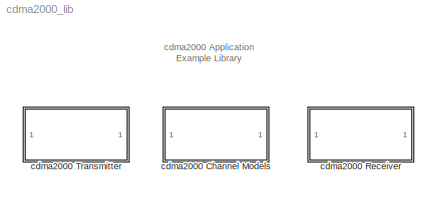
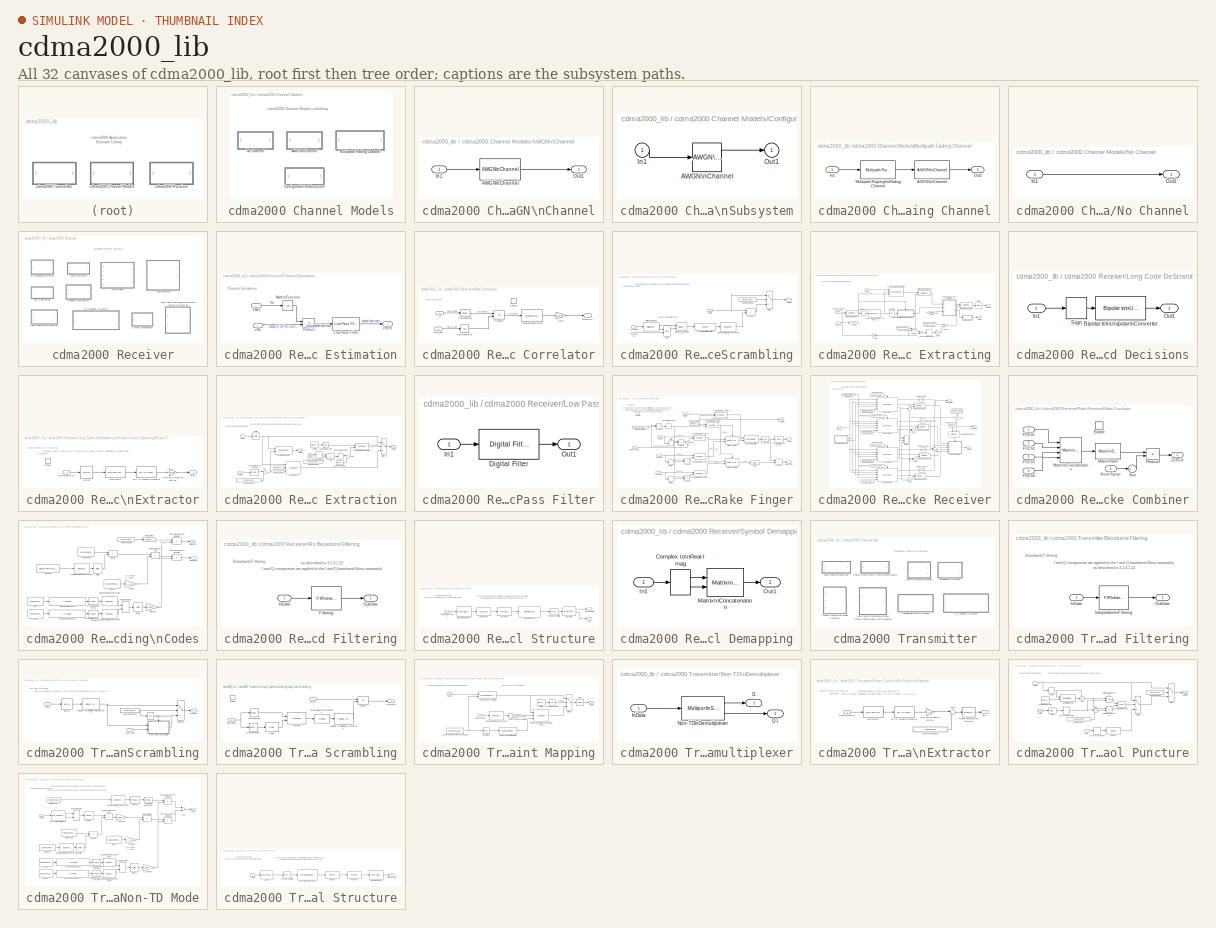
[diagram: thumbnail index - all 32 canvases of the model, root first then tree order]
MODEL cdma2000_lib
KIND library
BLOCK [SubSystem] cdma2000 Channel Models
  MaskDisplay = disp('cdma2000\\nChannel Models')
  MaskIconFrame = on
  MaskIconOpaque = on
  MaskIconRotate = none
  MaskIconUnits = autoscale
  MinAlgLoopOccurrences = off
  Ports = []
  PropExecContextAcrossSSBoundary = on
  RTWSystemCode = Auto
  TreatAsAtomicUnit = off
BLOCK [SubSystem] cdma2000 Channel Models/AWGN\nChannel
  MaskDisplay = disp('AWGN Channel')
  MaskEnableString = on
  MaskIconFrame = on
  MaskIconOpaque = on
  MaskIconRotate = none
  MaskIconUnits = autoscale
  MaskPromptString = Es/No (dB):
  MaskStyleString = edit
  MaskToolTipString = on
  MaskTunableValueString = on
  MaskType = cdma2000 Channel model: AWGN Channel
  MaskValueString = 0
  MaskVariables = EsNodB=@1;
  MaskVisibilityString = on
  MinAlgLoopOccurrences = off
  Ports = [1, 1]
  PropExecContextAcrossSSBoundary = on
  RTWSystemCode = Auto
  TreatAsAtomicUnit = off
BLOCK [Reference] cdma2000 Channel Models/AWGN\nChannel/AWGN\nChannel  REF=commchan2/AWGN\nChannel
  EbNodB = 10
  EsNodB = EsNodB
  Ports = [1, 1]
  Ps = 1
  SNRdB = 10
  SourceBlock = commchan2/AWGN\nChannel
  SourceType = AWGN Channel
  Tsym = 1/1.2288e6
  bitsPerSym = 1
  noiseMode = Signal to noise ratio  (Es/No)
  seed = 67
  variance = 1
BLOCK [Inport] cdma2000 Channel Models/AWGN\nChannel/In1
  IconDisplay = Port number
  LatchInput = off
BLOCK [Outport] cdma2000 Channel Models/AWGN\nChannel/Out1
  BusOutputAsStruct = off
  IconDisplay = Port number
BLOCK [SubSystem] cdma2000 Channel Models/Configurable\nSubsystem
  BlockChoice = AWGN Channel
  MemberBlocks = AWGN Channel,Multipath Fading Channel,No Channel
  MinAlgLoopOccurrences = off
  Ports = [1, 1]
  PropExecContextAcrossSSBoundary = on
  RTWSystemCode = Auto
  TemplateBlock = self
  TreatAsAtomicUnit = off
BLOCK [Reference] cdma2000 Channel Models/Configurable\nSubsystem/AWGN\nChannel  REF=cdma2000_lib/cdma2000 Channel Models/AWGN\nChannel  (lib defined in mdl_ef6182a08372)
  EsNodB = 0
  Ports = [1, 1]
  ShowPortLabels = on
  SourceBlock = cdma2000_lib/cdma2000 Channel Models/AWGN\nChannel
  SourceType = cdma2000 Channel model: AWGN Channel
BLOCK [Inport] cdma2000 Channel Models/Configurable\nSubsystem/In1
  IconDisplay = Port number
  LatchInput = off
BLOCK [Outport] cdma2000 Channel Models/Configurable\nSubsystem/Out1
  BusOutputAsStruct = off
  IconDisplay = Port number
BLOCK [SubSystem] cdma2000 Channel Models/Multipath Fading Channel
  MaskCallbackString = |||
  MaskDisplay = disp('Multipath Fading\\nAWGN')
  MaskEnableString = on,on,on,on
  MaskIconFrame = on
  MaskIconOpaque = on
  MaskIconRotate = none
  MaskIconUnits = autoscale
  MaskPromptString = EcN0 (in dB):|Maximum Doppler Frequency shift (in Hz):|Multipath Profile - Delay Vector (s):|Multipath Profile - Gain Vector (dB):
  MaskStyleString = edit,edit,edit,edit
  MaskTabNameString = ,,,
  MaskToolTipString = on,on,on,on
  MaskTunableValueString = on,on,on,on
  MaskType = cdma2000 Channel model: Multipath Fading Channel
  MaskValueString = 10|486|[0 260e-9 521e-9 781e-9]|[0 -3 -6 -9]
  MaskVarAliasString = ,,,
  MaskVariables = EcN0=@1;dopplerFreq=@2;delayVector=@3;gainVector=@4;
  MaskVisibilityString = on,on,on,on
  MinAlgLoopOccurrences = off
  Ports = [1, 1]
  PropExecContextAcrossSSBoundary = on
  RTWSystemCode = Auto
  TreatAsAtomicUnit = off
BLOCK [Reference] cdma2000 Channel Models/Multipath Fading Channel/AWGN\nChannel  REF=commchan2/AWGN\nChannel
  EbNodB = 10
  EsNodB = EcN0
  Ports = [1, 1]
  Ps = 1
  SNRdB = 10
  SourceBlock = commchan2/AWGN\nChannel
  SourceType = AWGN Channel
  Tsym = 1/1.2288e6
  bitsPerSym = 1
  noiseMode = Signal to noise ratio  (Es/No)
  seed = 67
  variance = 1
BLOCK [Inport] cdma2000 Channel Models/Multipath Fading Channel/In1
  IconDisplay = Port number
  LatchInput = off
BLOCK [Reference] cdma2000 Channel Models/Multipath Fading Channel/Multipath Rayleigh\nFading Channel  REF=commchan2/Multipath Rayleigh\nFading Channel
  Fd = dopplerFreq
  Ports = [1, 1]
  Seed = 73
  SourceBlock = commchan2/Multipath Rayleigh\nFading Channel
  SourceType = Multipath Rayleigh Fading Channel
  delayVec = delayVector
  gainVecdB = gainVector
  normGain = off
  simTs = 1/(1.2288e6*4)
BLOCK [Outport] cdma2000 Channel Models/Multipath Fading Channel/Out1
  BusOutputAsStruct = off
  IconDisplay = Port number
BLOCK [SubSystem] cdma2000 Channel Models/No Channel
  MaskDisplay = disp('No Channel')
  MaskIconFrame = on
  MaskIconOpaque = on
  MaskIconRotate = none
  MaskIconUnits = autoscale
  MaskType = cdma2000 Channel model: No Channel
  MinAlgLoopOccurrences = off
  Ports = [1, 1]
  PropExecContextAcrossSSBoundary = on
  RTWSystemCode = Auto
  TreatAsAtomicUnit = off
BLOCK [Inport] cdma2000 Channel Models/No Channel/In1
  IconDisplay = Port number
  LatchInput = off
BLOCK [Outport] cdma2000 Channel Models/No Channel/Out1
  BusOutputAsStruct = off
  IconDisplay = Port number
BLOCK [SubSystem] cdma2000 Receiver
  MaskDisplay = disp('cdma2000\\nReceiver')
  MaskIconFrame = on
  MaskIconOpaque = on
  MaskIconRotate = none
  MaskIconUnits = autoscale
  MaskSelfModifiable = on
  MinAlgLoopOccurrences = off
  Ports = []
  PropExecContextAcrossSSBoundary = on
  RTWSystemCode = Auto
  TreatAsAtomicUnit = off
BLOCK [SubSystem] cdma2000 Receiver/Channel Estimation
  MaskDescription = Perform Channel Estimation
  MaskEnableString = on
  MaskIconFrame = on
  MaskIconOpaque = on
  MaskIconRotate = none
  MaskIconUnits = autoscale
  MaskPromptString = Number of Filter Taps for Channel Estimation:
  MaskStyleString = edit
  MaskToolTipString = on
  MaskTunableValueString = on
  MaskType = Channel Estimation
  MaskValueString = 21
  MaskVariables = numTapsChEst=@1;
  MaskVisibilityString = on
  MinAlgLoopOccurrences = off
  Ports = [2, 1]
  PropExecContextAcrossSSBoundary = on
  RTWSystemCode = Auto
  TreatAsAtomicUnit = off
BLOCK [Reference] cdma2000 Receiver/Channel Estimation/Low Pass Filter  REF=cdma2000_lib/cdma2000 Receiver/Low Pass Filter  (lib defined in mdl_ef6182a08372)
  N = numTapsChEst-1
  Ports = [1, 1]
  SourceBlock = cdma2000_lib/cdma2000 Receiver/Low Pass Filter
  SourceType = Low Pass Filter
  Wn = 1/4
BLOCK [Math] cdma2000 Receiver/Channel Estimation/Math\nFunction
  Operator = conj
  OutputSignalType = complex
  Ports = [1, 1]
BLOCK [Product] cdma2000 Receiver/Channel Estimation/Product
  Ports = [2, 1]
  RndMeth = Floor
BLOCK [Inport] cdma2000 Receiver/Channel Estimation/cRef
  IconDisplay = Port number
  LatchInput = off
BLOCK [Inport] cdma2000 Receiver/Channel Estimation/cRx
  IconDisplay = Port number
  LatchInput = off
  Port = 2
BLOCK [Outport] cdma2000 Receiver/Channel Estimation/chEst
  BusOutputAsStruct = off
  IconDisplay = Port number
BLOCK [SubSystem] cdma2000 Receiver/Data Correlator
  MaskIconFrame = on
  MaskIconOpaque = on
  MaskIconRotate = none
  MaskIconUnits = autoscale
  MaskType = Data Correlator
  MinAlgLoopOccurrences = off
  Ports = [2, 1, 1]
  PropExecContextAcrossSSBoundary = on
  RTWSystemCode = Auto
  TreatAsAtomicUnit = on
BLOCK [Reference] cdma2000 Receiver/Data Correlator/Downsample  REF=dspsigops/Downsample
  N = overSamp
  Ports = [1, 1]
  SourceBlock = dspsigops/Downsample
  SourceType = Downsample
  fmode = Maintain input frame rate
  ic = 0
  phase = 0
  smode = Force single rate
BLOCK [EnablePort] cdma2000 Receiver/Data Correlator/Enable
  Ports = []
BLOCK [Gain] cdma2000 Receiver/Data Correlator/Gain
  Gain = 1/walshLength
BLOCK [Reference] cdma2000 Receiver/Data Correlator/Integrate\nand Dump  REF=commfilt2/Integrate\nand Dump
  Ports = [1, 1]
  SourceBlock = commfilt2/Integrate\nand Dump
  SourceType = Integrate and dump
  nodump = off
  obssamples = walshLength
  offsetsamples = 0
BLOCK [Math] cdma2000 Receiver/Data Correlator/Math\nFunction
  Operator = conj
  OutputSignalType = complex
  Ports = [1, 1]
BLOCK [Product] cdma2000 Receiver/Data Correlator/Product2
  Inputs = **
  Ports = [2, 1]
  RndMeth = Floor
BLOCK [Inport] cdma2000 Receiver/Data Correlator/cIn
  IconDisplay = Port number
  LatchInput = off
BLOCK [Outport] cdma2000 Receiver/Data Correlator/cOutBits
  BusOutputAsStruct = off
  IconDisplay = Port number
BLOCK [Inport] cdma2000 Receiver/Data Correlator/cPNseq
  IconDisplay = Port number
  LatchInput = off
  Port = 2
BLOCK [SubSystem] cdma2000 Receiver/Long Code DeScrambling\nPower Control Extracting
  MaskCallbackString = ||||||
  MaskDescription = Performs Long Code DeScrambling and Power Control Extraction for Forward Traffic Channel.
  MaskEnableString = off,off,on,on,on,on,on
  MaskHelp = Performs Long Code DeScrambling and Power Control Extraction for Forward Traffic Channel.
  MaskIconFrame = on
  MaskIconOpaque = on
  MaskIconRotate = none
  MaskIconUnits = autoscale
  MaskInitialization = %-- Initialize parameters for Long Code Scrambling, Power Control\n%-- and Signal Point Mapping\nswitch(get_param(gcb,'radConfig'))\n	case 'Radio Configuration 3'\n		Eb_PCCh = 1;\n		numPuncturedSymbols = 4;\n	% other cases\nend	\n\n%-- Transmit Diversity Mode\nswitch(TxDivMode)   \n    case 1, % Non-Transmit Diversity\n        decPattern = [47 46 45 44]+1; \n        scrBitRepetition = 1;    \n    ...<+751ch>
  MaskPromptString = Radio Configuration:|Number of Samples per Frame:|Length of frame in multiples of 20 ms (n):|Long Code Scrambling|Gated Trasmission Rate:|Transmit Diversity Mode:|Public Long Code Mask:
  MaskStyleString = popup(Radio Configuration 3),edit,popup(1|2|4),popup(On|Off),popup(Non Power Control|1|1/2|1/4),popup(Non-TD),edit
  MaskTabNameString = ,,,,,,
  MaskToolTipString = on,on,on,on,on,on,on
  MaskTunableValueString = on,on,on,on,on,on,on
  MaskType = Long Code DeScrambling
  MaskValueString = Radio Configuration 3|768|1|Off|1/4|Non-TD|[1 1 0 0 0 plcm_37]
  MaskVarAliasString = ,,,,,,
  MaskVariables = radConfig=@1;numSamp=@2;nFrameMask=@3;longCScrMask=@4;gateRateMask=@5;TxDivMode=@6;plcMask=@7;
  MaskVisibilityString = on,on,on,on,on,on,on
  MinAlgLoopOccurrences = off
  Ports = [2, 2]
  PropExecContextAcrossSSBoundary = on
  RTWSystemCode = Auto
  TreatAsAtomicUnit = off
BLOCK [Reference] cdma2000 Receiver/Long Code DeScrambling\nPower Control Extracting/Buffer  REF=dspbuff3/Buffer
  N = numSamp
  Ports = [1, 1]
  SourceBlock = dspbuff3/Buffer
  SourceType = Buffer
  V = 0
  ic = 0
BLOCK [Reference] cdma2000 Receiver/Long Code DeScrambling\nPower Control Extracting/DSP\nConstant1  REF=dspsrcs4/DSP\nConstant
  FramebasedOutput = off
  InterpretAs1D = off
  Ports = [0, 1]
  SampleMode = Discrete
  SourceBlock = dspsrcs4/DSP\nConstant
  SourceType = DSP Constant
  Ts = 20e-3/16
  Value = numSamp
  additionalParams = off
  allowOverrides = on
  continuousOutput = Sample-based
  dataType = Inherit from 'Constant value'
  discreteOutput = Sample-based
  fracBitsMode = Best precision
  framePeriod = 20e-3/16
  numFracBits = 15
  sampTime = 20e-3/16
  udDataType = sfix(16)
  wordLen = 16
BLOCK [Reference] cdma2000 Receiver/Long Code DeScrambling\nPower Control Extracting/DSP\nConstant10  REF=dspsrcs4/DSP\nConstant
  FramebasedOutput = off
  InterpretAs1D = off
  Ports = [0, 1]
  SampleMode = Discrete
  SourceBlock = dspsrcs4/DSP\nConstant
  SourceType = DSP Constant
  Ts = 64/1.2288e6
  Value = 1
  additionalParams = off
  allowOverrides = on
  continuousOutput = Sample-based
  dataType = Inherit from 'Constant value'
  discreteOutput = Sample-based
  fracBitsMode = Best precision
  framePeriod = 64/1.2288e6
  numFracBits = 15
  sampTime = 64/1.2288e6
  udDataType = sfix(16)
  wordLen = 16
BLOCK [Reference] cdma2000 Receiver/Long Code DeScrambling\nPower Control Extracting/DSP\nConstant9  REF=dspsrcs4/DSP\nConstant
  FramebasedOutput = off
  InterpretAs1D = off
  Ports = [0, 1]
  SampleMode = Discrete
  SourceBlock = dspsrcs4/DSP\nConstant
  SourceType = DSP Constant
  Ts = 64/1.2288e6
  Value = numSamp/16
  additionalParams = off
  allowOverrides = on
  continuousOutput = Sample-based
  dataType = Inherit from 'Constant value'
  discreteOutput = Sample-based
  fracBitsMode = Best precision
  framePeriod = 64/1.2288e6
  numFracBits = 15
  sampTime = 64/1.2288e6
  udDataType = sfix(16)
  wordLen = 16
BLOCK [Reference] cdma2000 Receiver/Long Code DeScrambling\nPower Control Extracting/Decimator  REF=dspsigops/Downsample
  AttributesFormatString = \\n
  N = 64/2
  Ports = [1, 1]
  SourceBlock = dspsigops/Downsample
  SourceType = Downsample
  fmode = Maintain input frame rate
  ic = 0
  phase = 0
  smode = Allow multirate
BLOCK [Inport] cdma2000 Receiver/Long Code DeScrambling\nPower Control Extracting/EnSignal
  IconDisplay = Port number
  LatchInput = off
BLOCK [From] cdma2000 Receiver/Long Code DeScrambling\nPower Control Extracting/From
  CloseFcn = tagdialog Close
  DialogController = Simulink.DDGSource
  GotoTag = enDelay
BLOCK [Gain] cdma2000 Receiver/Long Code DeScrambling\nPower Control Extracting/Gain
  Gain = 2*scrBitRepetition
BLOCK [Gain] cdma2000 Receiver/Long Code DeScrambling\nPower Control Extracting/Gain1
  Gain = 2
BLOCK [Goto] cdma2000 Receiver/Long Code DeScrambling\nPower Control Extracting/Goto
  DialogController = Simulink.DDGSource
  GotoTag = enDelay
  TagVisibility = local
BLOCK [SubSystem] cdma2000 Receiver/Long Code DeScrambling\nPower Control Extracting/Hard Decisions
  MaskDisplay = disp('Hard\\nDecisions');
  MaskIconFrame = on
  MaskIconOpaque = on
  MaskIconRotate = none
  MaskIconUnits = autoscale
  MinAlgLoopOccurrences = off
  Ports = [1, 1]
  PropExecContextAcrossSSBoundary = on
  RTWSystemCode = Auto
  TreatAsAtomicUnit = off
BLOCK [Reference] cdma2000 Receiver/Long Code DeScrambling\nPower Control Extracting/Hard Decisions/Bipolar to\nUnipolar\nConverter  REF=commutil2/Bipolar to\nUnipolar\nConverter
  M = 2
  Ports = [1, 1]
  SourceBlock = commutil2/Bipolar to\nUnipolar\nConverter
  SourceType = Bipolar to Unipolar Converter
  polarity = Negative
BLOCK [Inport] cdma2000 Receiver/Long Code DeScrambling\nPower Control Extracting/Hard Decisions/In1
  IconDisplay = Port number
  LatchInput = off
BLOCK [Outport] cdma2000 Receiver/Long Code DeScrambling\nPower Control Extracting/Hard Decisions/Out1
  BusOutputAsStruct = off
  IconDisplay = Port number
BLOCK [Signum] cdma2000 Receiver/Long Code DeScrambling\nPower Control Extracting/Hard Decisions/Sign
BLOCK [HitCross] cdma2000 Receiver/Long Code DeScrambling\nPower Control Extracting/Hit \nCrossing
  HitCrossingDirection = rising
  HitCrossingOffset = 0.5
  Ports = [1, 1]
  ZeroCross = off
BLOCK [Inport] cdma2000 Receiver/Long Code DeScrambling\nPower Control Extracting/InData
  IconDisplay = Port number
  LatchInput = off
  Port = 2
BLOCK [Reference] cdma2000 Receiver/Long Code DeScrambling\nPower Control Extracting/Long Code Generator\n1.2288Mcps2  REF=commseqgen2/PN Sequence\nGenerator
  Ports = [1, 1]
  SourceBlock = commseqgen2/PN Sequence\nGenerator
  SourceType = PN Sequence Generator
  Ts = 1/1.2288e6
  frameBased = on
  ini_sta = [1]
  poly = [42 35 33 31 27 26 25 22 21 19 18 17 16 10 7 6 5 3 2 1 0]
  reset = on
  sampPerFrame = 64*scrBitRepetition
  shift = plcMask
BLOCK [Reference] cdma2000 Receiver/Long Code DeScrambling\nPower Control Extracting/Long Code\nDeScrambling  REF=cdma2000_lib/cdma2000 Receiver/Long Code\nDeScrambling  (lib defined in mdl_ef6182a08372)
  DataTypeOverride = UseLocalSettings
  MinMaxOverflowLogging = UseLocalSettings
  Permissions = ReadWrite
  Ports = [3, 1]
  RTWFcnNameOpts = Auto
  RTWFileNameOpts = Auto
  RTWSystemCode = Auto
  ShowPortLabels = on
  SimViewingDevice = off
  SourceBlock = cdma2000_lib/cdma2000 Receiver/Long Code\nDeScrambling
  SourceType = SubSystem
  TreatAsAtomicUnit = off
BLOCK [Outport] cdma2000 Receiver/Long Code DeScrambling\nPower Control Extracting/OutData
  BusOutputAsStruct = off
  IconDisplay = Port number
BLOCK [Outport] cdma2000 Receiver/Long Code DeScrambling\nPower Control Extracting/PCBits
  BusOutputAsStruct = off
  IconDisplay = Port number
  Port = 2
BLOCK [SubSystem] cdma2000 Receiver/Long Code DeScrambling\nPower Control Extracting/Power Control\nBit Position\nExtractor
  MinAlgLoopOccurrences = off
  Ports = [1, 1, 1]
  PropExecContextAcrossSSBoundary = on
  RTWSystemCode = Auto
  TreatAsAtomicUnit = off
BLOCK [Reference] cdma2000 Receiver/Long Code DeScrambling\nPower Control Extracting/Power Control\nBit Position\nExtractor/Bit to Integer\nConverter  REF=commutil2/Bit to Integer\nConverter
  Ports = [1, 1]
  SourceBlock = commutil2/Bit to Integer\nConverter
  SourceType = Bit to Integer Converter
  nbits = length(decPattern)
BLOCK [Outport] cdma2000 Receiver/Long Code DeScrambling\nPower Control Extracting/Power Control\nBit Position\nExtractor/Bits
  BusOutputAsStruct = off
  IconDisplay = Port number
BLOCK [Reference] cdma2000 Receiver/Long Code DeScrambling\nPower Control Extracting/Power Control\nBit Position\nExtractor/Buffer  REF=dspbuff3/Buffer
  AttributesFormatString = \\n
  N = numSymbPCGroup
  Ports = [1, 1]
  SourceBlock = dspbuff3/Buffer
  SourceType = Buffer
  V = 0
  ic = 0
BLOCK [Inport] cdma2000 Receiver/Long Code DeScrambling\nPower Control Extracting/Power Control\nBit Position\nExtractor/Decimated Bits
  IconDisplay = Port number
  LatchInput = off
BLOCK [Reference] cdma2000 Receiver/Long Code DeScrambling\nPower Control Extracting/Power Control\nBit Position\nExtractor/Decimator1  REF=dspindex/Multiport\nSelector
  AttributesFormatString = \\n
  Ports = [1, 1]
  SourceBlock = dspindex/Multiport\nSelector
  SourceType = Multiport Selector
  idxCellArray = {decPattern}
  idxErrMode = Clip Index
  rowsOrCols = Rows
BLOCK [EnablePort] cdma2000 Receiver/Long Code DeScrambling\nPower Control Extracting/Power Control\nBit Position\nExtractor/Enable
  Ports = []
BLOCK [Gain] cdma2000 Receiver/Long Code DeScrambling\nPower Control Extracting/Power Control\nBit Position\nExtractor/Starting Symbol\nPosition
  Gain = 2*scrBitRepetition
BLOCK [SubSystem] cdma2000 Receiver/Long Code DeScrambling\nPower Control Extracting/Power Control\nSymbol Extraction
  MaskIconFrame = on
  MaskIconOpaque = on
  MaskIconRotate = none
  MaskIconUnits = autoscale
  MinAlgLoopOccurrences = off
  Ports = [3, 2]
  PropExecContextAcrossSSBoundary = on
  RTWSystemCode = Auto
  TreatAsAtomicUnit = off
BLOCK [Assignment] cdma2000 Receiver/Long Code DeScrambling\nPower Control Extracting/Power Control\nSymbol Extraction/Assignment
  ElementSrc = External
  Ports = [3, 1]
BLOCK [Reference] cdma2000 Receiver/Long Code DeScrambling\nPower Control Extracting/Power Control\nSymbol Extraction/Buffer  REF=dspbuff3/Buffer
  N = numSamp/16
  Ports = [1, 1]
  SourceBlock = dspbuff3/Buffer
  SourceType = Buffer
  V = 0
  ic = 0
BLOCK [Reference] cdma2000 Receiver/Long Code DeScrambling\nPower Control Extracting/Power Control\nSymbol Extraction/DSP\nConstant1  REF=dspsrcs4/DSP\nConstant
  FramebasedOutput = off
  InterpretAs1D = off
  Ports = [0, 1]
  SampleMode = Discrete
  SourceBlock = dspsrcs4/DSP\nConstant
  SourceType = DSP Constant
  Ts = 20e-3/16
  Value = numSamp/(2*16)
  additionalParams = off
  allowOverrides = on
  continuousOutput = Sample-based
  dataType = Inherit from 'Constant value'
  discreteOutput = Sample-based
  fracBitsMode = Best precision
  framePeriod = 20e-3/16
  numFracBits = 15
  sampTime = 20e-3/16
  udDataType = sfix(16)
  wordLen = 16
BLOCK [Reference] cdma2000 Receiver/Long Code DeScrambling\nPower Control Extracting/Power Control\nSymbol Extraction/DSP\nConstant2  REF=dspsrcs4/DSP\nConstant
  FramebasedOutput = off
  InterpretAs1D = off
  Ports = [0, 1]
  SampleMode = Discrete
  SourceBlock = dspsrcs4/DSP\nConstant
  SourceType = DSP Constant
  Ts = 1.25e-3
  Value = 0
  additionalParams = off
  allowOverrides = on
  continuousOutput = Sample-based
  dataType = Inherit from 'Constant value'
  discreteOutput = Sample-based
  fracBitsMode = Best precision
  framePeriod = 1.25e-3
  numFracBits = 15
  sampTime = 1.25e-3
  udDataType = sfix(16)
  wordLen = 16
BLOCK [Reference] cdma2000 Receiver/Long Code DeScrambling\nPower Control Extracting/Power Control\nSymbol Extraction/DSP\nConstant3  REF=dspsrcs4/DSP\nConstant
  FramebasedOutput = off
  InterpretAs1D = off
  Ports = [0, 1]
  SampleMode = Discrete
  SourceBlock = dspsrcs4/DSP\nConstant
  SourceType = DSP Constant
  Ts = 1.25e-3
  Value = [1:numPuncturedSymbols]
  additionalParams = off
  allowOverrides = on
  continuousOutput = Sample-based
  dataType = Inherit from 'Constant value'
  discreteOutput = Sample-based
  fracBitsMode = Best precision
  framePeriod = 1.25e-3
  numFracBits = 15
  sampTime = 1.25e-3
  udDataType = sfix(16)
  wordLen = 16
BLOCK [Reference] cdma2000 Receiver/Long Code DeScrambling\nPower Control Extracting/Power Control\nSymbol Extraction/DSP\nConstant4  REF=dspsrcs4/DSP\nConstant
  FramebasedOutput = off
  InterpretAs1D = off
  Ports = [0, 1]
  SampleMode = Discrete
  SourceBlock = dspsrcs4/DSP\nConstant
  SourceType = DSP Constant
  Ts = 1.25e-3
  Value = 1
  additionalParams = off
  allowOverrides = on
  continuousOutput = Sample-based
  dataType = Inherit from 'Constant value'
  discreteOutput = Sample-based
  fracBitsMode = Best precision
  framePeriod = 1.25e-3
  numFracBits = 15
  sampTime = 1.25e-3
  udDataType = sfix(16)
  wordLen = 16
BLOCK [Inport] cdma2000 Receiver/Long Code DeScrambling\nPower Control Extracting/Power Control\nSymbol Extraction/EnDelay
  IconDisplay = Port number
  LatchInput = off
  Port = 3
BLOCK [Reference] cdma2000 Receiver/Long Code DeScrambling\nPower Control Extracting/Power Control\nSymbol Extraction/Frame Status\nConversion  REF=dspsigattribs/Frame Status\nConversion
  Ports = [1, 1]
  SourceBlock = dspsigattribs/Frame Status\nConversion
  SourceType = Frame Status Conversion
  growRefPort = off
  outframe = Sample-based
BLOCK [DiscretePulseGenerator] cdma2000 Receiver/Long Code DeScrambling\nPower Control Extracting/Power Control\nSymbol Extraction/Gating
  Amplitude = powerControlOff
  Period = 1/gateRate
  PhaseDelay = PCGroupInit
  Ports = [0, 1]
  SampleTime = 20e-3/16
BLOCK [Inport] cdma2000 Receiver/Long Code DeScrambling\nPower Control Extracting/Power Control\nSymbol Extraction/InData
  IconDisplay = Port number
  LatchInput = off
BLOCK [Logic] cdma2000 Receiver/Long Code DeScrambling\nPower Control Extracting/Power Control\nSymbol Extraction/Logical\nOperator
  AllPortsSameDT = off
  Operator = NOT
  Ports = [1, 1]
BLOCK [Outport] cdma2000 Receiver/Long Code DeScrambling\nPower Control Extracting/Power Control\nSymbol Extraction/OutData
  BusOutputAsStruct = off
  IconDisplay = Port number
BLOCK [Outport] cdma2000 Receiver/Long Code DeScrambling\nPower Control Extracting/Power Control\nSymbol Extraction/PCBits
  BusOutputAsStruct = off
  IconDisplay = Port number
  Port = 2
BLOCK [Inport] cdma2000 Receiver/Long Code DeScrambling\nPower Control Extracting/Power Control\nSymbol Extraction/Position
  IconDisplay = Port number
  LatchInput = off
  Port = 2
BLOCK [Product] cdma2000 Receiver/Long Code DeScrambling\nPower Control Extracting/Power Control\nSymbol Extraction/Product
  InputSameDT = off
  Inputs = */
  Ports = [2, 1]
  RndMeth = Floor
BLOCK [Rounding] cdma2000 Receiver/Long Code DeScrambling\nPower Control Extracting/Power Control\nSymbol Extraction/Rounding\nFunction
  Operator = ceil
BLOCK [Sum] cdma2000 Receiver/Long Code DeScrambling\nPower Control Extracting/Power Control\nSymbol Extraction/Sum
  IconShape = round
  InputSameDT = off
  Inputs = |++
  OutDataTypeMode = Inherit via internal rule
  Ports = [2, 1]
BLOCK [Sum] cdma2000 Receiver/Long Code DeScrambling\nPower Control Extracting/Power Control\nSymbol Extraction/Sum1
  IconShape = round
  InputSameDT = off
  Inputs = |++
  OutDataTypeMode = Inherit via internal rule
  Ports = [2, 1]
BLOCK [Switch] cdma2000 Receiver/Long Code DeScrambling\nPower Control Extracting/Power Control\nSymbol Extraction/Switch1
  Criteria = u2 > Threshold
  InputSameDT = off
  Threshold = 0.5
BLOCK [Reference] cdma2000 Receiver/Long Code DeScrambling\nPower Control Extracting/Power Control\nSymbol Extraction/Variable\nInteger Delay3  REF=dspsigops/Variable\nInteger Delay
  Ports = [2, 1]
  SourceBlock = dspsigops/Variable\nInteger Delay
  SourceType = Variable Integer Delay
  dmax = numSamp+10
  ic = 1
BLOCK [Reference] cdma2000 Receiver/Long Code DeScrambling\nPower Control Extracting/Power Control\nSymbol Extraction/Variable\nSelector  REF=dspindex/Variable\nSelector
  Elements = [1 3]
  IdxMode = Variable
  Ports = [2, 1]
  SourceBlock = dspindex/Variable\nSelector
  SourceType = Variable Selector
  ZerOneIdxMode = One-based
  errmode = Clip Index
  rowsOrCols = Rows
BLOCK [ZeroOrderHold] cdma2000 Receiver/Long Code DeScrambling\nPower Control Extracting/Power Control\nSymbol Extraction/Zero-Order\nHold1
  SampleTime = 20e-3/16
BLOCK [Sum] cdma2000 Receiver/Long Code DeScrambling\nPower Control Extracting/Sum1
  InputSameDT = off
  OutDataTypeMode = Inherit via internal rule
  Ports = [2, 1]
BLOCK [Sum] cdma2000 Receiver/Long Code DeScrambling\nPower Control Extracting/Sum2
  InputSameDT = off
  Inputs = +-
  OutDataTypeMode = Inherit via internal rule
  Ports = [2, 1]
BLOCK [Sum] cdma2000 Receiver/Long Code DeScrambling\nPower Control Extracting/Sum5
  InputSameDT = off
  Inputs = +-
  OutDataTypeMode = Inherit via internal rule
  Ports = [2, 1]
BLOCK [Reference] cdma2000 Receiver/Long Code DeScrambling\nPower Control Extracting/Variable\nInteger Delay1  REF=dspsigops/Variable\nInteger Delay
  Ports = [2, 1]
  SourceBlock = dspsigops/Variable\nInteger Delay
  SourceType = Variable Integer Delay
  dmax = numSamp+10
  ic = 0
BLOCK [Reference] cdma2000 Receiver/Long Code DeScrambling\nPower Control Extracting/Variable\nInteger Delay3  REF=dspsigops/Variable\nInteger Delay
  Ports = [2, 1]
  SourceBlock = dspsigops/Variable\nInteger Delay
  SourceType = Variable Integer Delay
  dmax = numSamp+10
  ic = 0
BLOCK [Reference] cdma2000 Receiver/Long Code DeScrambling\nPower Control Extracting/Variable\nInteger Delay4  REF=dspsigops/Variable\nInteger Delay
  Ports = [2, 1]
  SourceBlock = dspsigops/Variable\nInteger Delay
  SourceType = Variable Integer Delay
  dmax = 100
  ic = 0
BLOCK [ZeroOrderHold] cdma2000 Receiver/Long Code DeScrambling\nPower Control Extracting/Zero-Order\nHold1
  SampleTime = 20e-3/16
BLOCK [SubSystem] cdma2000 Receiver/Long Code\nDeScrambling
  MinAlgLoopOccurrences = off
  Ports = [3, 1]
  PropExecContextAcrossSSBoundary = on
  RTWSystemCode = Auto
  TreatAsAtomicUnit = off
BLOCK [Reference] cdma2000 Receiver/Long Code\nDeScrambling/DSP\nConstant1  REF=dspsrcs4/DSP\nConstant
  AttributesFormatString = <path>
  FramebasedOutput = off
  InterpretAs1D = off
  Ports = [0, 1]
  SampleMode = Discrete
  ShowPortLabels = on
  SourceBlock = dspsrcs4/DSP\nConstant
  SourceType = DSP Constant
  Ts = symbolTime*scrBitRepetition
  Value = longCodeScrOff
  additionalParams = off
  allowOverrides = on
  continuousOutput = Sample-based
  dataType = Inherit from 'Constant value'
  discreteOutput = Sample-based
  fracBitsMode = Best precision
  framePeriod = symbolTime*scrBitRepetition
  numFracBits = 15
  sampTime = symbolTime*scrBitRepetition
  udDataType = sfix(16)
  wordLen = 16
BLOCK [Reference] cdma2000 Receiver/Long Code\nDeScrambling/Delay  REF=dspsigops/Delay
  Ports = [2, 1]
  SourceBlock = dspsigops/Delay
  SourceType = Delay
  delay = 1
  dif_ic_for_ch = off
  dif_ic_for_dly = off
  dly_unit = Samples
  ic = 0
  ic_detail = on
  reset_popup = Rising edge
BLOCK [Inport] cdma2000 Receiver/Long Code\nDeScrambling/En
  IconDisplay = Port number
  LatchInput = off
  Port = 3
BLOCK [Inport] cdma2000 Receiver/Long Code\nDeScrambling/InData
  IconDisplay = Port number
  LatchInput = off
BLOCK [Inport] cdma2000 Receiver/Long Code\nDeScrambling/Long Code
  IconDisplay = Port number
  LatchInput = off
  Port = 2
BLOCK [Reference] cdma2000 Receiver/Long Code\nDeScrambling/Matrix\nConcatenation  REF=simulink/Math\nOperations/Matrix\nConcatenation
  Ports = [2, 1]
  SourceBlock = simulink/Math\nOperations/Matrix\nConcatenation
  SourceType = Matrix Concatenation
  catMethod = Vertical
  numInports = 2
BLOCK [Reference] cdma2000 Receiver/Long Code\nDeScrambling/Multiport\nSelector  REF=dspindex/Multiport\nSelector
  AttributesFormatString = \\n
  Ports = [1, 4]
  SourceBlock = dspindex/Multiport\nSelector
  SourceType = Multiport Selector
  idxCellArray = { 1,64*scrBitRepetition}
  idxErrMode = Clip Index
  rowsOrCols = Rows
BLOCK [Outport] cdma2000 Receiver/Long Code\nDeScrambling/OutData
  BusOutputAsStruct = off
  IconDisplay = Port number
BLOCK [Product] cdma2000 Receiver/Long Code\nDeScrambling/Product
  InputSameDT = off
  Ports = [2, 1]
  RndMeth = Floor
BLOCK [Reference] cdma2000 Receiver/Long Code\nDeScrambling/Scrambling Bit\nRepetition  REF=dspsigops/Repeat
  N = scrBitRepetition
  Ports = [1, 1]
  SourceBlock = dspsigops/Repeat
  SourceType = Repeat
  ic = 0
  mode = Maintain input frame rate
BLOCK [Switch] cdma2000 Receiver/Long Code\nDeScrambling/Switch1
  Criteria = u2 > Threshold
  InputSameDT = off
  Threshold = 0.5
BLOCK [Reference] cdma2000 Receiver/Long Code\nDeScrambling/Unipolar to\nBipolar\nConverter1  REF=commutil2/Unipolar to\nBipolar\nConverter
  M = 2
  Ports = [1, 1]
  ShowPortLabels = on
  SourceBlock = commutil2/Unipolar to\nBipolar\nConverter
  SourceType = Unipolar to Bipolar Converter
  polarity = Negative
BLOCK [SubSystem] cdma2000 Receiver/Low Pass Filter
  MaskCallbackString = |
  MaskDisplay = plot( 1:prod( size( h)), h);
  MaskEnableString = on,on
  MaskIconFrame = on
  MaskIconOpaque = on
  MaskIconRotate = none
  MaskIconUnits = autoscale
  MaskInitialization = h=fir1(N,Wn,kaiser(N+1,4))';
  MaskPromptString = Order of the Filter:|Cut-off Frequency:
  MaskStyleString = edit,edit
  MaskTabNameString = ,
  MaskToolTipString = on,on
  MaskTunableValueString = on,on
  MaskType = Low Pass Filter
  MaskValueString = 21|1/4
  MaskVarAliasString = ,
  MaskVariables = N=@1;Wn=@2;
  MaskVisibilityString = on,on
  MinAlgLoopOccurrences = off
  Ports = [1, 1]
  PropExecContextAcrossSSBoundary = on
  RTWSystemCode = Auto
  TreatAsAtomicUnit = off
BLOCK [Reference] cdma2000 Receiver/Low Pass Filter/Digital Filter  REF=dsparch4/Digital Filter
  AllPoleFiltStruct = Direct form
  BiQuadCoeffs = [1 0.3 0.4 1 0.1 0.2]
  CoeffSource = Specify via dialog
  DenCoeffs = [1 0.1]
  FIRFiltStruct = Direct form
  FiltPerSampPopup = One filter per frame
  IC = 0
  ICden = 0
  ICnum = 0
  IIRFiltStruct = Direct form II transposed
  LatticeCoeffs = [0.2 0.4]
  NumCoeffs = h
  Ports = [1, 1]
  SourceBlock = dsparch4/Digital Filter
  SourceType = Digital Filter
  TypePopup = FIR (all zeros)
  accumFracLength = 30
  accumMode = Same as product output
  accumWordLength = 32
  additionalParams = off
  allowOverrides = on
  denIgnore = on
  firstCoeffFracLength = 15
  firstCoeffMode = Same as input
  firstCoeffWordLength = 16
  memoryFracLength = 15
  memoryMode = Same as input
  memoryWordLength = 16
  outputFracLength = 15
  outputMode = Same as input
  outputWordLength = 16
  overflowMode = off
  prodOutputFracLength = 30
  prodOutputMode = Same as input
  prodOutputWordLength = 32
  roundingMode = Floor
  secondCoeffFracLength = 15
  secondCoeffMode = Same as numerator
  secondCoeffWordLength = 16
  showAcc = off
  showCoeff = off
  showMem = off
  showMpy = off
  showOut = off
  thirdCoeffFracLength = 15
  thirdCoeffMode = Same as input
  thirdCoeffWordLength = 16
BLOCK [Inport] cdma2000 Receiver/Low Pass Filter/In1
  IconDisplay = Port number
  LatchInput = off
BLOCK [Outport] cdma2000 Receiver/Low Pass Filter/Out1
  BusOutputAsStruct = off
  IconDisplay = Port number
BLOCK [SubSystem] cdma2000 Receiver/Rake Finger
  MaskCallbackString = ||
  MaskDescription = Each finger downsamples and decorrelates pilot bits and data using the corresponding sequence.
  MaskEnableString = off,off,off
  MaskHelp = Each finger downsamples and decorrelates pilot bits and data using the corresponding sequence.
  MaskIconFrame = on
  MaskIconOpaque = on
  MaskIconRotate = none
  MaskIconUnits = autoscale
  MaskInitialization = % Setting Sampling Time\nst = walshLength/chipRate;
  MaskPromptString = Forward Traffic Channel Walsh Length:|Oversampling Factor|Chip Rate
  MaskStyleString = edit,edit,edit
  MaskTabNameString = ,,
  MaskToolTipString = on,on,on
  MaskTunableValueString = on,on,on
  MaskType = Rake Finger
  MaskValueString = 64|4|1.2288e6
  MaskVarAliasString = ,,
  MaskVariables = walshLength=@1;overSamp=@2;chipRate=@3;
  MaskVisibilityString = on,on,on
  MinAlgLoopOccurrences = off
  Ports = [5, 3, 1]
  PropExecContextAcrossSSBoundary = on
  RTWSystemCode = Auto
  TreatAsAtomicUnit = on
BLOCK [Reference] cdma2000 Receiver/Rake Finger/Channel Estimation  REF=cdma2000_lib/cdma2000 Receiver/Channel Estimation  (lib defined in mdl_ef6182a08372)
  Ports = [2, 1]
  ShowPortLabels = on
  SourceBlock = cdma2000_lib/cdma2000 Receiver/Channel Estimation
  SourceType = Channel Estimation
  numTapsChEst = numTapsChEst
BLOCK [Reference] cdma2000 Receiver/Rake Finger/DSP\nConstant1  REF=dspsrcs4/DSP\nConstant
  FramebasedOutput = off
  InterpretAs1D = off
  Ports = [0, 1]
  SampleMode = Discrete
  ShowPortLabels = on
  SourceBlock = dspsrcs4/DSP\nConstant
  SourceType = DSP Constant
  Ts = st
  Value = 1
  additionalParams = off
  allowOverrides = on
  continuousOutput = Sample-based
  dataType = Inherit from 'Constant value'
  discreteOutput = Sample-based
  fracBitsMode = Best precision
  framePeriod = st
  numFracBits = 15
  sampTime = st
  udDataType = sfix(16)
  wordLen = 16
BLOCK [Reference] cdma2000 Receiver/Rake Finger/DSP\nConstant2  REF=dspsrcs4/DSP\nConstant
  FramebasedOutput = off
  InterpretAs1D = off
  Ports = [0, 1]
  SampleMode = Discrete
  ShowPortLabels = on
  SourceBlock = dspsrcs4/DSP\nConstant
  SourceType = DSP Constant
  Ts = st
  Value = overSampling*walshLength
  additionalParams = off
  allowOverrides = on
  continuousOutput = Sample-based
  dataType = Inherit from 'Constant value'
  discreteOutput = Sample-based
  fracBitsMode = Best precision
  framePeriod = st
  numFracBits = 15
  sampTime = st
  udDataType = sfix(16)
  wordLen = 16
BLOCK [Reference] cdma2000 Receiver/Rake Finger/Data Correlator  REF=cdma2000_lib/cdma2000 Receiver/Data Correlator  (lib defined in mdl_ef6182a08372)
  Ports = [2, 1, 1]
  ShowPortLabels = on
  SourceBlock = cdma2000_lib/cdma2000 Receiver/Data Correlator
  SourceType = Data Correlator
BLOCK [Reference] cdma2000 Receiver/Rake Finger/Delay  REF=dspsigops/Delay
  Ports = [1, 1]
  SourceBlock = dspsigops/Delay
  SourceType = Delay
  delay = ((numTapsChEst-1)/2)
  dif_ic_for_ch = off
  dif_ic_for_dly = off
  dly_unit = Samples
  ic = 0
  ic_detail = off
  reset_popup = None
BLOCK [EnablePort] cdma2000 Receiver/Rake Finger/Enable
  Ports = []
BLOCK [Inport] cdma2000 Receiver/Rake Finger/Fng Ph (Chips)
  IconDisplay = Port number
  LatchInput = off
  Port = 5
BLOCK [Reference] cdma2000 Receiver/Rake Finger/Frame Status\nConversion  REF=dspsigattribs/Frame Status\nConversion
  Ports = [1, 1]
  ShowPortLabels = off
  SourceBlock = dspsigattribs/Frame Status\nConversion
  SourceType = Frame Status Conversion
  growRefPort = off
  outframe = Frame-based
BLOCK [Reference] cdma2000 Receiver/Rake Finger/Pilot Correlator  REF=cdma2000_lib/cdma2000 Receiver/Data Correlator  (lib defined in mdl_ef6182a08372)
  Ports = [2, 1, 1]
  ShowPortLabels = on
  SourceBlock = cdma2000_lib/cdma2000 Receiver/Data Correlator
  SourceType = Data Correlator
BLOCK [Inport] cdma2000 Receiver/Rake Finger/PilotRef
  IconDisplay = Port number
  LatchInput = off
  Port = 4
BLOCK [Product] cdma2000 Receiver/Rake Finger/Product
  Ports = [2, 1]
  RndMeth = Floor
BLOCK [Product] cdma2000 Receiver/Rake Finger/Product1
  Ports = [2, 1]
  RndMeth = Floor
BLOCK [Product] cdma2000 Receiver/Rake Finger/Product2
  Ports = [2, 1]
  RndMeth = Floor
BLOCK [Product] cdma2000 Receiver/Rake Finger/Product3
  Ports = [2, 1]
  RndMeth = Floor
BLOCK [Product] cdma2000 Receiver/Rake Finger/Product4
  Inputs = */
  Ports = [2, 1]
  RndMeth = Floor
BLOCK [Rounding] cdma2000 Receiver/Rake Finger/Rounding\nFunction
  Operator = ceil
BLOCK [Sum] cdma2000 Receiver/Rake Finger/Sum
  IconShape = round
  Inputs = |+-
  Ports = [2, 1]
BLOCK [Reference] cdma2000 Receiver/Rake Finger/Transpose  REF=dspmtrx3/Transpose
  Hermitian = on
  Ports = [1, 1]
  SourceBlock = dspmtrx3/Transpose
  SourceType = Transpose
  overflowFlag = on
BLOCK [Reference] cdma2000 Receiver/Rake Finger/Variable\nInteger Delay  REF=dspsigops/Variable\nInteger Delay
  Ports = [2, 1]
  SourceBlock = dspsigops/Variable\nInteger Delay
  SourceType = Variable Integer Delay
  dmax = 100
  ic = 0
BLOCK [Reference] cdma2000 Receiver/Rake Finger/Variable\nInteger Delay1  REF=dspsigops/Variable\nInteger Delay
  Ports = [2, 1]
  SourceBlock = dspsigops/Variable\nInteger Delay
  SourceType = Variable Integer Delay
  dmax = 20*walshLength*overSampling
  ic = 0
BLOCK [Reference] cdma2000 Receiver/Rake Finger/Variable\nInteger Delay2  REF=dspsigops/Variable\nInteger Delay
  Ports = [2, 1]
  SourceBlock = dspsigops/Variable\nInteger Delay
  SourceType = Variable Integer Delay
  dmax = 20*walshLength*overSampling
  ic = 0
BLOCK [Reference] cdma2000 Receiver/Rake Finger/Variable\nInteger Delay3  REF=dspsigops/Variable\nInteger Delay
  Ports = [2, 1]
  SourceBlock = dspsigops/Variable\nInteger Delay
  SourceType = Variable Integer Delay
  dmax = 20*walshLength*overSampling
  ic = 0
BLOCK [Reference] cdma2000 Receiver/Rake Finger/Variable\nInteger Delay4  REF=dspsigops/Variable\nInteger Delay
  Ports = [2, 1]
  SourceBlock = dspsigops/Variable\nInteger Delay
  SourceType = Variable Integer Delay
  dmax = 20
  ic = 0
BLOCK [Width] cdma2000 Receiver/Rake Finger/Width
BLOCK [Width] cdma2000 Receiver/Rake Finger/Width1
BLOCK [Width] cdma2000 Receiver/Rake Finger/Width2
BLOCK [Outport] cdma2000 Receiver/Rake Finger/cData_Out
  BusOutputAsStruct = off
  IconDisplay = Port number
  Port = 2
BLOCK [Inport] cdma2000 Receiver/Rake Finger/cInData
  IconDisplay = Port number
  LatchInput = off
BLOCK [Inport] cdma2000 Receiver/Rake Finger/cPN_Data
  IconDisplay = Port number
  LatchInput = off
  Port = 3
BLOCK [Inport] cdma2000 Receiver/Rake Finger/cPN_Pilot
  IconDisplay = Port number
  LatchInput = off
  Port = 2
BLOCK [Outport] cdma2000 Receiver/Rake Finger/cchEst
  BusOutputAsStruct = off
  IconDisplay = Port number
BLOCK [Outport] cdma2000 Receiver/Rake Finger/symDelay
  BusOutputAsStruct = off
  IconDisplay = Port number
  Port = 3
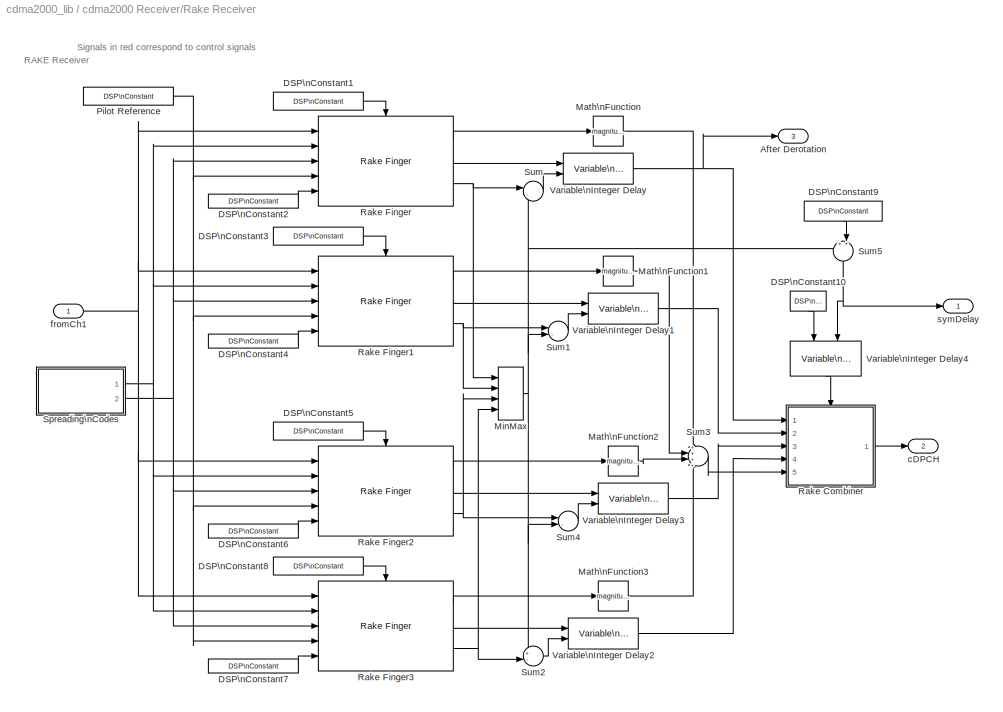
BLOCK [SubSystem] cdma2000 Receiver/Rake Receiver
  MaskCallbackString = ||||||||
  MaskDescription = Rake receiver is made of 4 different fingers. Each finger downsamples and decorrelates pilot bits and data using the corresponding sequence. \n\nPilot bits are then sent to the channel estimator whose output is then used to derotate the received data signal. The demodulated data processed by each rake finger is finally coherently combined.
  MaskEnableString = on,on,on,on,on,off,off,on,on
  MaskHelp = <p>Rake receiver is made of 4 different fingers. Each finger downsamples and decorrelates pilot bits and data using the corresponding sequence. </p>\n\n<p>Pilot bits are then sent to the channel estimator whose output is then used to derotate the received data signal. The demodulated data processed by each rake finger is finally coherently combined.</p>
  MaskIconFrame = on
  MaskIconOpaque = on
  MaskIconRotate = none
  MaskIconUnits = autoscale
  MaskInitialization = %-- Sampling Time (corresponds to SF=64)\nst =  walshLength/1.2288e6;\n\n% Setting Parameters\nnumTapsRRC = numTapsRRC - (mod(numTapsRRC,2));\nrxTicksDelay = numTapsRRC + fingerPhases;\n\n%-- Quasi-orthogonal Function mask\nqof_sign(1,:) = zeros(1,256);\nqof_sign(2,:) = reshape(de2bi([hex2dec(['7228d7724eebebb1eb4eb1ebd78d8d28278282d81b41be1b411b1bbe7dd8277d']')'],'right-msb')',1,256);\nqof_sign(3...<+317ch>
  MaskPromptString = Forward Traffic Channel Walsh Length:|Forward Traffic Channel spreading code index:|PN Sequence Offset (0..512):|Quasi-orthogonal function index for F-DTCH:|Number of Filter Taps for Channel Estimation:|Number of Filter Taps for RRC filters:|Oversampling Factor:|Finger Enables:|Finger Phases (in units of Ticks):
  MaskSelfModifiable = on
  MaskStyleString = edit,edit,edit,popup(0|1|2|3),edit,edit,edit,edit,edit
  MaskTabNameString = ,,,,,,,,
  MaskToolTipString = on,on,on,on,on,on,on,on,on
  MaskTunableValueString = on,on,on,on,on,on,on,on,on
  MaskType = Rake Receiver
  MaskValueString = 64|63|0|0|11|48|4|[1 0 0 0]|[0 0 0 0]
  MaskVarAliasString = ,,,,,,,,
  MaskVariables = walshLength=@1;trChCode=@2;pnOffset=@3;qof_idx=@4;numTapsChEst=@5;numTapsRRC=@6;overSampling=@7;fingerEnables=@8;fingerPhases=@9;
  MaskVisibilityString = on,on,on,on,on,on,on,on,on
  MinAlgLoopOccurrences = off
  Ports = [1, 3]
  PropExecContextAcrossSSBoundary = on
  RTWSystemCode = Auto
  TreatAsAtomicUnit = off
BLOCK [Outport] cdma2000 Receiver/Rake Receiver/After Derotation
  BusOutputAsStruct = off
  IconDisplay = Port number
  Port = 3
BLOCK [Reference] cdma2000 Receiver/Rake Receiver/DSP\nConstant1  REF=dspsrcs4/DSP\nConstant
  FramebasedOutput = off
  InterpretAs1D = off
  Ports = [0, 1]
  SampleMode = Discrete
  ShowPortLabels = on
  SourceBlock = dspsrcs4/DSP\nConstant
  SourceType = DSP Constant
  Ts = st
  Value = fingerEnables(1)
  additionalParams = off
  allowOverrides = on
  continuousOutput = Sample-based
  dataType = Inherit from 'Constant value'
  discreteOutput = Sample-based
  fracBitsMode = Best precision
  framePeriod = st
  numFracBits = 15
  sampTime = st
  udDataType = sfix(16)
  wordLen = 16
BLOCK [Reference] cdma2000 Receiver/Rake Receiver/DSP\nConstant10  REF=dspsrcs4/DSP\nConstant
  FramebasedOutput = off
  InterpretAs1D = off
  Ports = [0, 1]
  SampleMode = Discrete
  ShowPortLabels = on
  SourceBlock = dspsrcs4/DSP\nConstant
  SourceType = DSP Constant
  Ts = st
  Value = 1
  additionalParams = off
  allowOverrides = on
  continuousOutput = Sample-based
  dataType = Inherit from 'Constant value'
  discreteOutput = Sample-based
  fracBitsMode = Best precision
  framePeriod = st
  numFracBits = 15
  sampTime = st
  udDataType = sfix(16)
  wordLen = 16
BLOCK [Reference] cdma2000 Receiver/Rake Receiver/DSP\nConstant2  REF=dspsrcs4/DSP\nConstant
  FramebasedOutput = off
  InterpretAs1D = off
  Ports = [0, 1]
  SampleMode = Discrete
  ShowPortLabels = on
  SourceBlock = dspsrcs4/DSP\nConstant
  SourceType = DSP Constant
  Ts = st
  Value = rxTicksDelay(1)
  additionalParams = off
  allowOverrides = on
  continuousOutput = Sample-based
  dataType = Inherit from 'Constant value'
  discreteOutput = Sample-based
  fracBitsMode = Best precision
  framePeriod = st
  numFracBits = 15
  sampTime = st
  udDataType = sfix(16)
  wordLen = 16
BLOCK [Reference] cdma2000 Receiver/Rake Receiver/DSP\nConstant3  REF=dspsrcs4/DSP\nConstant
  FramebasedOutput = off
  InterpretAs1D = off
  Ports = [0, 1]
  SampleMode = Discrete
  ShowPortLabels = on
  SourceBlock = dspsrcs4/DSP\nConstant
  SourceType = DSP Constant
  Ts = st
  Value = fingerEnables(2)
  additionalParams = off
  allowOverrides = on
  continuousOutput = Sample-based
  dataType = Inherit from 'Constant value'
  discreteOutput = Sample-based
  fracBitsMode = Best precision
  framePeriod = st
  numFracBits = 15
  sampTime = st
  udDataType = sfix(16)
  wordLen = 16
BLOCK [Reference] cdma2000 Receiver/Rake Receiver/DSP\nConstant4  REF=dspsrcs4/DSP\nConstant
  FramebasedOutput = off
  InterpretAs1D = off
  Ports = [0, 1]
  SampleMode = Discrete
  ShowPortLabels = on
  SourceBlock = dspsrcs4/DSP\nConstant
  SourceType = DSP Constant
  Ts = st
  Value = rxTicksDelay(2)
  additionalParams = off
  allowOverrides = on
  continuousOutput = Sample-based
  dataType = Inherit from 'Constant value'
  discreteOutput = Sample-based
  fracBitsMode = Best precision
  framePeriod = st
  numFracBits = 15
  sampTime = st
  udDataType = sfix(16)
  wordLen = 16
BLOCK [Reference] cdma2000 Receiver/Rake Receiver/DSP\nConstant5  REF=dspsrcs4/DSP\nConstant
  FramebasedOutput = off
  InterpretAs1D = off
  Ports = [0, 1]
  SampleMode = Discrete
  ShowPortLabels = on
  SourceBlock = dspsrcs4/DSP\nConstant
  SourceType = DSP Constant
  Ts = st
  Value = fingerEnables(3)
  additionalParams = off
  allowOverrides = on
  continuousOutput = Sample-based
  dataType = Inherit from 'Constant value'
  discreteOutput = Sample-based
  fracBitsMode = Best precision
  framePeriod = st
  numFracBits = 15
  sampTime = st
  udDataType = sfix(16)
  wordLen = 16
BLOCK [Reference] cdma2000 Receiver/Rake Receiver/DSP\nConstant6  REF=dspsrcs4/DSP\nConstant
  FramebasedOutput = off
  InterpretAs1D = off
  Ports = [0, 1]
  SampleMode = Discrete
  ShowPortLabels = on
  SourceBlock = dspsrcs4/DSP\nConstant
  SourceType = DSP Constant
  Ts = st
  Value = rxTicksDelay(3)
  additionalParams = off
  allowOverrides = on
  continuousOutput = Sample-based
  dataType = Inherit from 'Constant value'
  discreteOutput = Sample-based
  fracBitsMode = Best precision
  framePeriod = st
  numFracBits = 15
  sampTime = st
  udDataType = sfix(16)
  wordLen = 16
BLOCK [Reference] cdma2000 Receiver/Rake Receiver/DSP\nConstant7  REF=dspsrcs4/DSP\nConstant
  FramebasedOutput = off
  InterpretAs1D = off
  Ports = [0, 1]
  SampleMode = Discrete
  ShowPortLabels = on
  SourceBlock = dspsrcs4/DSP\nConstant
  SourceType = DSP Constant
  Ts = st
  Value = rxTicksDelay(4)
  additionalParams = off
  allowOverrides = on
  continuousOutput = Sample-based
  dataType = Inherit from 'Constant value'
  discreteOutput = Sample-based
  fracBitsMode = Best precision
  framePeriod = st
  numFracBits = 15
  sampTime = st
  udDataType = sfix(16)
  wordLen = 16
BLOCK [Reference] cdma2000 Receiver/Rake Receiver/DSP\nConstant8  REF=dspsrcs4/DSP\nConstant
  FramebasedOutput = off
  InterpretAs1D = off
  Ports = [0, 1]
  SampleMode = Discrete
  ShowPortLabels = on
  SourceBlock = dspsrcs4/DSP\nConstant
  SourceType = DSP Constant
  Ts = st
  Value = fingerEnables(4)
  additionalParams = off
  allowOverrides = on
  continuousOutput = Sample-based
  dataType = Inherit from 'Constant value'
  discreteOutput = Sample-based
  fracBitsMode = Best precision
  framePeriod = st
  numFracBits = 15
  sampTime = st
  udDataType = sfix(16)
  wordLen = 16
BLOCK [Reference] cdma2000 Receiver/Rake Receiver/DSP\nConstant9  REF=dspsrcs4/DSP\nConstant
  FramebasedOutput = off
  InterpretAs1D = off
  Ports = [0, 1]
  SampleMode = Discrete
  ShowPortLabels = on
  SourceBlock = dspsrcs4/DSP\nConstant
  SourceType = DSP Constant
  Ts = st
  Value = ((numTapsChEst-1)/2)
  additionalParams = off
  allowOverrides = on
  continuousOutput = Sample-based
  dataType = Inherit from 'Constant value'
  discreteOutput = Sample-based
  fracBitsMode = Best precision
  framePeriod = st
  numFracBits = 15
  sampTime = st
  udDataType = sfix(16)
  wordLen = 16
BLOCK [Math] cdma2000 Receiver/Rake Receiver/Math\nFunction
  Operator = magnitude^2
  Ports = [1, 1]
BLOCK [Math] cdma2000 Receiver/Rake Receiver/Math\nFunction1
  Operator = magnitude^2
  Ports = [1, 1]
BLOCK [Math] cdma2000 Receiver/Rake Receiver/Math\nFunction2
  Operator = magnitude^2
  Ports = [1, 1]
BLOCK [Math] cdma2000 Receiver/Rake Receiver/Math\nFunction3
  Operator = magnitude^2
  Ports = [1, 1]
BLOCK [MinMax] cdma2000 Receiver/Rake Receiver/MinMax
  Function = max
  Inputs = 4
  Ports = [4, 1]
BLOCK [Reference] cdma2000 Receiver/Rake Receiver/Pilot Reference  REF=dspsrcs4/DSP\nConstant
  FramebasedOutput = on
  InterpretAs1D = off
  Ports = [0, 1]
  SampleMode = Discrete
  ShowPortLabels = on
  SourceBlock = dspsrcs4/DSP\nConstant
  SourceType = DSP Constant
  Ts = 64/1.2288e6
  Value = 1
  additionalParams = off
  allowOverrides = on
  continuousOutput = Sample-based
  dataType = Inherit from 'Constant value'
  discreteOutput = Frame-based
  fracBitsMode = Best precision
  framePeriod = 64/1.2288e6
  numFracBits = 15
  sampTime = 64/1.2288e6
  udDataType = sfix(16)
  wordLen = 16
BLOCK [SubSystem] cdma2000 Receiver/Rake Receiver/Rake Combiner
  MaskDescription = Performs Rake combjner by averaging the output of enabled Rake Fingers blocks.
  MaskIconFrame = on
  MaskIconOpaque = on
  MaskIconRotate = none
  MaskIconUnits = autoscale
  MaskType = Rake Combiner
  MinAlgLoopOccurrences = off
  Ports = [5, 1, 1]
  PropExecContextAcrossSSBoundary = on
  RTWSystemCode = Auto
  TreatAsAtomicUnit = on
BLOCK [EnablePort] cdma2000 Receiver/Rake Receiver/Rake Combiner/Enable
  Ports = []
BLOCK [Inport] cdma2000 Receiver/Rake Receiver/Rake Combiner/FTrCh1
  IconDisplay = Port number
  LatchInput = off
BLOCK [Inport] cdma2000 Receiver/Rake Receiver/Rake Combiner/FTrCh2
  IconDisplay = Port number
  LatchInput = off
  Port = 2
BLOCK [Inport] cdma2000 Receiver/Rake Receiver/Rake Combiner/FTrCh3
  IconDisplay = Port number
  LatchInput = off
  Port = 3
BLOCK [Inport] cdma2000 Receiver/Rake Receiver/Rake Combiner/FTrCh4
  IconDisplay = Port number
  LatchInput = off
  Port = 4
BLOCK [Reference] cdma2000 Receiver/Rake Receiver/Rake Combiner/Matrix\nConcatenation  REF=simulink/Math\nOperations/Matrix\nConcatenation
  Ports = [4, 1]
  SourceBlock = simulink/Math\nOperations/Matrix\nConcatenation
  SourceType = Matrix Concatenation
  catMethod = Horizontal
  numInports = 4
BLOCK [Reference] cdma2000 Receiver/Rake Receiver/Rake Combiner/Matrix\nSum  REF=dspmtrx3/Matrix\nSum
  Dim = Rows
  Ports = [1, 1]
  SourceBlock = dspmtrx3/Matrix\nSum
  SourceType = Matrix Sum
  accumFracLength = 30
  accumMode = Inherit via internal rule
  accumWordLength = 32
  additionalParams = off
  allowOverrides = on
  outputFracLength = 15
  outputMode = Same as input
  outputWordLength = 16
  overflowMode = off
  roundingMode = Floor
BLOCK [Inport] cdma2000 Receiver/Rake Receiver/Rake Combiner/Norm Factor
  IconDisplay = Port number
  LatchInput = off
  Port = 5
BLOCK [Product] cdma2000 Receiver/Rake Receiver/Rake Combiner/Product3
  Inputs = */
  Ports = [2, 1]
  RndMeth = Floor
BLOCK [Sum] cdma2000 Receiver/Rake Receiver/Rake Combiner/Sum
  Inputs = +
  Ports = [1, 1]
BLOCK [Outport] cdma2000 Receiver/Rake Receiver/Rake Combiner/cDPCH
  BusOutputAsStruct = off
  IconDisplay = Port number
BLOCK [Reference] cdma2000 Receiver/Rake Receiver/Rake Finger  REF=cdma2000_lib/cdma2000 Receiver/Rake Finger  (lib defined in mdl_ef6182a08372)
  Ports = [5, 3, 1]
  ShowPortLabels = on
  SourceBlock = cdma2000_lib/cdma2000 Receiver/Rake Finger
  SourceType = Rake Finger
  chipRate = 1.2288e6
  overSamp = 4
  walshLength = 64
BLOCK [Reference] cdma2000 Receiver/Rake Receiver/Rake Finger1  REF=cdma2000_lib/cdma2000 Receiver/Rake Finger  (lib defined in mdl_ef6182a08372)
  Ports = [5, 3, 1]
  ShowPortLabels = on
  SourceBlock = cdma2000_lib/cdma2000 Receiver/Rake Finger
  SourceType = Rake Finger
  chipRate = 1.2288e6
  overSamp = 4
  walshLength = 64
BLOCK [Reference] cdma2000 Receiver/Rake Receiver/Rake Finger2  REF=cdma2000_lib/cdma2000 Receiver/Rake Finger  (lib defined in mdl_ef6182a08372)
  Ports = [5, 3, 1]
  ShowPortLabels = on
  SourceBlock = cdma2000_lib/cdma2000 Receiver/Rake Finger
  SourceType = Rake Finger
  chipRate = 1.2288e6
  overSamp = 4
  walshLength = 64
BLOCK [Reference] cdma2000 Receiver/Rake Receiver/Rake Finger3  REF=cdma2000_lib/cdma2000 Receiver/Rake Finger  (lib defined in mdl_ef6182a08372)
  Ports = [5, 3, 1]
  ShowPortLabels = on
  SourceBlock = cdma2000_lib/cdma2000 Receiver/Rake Finger
  SourceType = Rake Finger
  chipRate = 1.2288e6
  overSamp = 4
  walshLength = 64
BLOCK [SubSystem] cdma2000 Receiver/Rake Receiver/Spreading\nCodes
  MinAlgLoopOccurrences = off
  Ports = [0, 2]
  PropExecContextAcrossSSBoundary = on
  RTWSystemCode = Auto
  TreatAsAtomicUnit = off
BLOCK [Reference] cdma2000 Receiver/Rake Receiver/Spreading\nCodes/Buffer  REF=dspbuff3/Buffer
  AttributesFormatString = \\n
  N = walshLength
  Ports = [1, 1]
  SourceBlock = dspbuff3/Buffer
  SourceType = Buffer
  V = 0
  ic = 0
BLOCK [Reference] cdma2000 Receiver/Rake Receiver/Spreading\nCodes/Buffer1  REF=dspbuff3/Buffer
  AttributesFormatString = \\n
  N = walshLength
  Ports = [1, 1]
  SourceBlock = dspbuff3/Buffer
  SourceType = Buffer
  V = 0
  ic = 0
BLOCK [Reference] cdma2000 Receiver/Rake Receiver/Spreading\nCodes/DSP\nConstant1  REF=dspsrcs4/DSP\nConstant
  FramebasedOutput = on
  InterpretAs1D = off
  Ports = [0, 1]
  SampleMode = Discrete
  ShowPortLabels = on
  SourceBlock = dspsrcs4/DSP\nConstant
  SourceType = DSP Constant
  Ts = 64/1.2288e6
  Value = 1
  additionalParams = off
  allowOverrides = on
  continuousOutput = Sample-based
  dataType = Inherit from 'Constant value'
  discreteOutput = Frame-based
  fracBitsMode = Best precision
  framePeriod = 64/1.2288e6
  numFracBits = 15
  sampTime = 64/1.2288e6
  udDataType = sfix(16)
  wordLen = 16
BLOCK [Outport] cdma2000 Receiver/Rake Receiver/Spreading\nCodes/Data Codes
  BusOutputAsStruct = off
  IconDisplay = Port number
  Port = 2
BLOCK [Reference] cdma2000 Receiver/Rake Receiver/Spreading\nCodes/Frame Status\nConversion  REF=dspsigattribs/Frame Status\nConversion
  Ports = [1, 1]
  ShowPortLabels = off
  SourceBlock = dspsigattribs/Frame Status\nConversion
  SourceType = Frame Status Conversion
  growRefPort = off
  outframe = Frame-based
BLOCK [Reference] cdma2000 Receiver/Rake Receiver/Spreading\nCodes/Frame Status\nConversion1  REF=dspsigattribs/Frame Status\nConversion
  Ports = [1, 1]
  ShowPortLabels = off
  SourceBlock = dspsigattribs/Frame Status\nConversion
  SourceType = Frame Status Conversion
  growRefPort = off
  outframe = Frame-based
BLOCK [RealImagToComplex] cdma2000 Receiver/Rake Receiver/Spreading\nCodes/I and Q\nMapping1
  Input = Real and imag
  Ports = [2, 1]
BLOCK [RealImagToComplex] cdma2000 Receiver/Rake Receiver/Spreading\nCodes/Imag part to 0
  Input = Real
  Ports = [1, 1]
BLOCK [Gain] cdma2000 Receiver/Rake Receiver/Spreading\nCodes/Mapping
  Gain = 1-(1-j)
BLOCK [Gain] cdma2000 Receiver/Rake Receiver/Spreading\nCodes/Mapping1
  Gain = 1/sqrt(2)
BLOCK [Product] cdma2000 Receiver/Rake Receiver/Spreading\nCodes/Orthogonal\nSpreading
  InputSameDT = off
  Ports = [2, 1]
  RndMeth = Floor
BLOCK [Reference] cdma2000 Receiver/Rake Receiver/Spreading\nCodes/PN - I  REF=commseqgen2/PN Sequence\nGenerator
  Ports = [0, 1]
  SourceBlock = commseqgen2/PN Sequence\nGenerator
  SourceType = PN Sequence Generator
  Ts = 2/(75*(2^15-1))
  frameBased = on
  ini_sta = [1 zeros(1,14)]
  poly = [15 13 9 8 7 5 0]
  reset = off
  sampPerFrame = 2^15-1
  shift = 14+pnOffset*64
BLOCK [Reference] cdma2000 Receiver/Rake Receiver/Spreading\nCodes/PN - Q  REF=commseqgen2/PN Sequence\nGenerator
  Ports = [0, 1]
  SourceBlock = commseqgen2/PN Sequence\nGenerator
  SourceType = PN Sequence Generator
  Ts = 2/(75*(2^15-1))
  frameBased = on
  ini_sta = [1 zeros(1,14)]
  poly = [15 12 11 10 6 5 4 3 0]
  reset = off
  sampPerFrame = 2^15-1
  shift = 14+pnOffset*64
BLOCK [Outport] cdma2000 Receiver/Rake Receiver/Spreading\nCodes/Pilot Codes
  BusOutputAsStruct = off
  IconDisplay = Port number
BLOCK [Reference] cdma2000 Receiver/Rake Receiver/Spreading\nCodes/QOF mask  REF=dspsrcs4/Signal From\nWorkspace
  OutputAfterFinalValue = Cyclic repetition
  Ports = [0, 1]
  ShowPortLabels = on
  SourceBlock = dspsrcs4/Signal From\nWorkspace
  SourceType = Signal From Workspace
  Ts = 1/1.2288e6
  X = qof_sign(qof_idx,:)
  nsamps = 256
BLOCK [Product] cdma2000 Receiver/Rake Receiver/Spreading\nCodes/QOF sign
  InputSameDT = off
  Ports = [2, 1]
  RndMeth = Floor
BLOCK [Product] cdma2000 Receiver/Rake Receiver/Spreading\nCodes/Quadrature\nSpreading Data
  InputSameDT = off
  Ports = [2, 1]
  RndMeth = Floor
BLOCK [Product] cdma2000 Receiver/Rake Receiver/Spreading\nCodes/Quadrature\nSpreading Pilot
  InputSameDT = off
  Ports = [2, 1]
  RndMeth = Floor
BLOCK [Reference] cdma2000 Receiver/Rake Receiver/Spreading\nCodes/Unipolar to\nBipolar\nConverter  REF=commutil2/Unipolar to\nBipolar\nConverter
  M = 2
  Ports = [1, 1]
  ShowPortLabels = on
  SourceBlock = commutil2/Unipolar to\nBipolar\nConverter
  SourceType = Unipolar to Bipolar Converter
  polarity = Negative
BLOCK [Reference] cdma2000 Receiver/Rake Receiver/Spreading\nCodes/Unipolar to\nBipolar\nConverter1  REF=commutil2/Unipolar to\nBipolar\nConverter
  M = 2
  Ports = [1, 1]
  ShowPortLabels = on
  SourceBlock = commutil2/Unipolar to\nBipolar\nConverter
  SourceType = Unipolar to Bipolar Converter
  polarity = Negative
BLOCK [Reference] cdma2000 Receiver/Rake Receiver/Spreading\nCodes/Unipolar to\nBipolar\nConverter2  REF=commutil2/Unipolar to\nBipolar\nConverter
  M = 2
  Ports = [1, 1]
  ShowPortLabels = on
  SourceBlock = commutil2/Unipolar to\nBipolar\nConverter
  SourceType = Unipolar to Bipolar Converter
  polarity = Negative
BLOCK [Reference] cdma2000 Receiver/Rake Receiver/Spreading\nCodes/Walsh Code  REF=commseqgen2/Walsh Code\nGenerator
  Ports = [0, 1]
  ShowPortLabels = on
  SourceBlock = commseqgen2/Walsh Code\nGenerator
  SourceType = Walsh Code Generator
  frameBased = on
  index = trChCode
  length = walshLength
  sampPerFrame = walshLength
  ts = 1/1.2288e6
BLOCK [Reference] cdma2000 Receiver/Rake Receiver/Spreading\nCodes/Wrot  REF=commseqgen2/Walsh Code\nGenerator
  Ports = [0, 1]
  ShowPortLabels = on
  SourceBlock = commseqgen2/Walsh Code\nGenerator
  SourceType = Walsh Code Generator
  frameBased = on
  index = walshRotIdx(qof_idx)
  length = 256
  sampPerFrame = walshLength
  ts = 1/1.2288e6
BLOCK [S-Function] cdma2000 Receiver/Rake Receiver/Spreading\nCodes/expand PN Sequence
  CopyFcn = set_param(gcb,'LinkStatus','none')
  FunctionName = cdma2000_expandPNSeq
  MaskDisplay = plot(val(:,1),val(:,2)),disp(sys)port_label('input',1,'inPN')port_label('output',1,'outPN')
  MaskIconFrame = on
  MaskIconOpaque = on
  MaskIconRotate = none
  MaskIconUnits = normalized
  MaskInitialization = val = [[.9  0.75 0.75 1 1 .9 .9 1]',[1 1 0.75 0.75 .9 .9 1 .9]'];try , sys = get_param(gcb,'SfunBuilderFcnName');if isempty(sys), sys = get_param(gcb,'FunctionName'); end,catch, sys = get_param(gcb,'FunctionName'); end  <repeated x4 — deduplicated; at blocks: expand PN Sequence, expand PN Sequence1>
  MaskType = S-Function Builder
  OpenFcn = sfunctionwizard(gcbh)
  Ports = [1, 1]
  SFunctionModules = cdma2000_expandPNSeq_wrapper
  WizardData = DataTag0
BLOCK [S-Function] cdma2000 Receiver/Rake Receiver/Spreading\nCodes/expand PN Sequence1
  CopyFcn = set_param(gcb,'LinkStatus','none')
  FunctionName = cdma2000_expandPNSeq
  MaskDisplay = plot(val(:,1),val(:,2)),disp(sys)port_label('input',1,'inPN')port_label('output',1,'outPN')
  MaskIconFrame = on
  MaskIconOpaque = on
  MaskIconRotate = none
  MaskIconUnits = normalized
  MaskType = S-Function Builder
  OpenFcn = sfunctionwizard(gcbh)
  Ports = [1, 1]
  SFunctionModules = cdma2000_expandPNSeq_wrapper
BLOCK [Sum] cdma2000 Receiver/Rake Receiver/Sum
  IconShape = round
  InputSameDT = off
  Inputs = |-+
  OutDataTypeMode = Inherit via internal rule
  Ports = [2, 1]
BLOCK [Sum] cdma2000 Receiver/Rake Receiver/Sum1
  IconShape = round
  InputSameDT = off
  Inputs = |-+
  OutDataTypeMode = Inherit via internal rule
  Ports = [2, 1]
BLOCK [Sum] cdma2000 Receiver/Rake Receiver/Sum2
  IconShape = round
  InputSameDT = off
  Inputs = +-|
  OutDataTypeMode = Inherit via internal rule
  Ports = [2, 1]
BLOCK [Sum] cdma2000 Receiver/Rake Receiver/Sum3
  IconShape = round
  Inputs = ++++
  Ports = [4, 1]
BLOCK [Sum] cdma2000 Receiver/Rake Receiver/Sum4
  IconShape = round
  InputSameDT = off
  Inputs = |-+
  OutDataTypeMode = Inherit via internal rule
  Ports = [2, 1]
BLOCK [Sum] cdma2000 Receiver/Rake Receiver/Sum5
  IconShape = round
  InputSameDT = off
  Inputs = ++|
  OutDataTypeMode = Inherit via internal rule
  Ports = [2, 1]
BLOCK [Reference] cdma2000 Receiver/Rake Receiver/Variable\nInteger Delay  REF=dspsigops/Variable\nInteger Delay
  Ports = [2, 1]
  SourceBlock = dspsigops/Variable\nInteger Delay
  SourceType = Variable Integer Delay
  dmax = 100
  ic = 0
BLOCK [Reference] cdma2000 Receiver/Rake Receiver/Variable\nInteger Delay1  REF=dspsigops/Variable\nInteger Delay
  Ports = [2, 1]
  SourceBlock = dspsigops/Variable\nInteger Delay
  SourceType = Variable Integer Delay
  dmax = 100
  ic = 0
BLOCK [Reference] cdma2000 Receiver/Rake Receiver/Variable\nInteger Delay2  REF=dspsigops/Variable\nInteger Delay
  Ports = [2, 1]
  SourceBlock = dspsigops/Variable\nInteger Delay
  SourceType = Variable Integer Delay
  dmax = 100
  ic = 0
BLOCK [Reference] cdma2000 Receiver/Rake Receiver/Variable\nInteger Delay3  REF=dspsigops/Variable\nInteger Delay
  Ports = [2, 1]
  SourceBlock = dspsigops/Variable\nInteger Delay
  SourceType = Variable Integer Delay
  dmax = 100
  ic = 0
BLOCK [Reference] cdma2000 Receiver/Rake Receiver/Variable\nInteger Delay4  REF=dspsigops/Variable\nInteger Delay
  Ports = [2, 1]
  SourceBlock = dspsigops/Variable\nInteger Delay
  SourceType = Variable Integer Delay
  dmax = 100
  ic = 0
BLOCK [Outport] cdma2000 Receiver/Rake Receiver/cDPCH
  BusOutputAsStruct = off
  IconDisplay = Port number
  Port = 2
BLOCK [Inport] cdma2000 Receiver/Rake Receiver/fromCh1
  IconDisplay = Port number
  LatchInput = off
BLOCK [Outport] cdma2000 Receiver/Rake Receiver/symDelay
  BusOutputAsStruct = off
  IconDisplay = Port number
BLOCK [SubSystem] cdma2000 Receiver/Rx Baseband Filtering
  MaskDisplay = disp('RC Filter')
  MaskIconFrame = on
  MaskIconOpaque = on
  MaskIconRotate = none
  MaskIconUnits = autoscale
  MaskInitialization = % Load filter coefficients form MAT file\nload cdma2000_rrcfil;\nh_k = h_k/sqrt(4);
  MinAlgLoopOccurrences = off
  Ports = [1, 1]
  PropExecContextAcrossSSBoundary = on
  RTWSystemCode = Auto
  TreatAsAtomicUnit = off
BLOCK [Reference] cdma2000 Receiver/Rx Baseband Filtering/Filtering  REF=dspmlti3/FIR\nInterpolation
  L = 1
  Ports = [1, 1]
  SourceBlock = dspmlti3/FIR\nInterpolation
  SourceType = FIR Interpolation
  accumFracLength = 30
  accumMode = Inherit via internal rule
  accumWordLength = 32
  additionalParams = off
  allowOverrides = on
  firstCoeffFracLength = 15
  firstCoeffMode = Same word length as input
  firstCoeffWordLength = 16
  framing = Maintain input frame rate
  h = h_k
  outputBufInitCond = 0
  outputFracLength = 15
  outputMode = Same as input
  outputWordLength = 16
  overflowMode = off
  prodOutputFracLength = 30
  prodOutputMode = Inherit via internal rule
  prodOutputWordLength = 32
  roundingMode = Floor
BLOCK [Inport] cdma2000 Receiver/Rx Baseband Filtering/InData
  IconDisplay = Port number
  LatchInput = off
BLOCK [Outport] cdma2000 Receiver/Rx Baseband Filtering/OutData
  BusOutputAsStruct = off
  IconDisplay = Port number
BLOCK [SubSystem] cdma2000 Receiver/Rx Channel Structure
  MaskIconFrame = on
  MaskIconOpaque = on
  MaskIconRotate = none
  MaskIconUnits = autoscale
  MinAlgLoopOccurrences = off
  Ports = [1, 2]
  PropExecContextAcrossSSBoundary = on
  RTWSystemCode = Auto
  TreatAsAtomicUnit = off
BLOCK [Reference] cdma2000 Receiver/Rx Channel Structure/Block Deinterleaver  REF=commblkintrlv2/General Block\nDeinterleaver
  Ports = [1, 1]
  SourceBlock = commblkintrlv2/General Block\nDeinterleaver
  SourceType = General Block Deinterleaver
  elements = interTable
BLOCK [Outport] cdma2000 Receiver/Rx Channel Structure/Channel\nBits
  BusOutputAsStruct = off
  IconDisplay = Port number
BLOCK [Reference] cdma2000 Receiver/Rx Channel Structure/DePuncture  REF=commsequence2/Insert Zero
  Ports = [1, 1]
  SourceBlock = commsequence2/Insert Zero
  SourceType = Insert Zero
  insertZeroVector = [1;1;1;1;0]
BLOCK [Reference] cdma2000 Receiver/Rx Channel Structure/Derepeat  REF=commsequence2/Derepeat
  N = 8
  Ports = [1, 1]
  SourceBlock = commsequence2/Derepeat
  SourceType = Derepeat
  ic = 0
  mode = Maintain input frame rate
BLOCK [Reference] cdma2000 Receiver/Rx Channel Structure/Encoder\nTail Bits  REF=dspsigops/Zero Pad
  Ports = [1, 1]
  SourceBlock = dspsigops/Zero Pad
  SourceType = Zero Pad
  numOutCols = 1
  numOutRows = 16 + 6
  padNumOutColsSpecMethod = User-specified
  padNumOutRowsSpecMethod = User-specified
  padSigAt = End
  trunc_flag = None
  zpadAlong = Columns
BLOCK [Reference] cdma2000 Receiver/Rx Channel Structure/Extract FQI  REF=commcrc2/General CRC\nSyndrome\nDetector
  Ports = [1, 2]
  SourceBlock = commcrc2/General CRC\nSyndrome\nDetector
  SourceType = General CRC Syndrome Detector
  genPoly = [6 5 2 1 0]
  iniStates = [1]
  numChecksums = 1
BLOCK [Outport] cdma2000 Receiver/Rx Channel Structure/FQI
  BusOutputAsStruct = off
  IconDisplay = Port number
  Port = 2
BLOCK [Inport] cdma2000 Receiver/Rx Channel Structure/Modulation\nSymbols
  IconDisplay = Port number
  LatchInput = off
BLOCK [Reference] cdma2000 Receiver/Rx Channel Structure/Viterbi Decoder  REF=commcnvcod2/Viterbi Decoder
  Ports = [1, 1]
  SourceBlock = commcnvcod2/Viterbi Decoder
  SourceType = Viterbi Decoder
  dectype = Unquantized
  nsdecb = 4
  opmode = Truncated
  reset = off
  tbdepth = 30
  trellis = poly2trellis(9, [765 671 513 473])
BLOCK [SubSystem] cdma2000 Receiver/Symbol Demapping
  MaskDisplay = disp('Symbol\\nDemapping');
  MaskIconFrame = on
  MaskIconOpaque = on
  MaskIconRotate = none
  MaskIconUnits = autoscale
  MinAlgLoopOccurrences = off
  Ports = [1, 1]
  PropExecContextAcrossSSBoundary = on
  RTWSystemCode = Auto
  TreatAsAtomicUnit = off
BLOCK [ComplexToRealImag] cdma2000 Receiver/Symbol Demapping/Complex to\nReal-Imag
  Output = Real and imag
  Ports = [1, 2]
BLOCK [Inport] cdma2000 Receiver/Symbol Demapping/In1
  IconDisplay = Port number
  LatchInput = off
BLOCK [Reference] cdma2000 Receiver/Symbol Demapping/Matrix\nConcatenation  REF=simulink/Math\nOperations/Matrix\nConcatenation
  Ports = [2, 1]
  SourceBlock = simulink/Math\nOperations/Matrix\nConcatenation
  SourceType = Matrix Concatenation
  catMethod = Vertical
  numInports = 2
BLOCK [Outport] cdma2000 Receiver/Symbol Demapping/Out1
  BusOutputAsStruct = off
  IconDisplay = Port number
BLOCK [SubSystem] cdma2000 Transmitter
  MaskDisplay = disp('cdma2000\\nTransmitter')\n
  MaskIconFrame = on
  MaskIconOpaque = on
  MaskIconRotate = none
  MaskIconUnits = autoscale
  MaskSelfModifiable = on
  MinAlgLoopOccurrences = off
  Ports = []
  PropExecContextAcrossSSBoundary = on
  RTWSystemCode = Auto
  TreatAsAtomicUnit = off
BLOCK [SubSystem] cdma2000 Transmitter/Baseband Filtering
  MaskDisplay = disp('RC Filter')
  MaskIconFrame = on
  MaskIconOpaque = on
  MaskIconRotate = none
  MaskIconUnits = autoscale
  MaskInitialization = % Load filter coefficients form MAT file\nload cdma2000_rrcfil;
  MinAlgLoopOccurrences = off
  Ports = [1, 1]
  PropExecContextAcrossSSBoundary = on
  RTWSystemCode = Auto
  TreatAsAtomicUnit = off
BLOCK [Inport] cdma2000 Transmitter/Baseband Filtering/InData
  IconDisplay = Port number
  LatchInput = off
BLOCK [Reference] cdma2000 Transmitter/Baseband Filtering/Interpolation\nFiltering  REF=dspmlti3/FIR\nInterpolation
  L = 4
  Ports = [1, 1]
  SourceBlock = dspmlti3/FIR\nInterpolation
  SourceType = FIR Interpolation
  accumFracLength = 30
  accumMode = Inherit via internal rule
  accumWordLength = 32
  additionalParams = off
  allowOverrides = on
  firstCoeffFracLength = 15
  firstCoeffMode = Same word length as input
  firstCoeffWordLength = 16
  framing = Maintain input frame rate
  h = h_k
  outputBufInitCond = 0
  outputFracLength = 15
  outputMode = Same as input
  outputWordLength = 16
  overflowMode = off
  prodOutputFracLength = 30
  prodOutputMode = Inherit via internal rule
  prodOutputWordLength = 32
  roundingMode = Floor
BLOCK [Outport] cdma2000 Transmitter/Baseband Filtering/OutData
  BusOutputAsStruct = off
  IconDisplay = Port number
BLOCK [SubSystem] cdma2000 Transmitter/Long Code Scrambling\nPower Control and\nSignal Point Mapping
  MaskCallbackString = ||||||
  MaskDescription = Performs Long Code Scrambling, Power Control and Signal Point Mapping for Forward Traffic Channel.
  MaskEnableString = off,off,off,on,on,on,on
  MaskHelp = Performs Long Code Scrambling, Power Control and Signal Point Mapping for Forward Traffic Channel.
  MaskIconFrame = on
  MaskIconOpaque = on
  MaskIconRotate = none
  MaskIconUnits = autoscale
  MaskInitialization = %-- Initialize parameters for Long Code Scrambling, Power Control\n%-- and Signal Point Mapping\n\nswitch(get_param(gcb,'radConfig'))\n	case 'Radio Configuration 3'\n		Eb_PCCh = 1;\n		numPuncturedSymbols = 4;\n	% other cases\nend	\n\n%-- Transmit Diversity Mode\nswitch(TxDivMode)   \n    case 1, % Non-Transmit Diversity\n        decPattern = [47 46 45 44]+1; \n        scrBitRepetition = 1;    \n  ...<+757ch>
  MaskPromptString = Radio Configuration:|Number of Samples per Frame:|Length of frame in multiples of 20 ms (n):|Long Code Scrambling|Gated Trasmission Rate:|Transmit Diversity Mode:|Public Long Code Mask:
  MaskStyleString = popup(Radio Configuration 3),edit,popup(1|2|4),popup(On|Off),popup(Non Power Control|1|1/2|1/4),popup(Non-TD),edit
  MaskTabNameString = ,,,,,,
  MaskToolTipString = on,on,on,on,on,on,on
  MaskTunableValueString = on,on,on,on,on,on,on
  MaskType = Long Code Scrambling
  MaskValueString = Radio Configuration 3|768|1|Off|1/4|Non-TD|[1 1 0 0 0 plcm_37]
  MaskVarAliasString = ,,,,,,
  MaskVariables = radConfig=@1;numSamp=@2;nFrameMask=@3;longCScrMask=@4;gateRateMask=@5;TxDivMode=@6;plcMask=@7;
  MaskVisibilityString = on,on,on,on,on,on,on
  MinAlgLoopOccurrences = off
  Ports = [2, 1]
  PropExecContextAcrossSSBoundary = on
  RTWSystemCode = Auto
  TreatAsAtomicUnit = off
BLOCK [Reference] cdma2000 Transmitter/Long Code Scrambling\nPower Control and\nSignal Point Mapping/Buffer  REF=dspbuff3/Buffer
  N = 2*scrBitRepetition
  Ports = [1, 1]
  SourceBlock = dspbuff3/Buffer
  SourceType = Buffer
  V = 0
  ic = 0
BLOCK [Reference] cdma2000 Transmitter/Long Code Scrambling\nPower Control and\nSignal Point Mapping/Decimator  REF=dspsigops/Downsample
  AttributesFormatString = \\n
  N = 64/2
  Ports = [1, 1]
  SourceBlock = dspsigops/Downsample
  SourceType = Downsample
  fmode = Maintain input frame rate
  ic = 0
  phase = 0
  smode = Allow multirate
BLOCK [DiscretePulseGenerator] cdma2000 Transmitter/Long Code Scrambling\nPower Control and\nSignal Point Mapping/Gating
  Amplitude = powerControlOff
  Period = 1/gateRate
  PhaseDelay = PCGroupInit
  Ports = [0, 1]
  SampleTime = 20e-3/16
BLOCK [Inport] cdma2000 Transmitter/Long Code Scrambling\nPower Control and\nSignal Point Mapping/InData
  IconDisplay = Port number
  LatchInput = off
BLOCK [Logic] cdma2000 Transmitter/Long Code Scrambling\nPower Control and\nSignal Point Mapping/Logical\nOperator
  AllPortsSameDT = off
  Operator = NOT
  Ports = [1, 1]
BLOCK [Reference] cdma2000 Transmitter/Long Code Scrambling\nPower Control and\nSignal Point Mapping/Long Code Generator\n1.2288Mcps  REF=commseqgen2/PN Sequence\nGenerator
  Ports = [0, 1]
  SourceBlock = commseqgen2/PN Sequence\nGenerator
  SourceType = PN Sequence Generator
  Ts = 1/1.2288e6
  frameBased = on
  ini_sta = [1]
  poly = [42 35 33 31 27 26 25 22 21 19 18 17 16 10 7 6 5 3 2 1 0]
  reset = off
  sampPerFrame = 64*24*scrBitRepetition
  shift = plcMask
BLOCK [Reference] cdma2000 Transmitter/Long Code Scrambling\nPower Control and\nSignal Point Mapping/Long Code\nScrambling  REF=cdma2000_lib/cdma2000 Transmitter/Long Code\nScrambling  (lib defined in mdl_ef6182a08372)
  DataTypeOverride = UseLocalSettings
  MinMaxOverflowLogging = UseLocalSettings
  Permissions = ReadWrite
  Ports = [2, 1]
  RTWFcnNameOpts = Auto
  RTWFileNameOpts = Auto
  RTWSystemCode = Auto
  ShowPortLabels = on
  SimViewingDevice = off
  SourceBlock = cdma2000_lib/cdma2000 Transmitter/Long Code\nScrambling
  SourceType = SubSystem
  TreatAsAtomicUnit = off
BLOCK [Outport] cdma2000 Transmitter/Long Code Scrambling\nPower Control and\nSignal Point Mapping/OutData
  BusOutputAsStruct = off
  IconDisplay = Port number
BLOCK [Inport] cdma2000 Transmitter/Long Code Scrambling\nPower Control and\nSignal Point Mapping/Power Control
  IconDisplay = Port number
  LatchInput = off
  Port = 2
BLOCK [Reference] cdma2000 Transmitter/Long Code Scrambling\nPower Control and\nSignal Point Mapping/Power Control\nBit Position  REF=cdma2000_lib/cdma2000 Transmitter/Power Control\nBit Position\nExtractor  (lib defined in mdl_ef6182a08372)
  DataTypeOverride = UseLocalSettings
  MinMaxOverflowLogging = UseLocalSettings
  Permissions = ReadWrite
  Ports = [1, 1]
  RTWFcnNameOpts = Auto
  RTWFileNameOpts = Auto
  RTWSystemCode = Auto
  ShowPortLabels = on
  SimViewingDevice = off
  SourceBlock = cdma2000_lib/cdma2000 Transmitter/Power Control\nBit Position\nExtractor
  SourceType = SubSystem
  TreatAsAtomicUnit = off
BLOCK [Assignment] cdma2000 Transmitter/Long Code Scrambling\nPower Control and\nSignal Point Mapping/Power Control\nSubChannel\nInsertion
  ElementSrc = External
  Ports = [3, 1]
BLOCK [Gain] cdma2000 Transmitter/Long Code Scrambling\nPower Control and\nSignal Point Mapping/Power SubChannel\nGain
  Gain = Eb_PCCh
BLOCK [Switch] cdma2000 Transmitter/Long Code Scrambling\nPower Control and\nSignal Point Mapping/Switch1
  Criteria = u2 > Threshold
  InputSameDT = off
  Threshold = 0.5
BLOCK [Reference] cdma2000 Transmitter/Long Code Scrambling\nPower Control and\nSignal Point Mapping/Unipolar to\nBipolar\nConverter  REF=commutil2/Unipolar to\nBipolar\nConverter
  M = 2
  Ports = [1, 1]
  SourceBlock = commutil2/Unipolar to\nBipolar\nConverter
  SourceType = Unipolar to Bipolar Converter
  polarity = Negative
BLOCK [SubSystem] cdma2000 Transmitter/Long Code\nScrambling
  MinAlgLoopOccurrences = off
  Ports = [2, 1]
  PropExecContextAcrossSSBoundary = on
  RTWSystemCode = Auto
  TreatAsAtomicUnit = off
BLOCK [Reference] cdma2000 Transmitter/Long Code\nScrambling/Buffer  REF=dspbuff3/Buffer
  AttributesFormatString = \\n
  N = 2*scrBitRepetition*24
  Ports = [1, 1]
  SourceBlock = dspbuff3/Buffer
  SourceType = Buffer
  V = 0
  ic = 0
BLOCK [Reference] cdma2000 Transmitter/Long Code\nScrambling/DSP\nConstant1  REF=dspsrcs4/DSP\nConstant
  AttributesFormatString = <path>
  FramebasedOutput = off
  InterpretAs1D = off
  Ports = [0, 1]
  SampleMode = Discrete
  ShowPortLabels = on
  SourceBlock = dspsrcs4/DSP\nConstant
  SourceType = DSP Constant
  Ts = 20e-3/16
  Value = longCodeScrOff
  additionalParams = off
  allowOverrides = on
  continuousOutput = Sample-based
  dataType = Inherit from 'Constant value'
  discreteOutput = Sample-based
  fracBitsMode = Best precision
  framePeriod = 20e-3/16
  numFracBits = 15
  sampTime = 20e-3/16
  udDataType = sfix(16)
  wordLen = 16
BLOCK [Inport] cdma2000 Transmitter/Long Code\nScrambling/InData
  IconDisplay = Port number
  LatchInput = off
BLOCK [Logic] cdma2000 Transmitter/Long Code\nScrambling/Logical\nOperator
  AllPortsSameDT = off
  Operator = NOT
  Ports = [1, 1]
BLOCK [Inport] cdma2000 Transmitter/Long Code\nScrambling/Long Code
  IconDisplay = Port number
  LatchInput = off
  Port = 2
BLOCK [SubSystem] cdma2000 Transmitter/Long Code\nScrambling/Long Code Scrambling
  MinAlgLoopOccurrences = off
  Ports = [2, 1, 1]
  PropExecContextAcrossSSBoundary = on
  RTWSystemCode = Auto
  TreatAsAtomicUnit = off
BLOCK [Reference] cdma2000 Transmitter/Long Code\nScrambling/Long Code Scrambling/Delay  REF=dspsigops/Delay
  Ports = [1, 1]
  SourceBlock = dspsigops/Delay
  SourceType = Delay
  delay = 1
  dif_ic_for_ch = off
  dif_ic_for_dly = off
  dly_unit = Samples
  ic = 0
  ic_detail = off
  reset_popup = None
BLOCK [Reference] cdma2000 Transmitter/Long Code\nScrambling/Long Code Scrambling/Downsample  REF=dspsigops/Downsample
  N = 64
  Ports = [1, 1]
  SourceBlock = dspsigops/Downsample
  SourceType = Downsample
  fmode = Maintain input frame rate
  ic = 0
  phase = 0
  smode = Allow multirate
BLOCK [Reference] cdma2000 Transmitter/Long Code\nScrambling/Long Code Scrambling/Downsample1  REF=dspsigops/Downsample
  N = 64
  Ports = [1, 1]
  SourceBlock = dspsigops/Downsample
  SourceType = Downsample
  fmode = Maintain input frame rate
  ic = 0
  phase = 63
  smode = Allow multirate
BLOCK [EnablePort] cdma2000 Transmitter/Long Code\nScrambling/Long Code Scrambling/Enable
  Ports = []
BLOCK [Inport] cdma2000 Transmitter/Long Code\nScrambling/Long Code Scrambling/InData
  IconDisplay = Port number
  LatchInput = off
BLOCK [Reference] cdma2000 Transmitter/Long Code\nScrambling/Long Code Scrambling/Interlacer  REF=commsequence2/Interlacer
  Ports = [2, 1]
  SourceBlock = commsequence2/Interlacer
  SourceType = Interlacer
BLOCK [Outport] cdma2000 Transmitter/Long Code\nScrambling/Long Code Scrambling/OutData
  BusOutputAsStruct = off
  IconDisplay = Port number
BLOCK [Product] cdma2000 Transmitter/Long Code\nScrambling/Long Code Scrambling/Product
  InputSameDT = off
  Ports = [2, 1]
  RndMeth = Floor
BLOCK [Reference] cdma2000 Transmitter/Long Code\nScrambling/Long Code Scrambling/Scrambling Bit\nRepetition  REF=dspsigops/Repeat
  N = scrBitRepetition
  Ports = [1, 1]
  SourceBlock = dspsigops/Repeat
  SourceType = Repeat
  ic = 0
  mode = Maintain input frame rate
BLOCK [Reference] cdma2000 Transmitter/Long Code\nScrambling/Long Code Scrambling/Unipolar to\nBipolar\nConverter1  REF=commutil2/Unipolar to\nBipolar\nConverter
  M = 2
  Ports = [1, 1]
  ShowPortLabels = on
  SourceBlock = commutil2/Unipolar to\nBipolar\nConverter
  SourceType = Unipolar to Bipolar Converter
  polarity = Negative
BLOCK [Inport] cdma2000 Transmitter/Long Code\nScrambling/Long Code Scrambling/longCode
  IconDisplay = Port number
  LatchInput = off
  Port = 2
BLOCK [Outport] cdma2000 Transmitter/Long Code\nScrambling/OutData
  BusOutputAsStruct = off
  IconDisplay = Port number
BLOCK [Switch] cdma2000 Transmitter/Long Code\nScrambling/Switch1
  Criteria = u2 > Threshold
  InputSameDT = off
  Threshold = 0.5
BLOCK [Reference] cdma2000 Transmitter/Long Code\nScrambling/Unipolar to\nBipolar\nConverter2  REF=commutil2/Unipolar to\nBipolar\nConverter
  M = 2
  Ports = [1, 1]
  ShowPortLabels = on
  SourceBlock = commutil2/Unipolar to\nBipolar\nConverter
  SourceType = Unipolar to Bipolar Converter
  polarity = Negative
BLOCK [SubSystem] cdma2000 Transmitter/Non-TD\nDemultiplexer
  MaskDescription = Outputs first input symbol of the frame to the I1 and the subsequent symbols to Q1,I1, .. outputs as described in 3.1.3.1.11.1
  MaskHelp = Outputs first input symbol of the frame to the I1 and the subsequent symbols to Q1,I1, .. outputs ase described in 3.1.3.1.11.1
  MaskIconFrame = on
  MaskIconOpaque = on
  MaskIconRotate = none
  MaskIconUnits = autoscale
  MaskType = Non-TD Demultiplexer
  MinAlgLoopOccurrences = off
  Ports = [1, 2]
  PropExecContextAcrossSSBoundary = on
  RTWSystemCode = Auto
  TreatAsAtomicUnit = off
BLOCK [Outport] cdma2000 Transmitter/Non-TD\nDemultiplexer/I1
  BusOutputAsStruct = off
  IconDisplay = Port number
BLOCK [Inport] cdma2000 Transmitter/Non-TD\nDemultiplexer/InData
  IconDisplay = Port number
  LatchInput = off
BLOCK [Reference] cdma2000 Transmitter/Non-TD\nDemultiplexer/Non-TD\nDemultiplexer  REF=dspindex/Multiport\nSelector
  AttributesFormatString = \\n
  Ports = [1, 2]
  SourceBlock = dspindex/Multiport\nSelector
  SourceType = Multiport Selector
  idxCellArray = {1,2}
  idxErrMode = Clip Index
  rowsOrCols = Rows
BLOCK [Outport] cdma2000 Transmitter/Non-TD\nDemultiplexer/Q1
  BusOutputAsStruct = off
  IconDisplay = Port number
  Port = 2
BLOCK [SubSystem] cdma2000 Transmitter/Power Control\nBit Position\nExtractor
  MinAlgLoopOccurrences = off
  Ports = [1, 1]
  PropExecContextAcrossSSBoundary = on
  RTWSystemCode = Auto
  TreatAsAtomicUnit = off
BLOCK [Reference] cdma2000 Transmitter/Power Control\nBit Position\nExtractor/Bit to Integer\nConverter  REF=commutil2/Bit to Integer\nConverter
  Ports = [1, 1]
  SourceBlock = commutil2/Bit to Integer\nConverter
  SourceType = Bit to Integer Converter
  nbits = length(decPattern)
BLOCK [Outport] cdma2000 Transmitter/Power Control\nBit Position\nExtractor/Bits
  BusOutputAsStruct = off
  IconDisplay = Port number
BLOCK [Reference] cdma2000 Transmitter/Power Control\nBit Position\nExtractor/DSP\nConstant3  REF=dspsrcs4/DSP\nConstant
  FramebasedOutput = off
  InterpretAs1D = off
  Ports = [0, 1]
  SampleMode = Discrete
  ShowPortLabels = on
  SourceBlock = dspsrcs4/DSP\nConstant
  SourceType = DSP Constant
  Ts = 1.25e-3
  Value = [1:numPuncturedSymbols]
  additionalParams = off
  allowOverrides = on
  continuousOutput = Sample-based
  dataType = Inherit from 'Constant value'
  discreteOutput = Sample-based
  fracBitsMode = Best precision
  framePeriod = 1.25e-3
  numFracBits = 15
  sampTime = 1.25e-3
  udDataType = sfix(16)
  wordLen = 16
BLOCK [Inport] cdma2000 Transmitter/Power Control\nBit Position\nExtractor/Decimated Bits
  IconDisplay = Port number
  LatchInput = off
BLOCK [Reference] cdma2000 Transmitter/Power Control\nBit Position\nExtractor/Decimator1  REF=dspindex/Multiport\nSelector
  AttributesFormatString = \\n
  Ports = [1, 4]
  SourceBlock = dspindex/Multiport\nSelector
  SourceType = Multiport Selector
  idxCellArray = {decPattern}
  idxErrMode = Clip Index
  rowsOrCols = Rows
BLOCK [Reference] cdma2000 Transmitter/Power Control\nBit Position\nExtractor/Frame Status\nConversion1  REF=dspsigattribs/Frame Status\nConversion
  Ports = [1, 1]
  ShowPortLabels = off
  SourceBlock = dspsigattribs/Frame Status\nConversion
  SourceType = Frame Status Conversion
  growRefPort = off
  outframe = Sample-based
BLOCK [Gain] cdma2000 Transmitter/Power Control\nBit Position\nExtractor/Starting Symbol\nPosition
  Gain = 2*scrBitRepetition
BLOCK [Sum] cdma2000 Transmitter/Power Control\nBit Position\nExtractor/Sum
  IconShape = round
  InputSameDT = off
  Inputs = |++
  OutDataTypeMode = Inherit via internal rule
  Ports = [2, 1]
BLOCK [SubSystem] cdma2000 Transmitter/Power Control\nSymbol Puncture
  MaskIconFrame = on
  MaskIconOpaque = on
  MaskIconRotate = none
  MaskIconUnits = autoscale
  MinAlgLoopOccurrences = off
  Ports = [3, 1]
  PropExecContextAcrossSSBoundary = on
  RTWSystemCode = Auto
  TreatAsAtomicUnit = off
BLOCK [Reference] cdma2000 Transmitter/Power Control\nSymbol Puncture/Cumulative\nSum  REF=dspmathops/Cumulative\nSum
  Ports = [2, 1]
  SourceBlock = dspmathops/Cumulative\nSum
  SourceType = Cumulative Sum
  dim = Channels (running sum)
  reset_popup = Non-zero sample
BLOCK [Reference] cdma2000 Transmitter/Power Control\nSymbol Puncture/DSP\nConstant  REF=dspsrcs4/DSP\nConstant
  AttributesFormatString = <path>
  FramebasedOutput = off
  InterpretAs1D = off
  Ports = [0, 1]
  SampleMode = Discrete
  ShowPortLabels = on
  SourceBlock = dspsrcs4/DSP\nConstant
  SourceType = DSP Constant
  Ts = symbolTime*scrBitRepetition
  Value = numPuncturedSymbols
  additionalParams = off
  allowOverrides = on
  continuousOutput = Sample-based
  dataType = Inherit from 'Constant value'
  discreteOutput = Sample-based
  fracBitsMode = Best precision
  framePeriod = symbolTime*scrBitRepetition
  numFracBits = 15
  sampTime = symbolTime*scrBitRepetition
  udDataType = sfix(16)
  wordLen = 16
BLOCK [Reference] cdma2000 Transmitter/Power Control\nSymbol Puncture/DSP\nConstant1  REF=dspsrcs4/DSP\nConstant
  AttributesFormatString = <path>
  FramebasedOutput = off
  InterpretAs1D = off
  Ports = [0, 1]
  SampleMode = Discrete
  ShowPortLabels = on
  SourceBlock = dspsrcs4/DSP\nConstant
  SourceType = DSP Constant
  Ts = symbolTime*scrBitRepetition
  Value = powerControlOff
  additionalParams = off
  allowOverrides = on
  continuousOutput = Sample-based
  dataType = Inherit from 'Constant value'
  discreteOutput = Sample-based
  fracBitsMode = Best precision
  framePeriod = symbolTime*scrBitRepetition
  numFracBits = 15
  sampTime = symbolTime*scrBitRepetition
  udDataType = sfix(16)
  wordLen = 16
BLOCK [Reference] cdma2000 Transmitter/Power Control\nSymbol Puncture/Delay  REF=dspobslib/Integer Delay
  AttributesFormatString = \\n
  Ports = [1, 1]
  SourceBlock = dspobslib/Integer Delay
  SourceType = Integer Delay
  delay = 1
  ic = 0
  reset_popup = None
BLOCK [Inport] cdma2000 Transmitter/Power Control\nSymbol Puncture/InData
  IconDisplay = Port number
  LatchInput = off
BLOCK [Inport] cdma2000 Transmitter/Power Control\nSymbol Puncture/InPC
  IconDisplay = Port number
  LatchInput = off
  Port = 2
BLOCK [Logic] cdma2000 Transmitter/Power Control\nSymbol Puncture/Logical\nOperator
  AllPortsSameDT = off
  Operator = NAND
  Ports = [2, 1]
BLOCK [Outport] cdma2000 Transmitter/Power Control\nSymbol Puncture/OutData
  BusOutputAsStruct = off
  IconDisplay = Port number
BLOCK [Inport] cdma2000 Transmitter/Power Control\nSymbol Puncture/Position
  IconDisplay = Port number
  LatchInput = off
  Port = 3
BLOCK [DiscretePulseGenerator] cdma2000 Transmitter/Power Control\nSymbol Puncture/Pulse\nGenerator
  Period = numSymbPCGroup/(gateRate*2*scrBitRepetition)
  PhaseDelay = PCGroupInit
  Ports = [0, 1]
  SampleTime = symbolTime*scrBitRepetition
BLOCK [RelationalOperator] cdma2000 Transmitter/Power Control\nSymbol Puncture/Relational\nOperator
  InputSameDT = off
BLOCK [RelationalOperator] cdma2000 Transmitter/Power Control\nSymbol Puncture/Relational\nOperator1
  InputSameDT = off
  Operator = <
BLOCK [Reference] cdma2000 Transmitter/Power Control\nSymbol Puncture/Repeat  REF=dspsigops/Repeat
  N = 2*scrBitRepetition
  Ports = [1, 1]
  SourceBlock = dspsigops/Repeat
  SourceType = Repeat
  ic = 0
  mode = Maintain input frame rate
BLOCK [Sum] cdma2000 Transmitter/Power Control\nSymbol Puncture/Sum
  IconShape = round
  InputSameDT = off
  Inputs = |++
  OutDataTypeMode = Inherit via internal rule
  Ports = [2, 1]
BLOCK [Sum] cdma2000 Transmitter/Power Control\nSymbol Puncture/Sum1
  IconShape = round
  InputSameDT = off
  Inputs = -+|
  OutDataTypeMode = Inherit via internal rule
  Ports = [2, 1]
BLOCK [Switch] cdma2000 Transmitter/Power Control\nSymbol Puncture/Switch
  Criteria = u2 > Threshold
  InputSameDT = off
  Threshold = 0.5
BLOCK [Switch] cdma2000 Transmitter/Power Control\nSymbol Puncture/Switch1
  Criteria = u2 > Threshold
  InputSameDT = off
  Threshold = 0.5
BLOCK [Width] cdma2000 Transmitter/Power Control\nSymbol Puncture/Width
BLOCK [ZeroOrderHold] cdma2000 Transmitter/Power Control\nSymbol Puncture/Zero-Order\nHold
  SampleTime = symbolTime*scrBitRepetition
BLOCK [ZeroOrderHold] cdma2000 Transmitter/Power Control\nSymbol Puncture/Zero-Order\nHold2
  SampleTime = symbolTime*scrBitRepetition
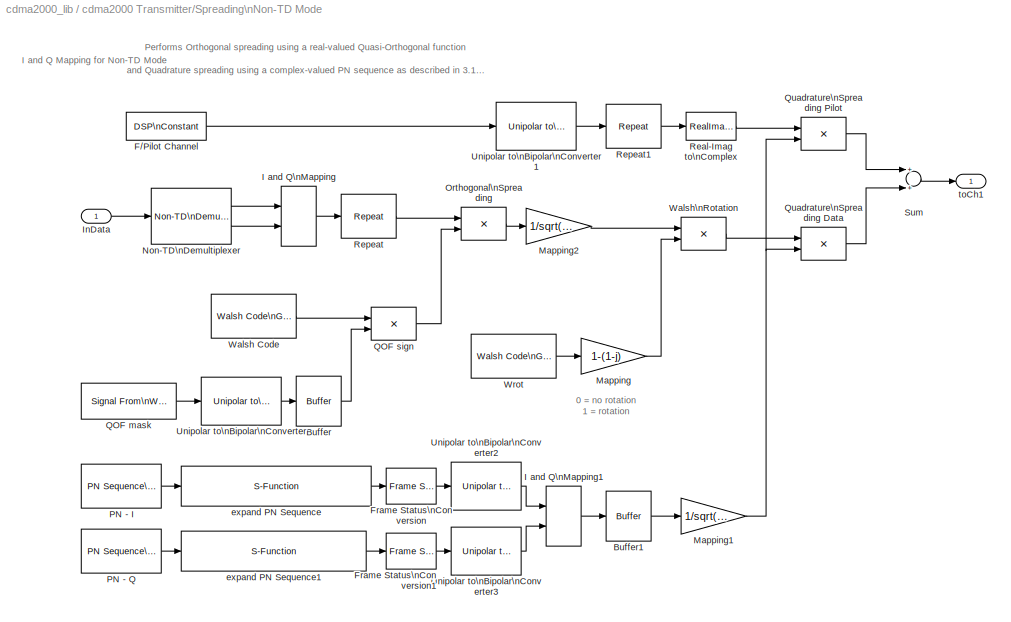
BLOCK [SubSystem] cdma2000 Transmitter/Spreading\nNon-TD Mode
  MaskCallbackString = |||
  MaskDescription = Performs Orthogonal spreading using a real-valued Quasi-Orthogonal function and Quadrature spreading using a complex-valued PN sequence as described in 3.1.3.1.12
  MaskEnableString = off,on,on,on
  MaskHelp = Performs Orthogonal spreading using a real-valued Quasi-Orthogonal function and Quadrature spreading using a complex-valued PN sequence as described in 3.1.3.1.12
  MaskIconFrame = on
  MaskIconOpaque = on
  MaskIconRotate = none
  MaskIconUnits = autoscale
  MaskInitialization = \n%-- Quasi-orthogonal Function mask\nqof_sign(1,:) = zeros(1,256);\nqof_sign(2,:) = reshape(de2bi([hex2dec(['7228d7724eebebb1eb4eb1ebd78d8d28278282d81b41be1b411b1bbe7dd8277d']')'],'right-msb')',1,256);\nqof_sign(3,:) = reshape(de2bi([hex2dec(['114b1e4444e14beeee4be144bbe1b4eedd872d77882d78dd2287d277772d87dd']')'],'right-msb')',1,256);\nqof_sign(4,:) = reshape(de2bi([hex2dec(['1724bd71b28118d48ebd...<+129ch>
  MaskPromptString = Forward Traffic Channel Walsh Length:|Forward Traffic Channel spreading code index:|Quasi-orthogonal function index for F-DTCH:|PN Sequence Offset (0..512):
  MaskSelfModifiable = on
  MaskStyleString = edit,edit,popup(0|1|2|3),edit
  MaskTabNameString = ,,,
  MaskToolTipString = on,on,on,on
  MaskTunableValueString = on,on,on,on
  MaskType = Spreading Non-TD Mode
  MaskValueString = 64|63|0|0
  MaskVarAliasString = ,,,
  MaskVariables = walshLength=@1;trChCode=@2;qof_idx=@3;pnOffset=@4;
  MaskVisibilityString = on,on,on,on
  MinAlgLoopOccurrences = off
  Ports = [1, 1]
  PropExecContextAcrossSSBoundary = on
  RTWSystemCode = Auto
  TreatAsAtomicUnit = off
BLOCK [Reference] cdma2000 Transmitter/Spreading\nNon-TD Mode/Buffer  REF=dspbuff3/Buffer
  AttributesFormatString = \\n
  N = walshLength
  Ports = [1, 1]
  SourceBlock = dspbuff3/Buffer
  SourceType = Buffer
  V = 0
  ic = 0
BLOCK [Reference] cdma2000 Transmitter/Spreading\nNon-TD Mode/Buffer1  REF=dspbuff3/Buffer
  AttributesFormatString = \\n
  N = walshLength
  Ports = [1, 1]
  SourceBlock = dspbuff3/Buffer
  SourceType = Buffer
  V = 0
  ic = 0
BLOCK [Reference] cdma2000 Transmitter/Spreading\nNon-TD Mode/F//Pilot Channel  REF=dspsrcs4/DSP\nConstant
  FramebasedOutput = -inf
  InterpretAs1D = -inf
  Ports = [0, 1]
  SampleMode = Discrete
  ShowPortLabels = on
  SourceBlock = dspsrcs4/DSP\nConstant
  SourceType = DSP Constant
  Ts = -inf
  Value = 0
  additionalParams = off
  allowOverrides = on
  continuousOutput = Sample-based
  dataType = Inherit from 'Constant value'
  discreteOutput = Frame-based
  fracBitsMode = Best precision
  framePeriod = 64/1.2288e6
  isSigned = on
  numFracBits = 15
  sampTime = 1
  udDataType = sfix(16)
  wordLen = 16
BLOCK [Reference] cdma2000 Transmitter/Spreading\nNon-TD Mode/Frame Status\nConversion  REF=dspsigattribs/Frame Status\nConversion
  Ports = [1, 1]
  ShowPortLabels = off
  SourceBlock = dspsigattribs/Frame Status\nConversion
  SourceType = Frame Status Conversion
  growRefPort = off
  outframe = Frame-based
BLOCK [Reference] cdma2000 Transmitter/Spreading\nNon-TD Mode/Frame Status\nConversion1  REF=dspsigattribs/Frame Status\nConversion
  Ports = [1, 1]
  ShowPortLabels = off
  SourceBlock = dspsigattribs/Frame Status\nConversion
  SourceType = Frame Status Conversion
  growRefPort = off
  outframe = Frame-based
BLOCK [RealImagToComplex] cdma2000 Transmitter/Spreading\nNon-TD Mode/I and Q\nMapping
  Input = Real and imag
  Ports = [2, 1]
BLOCK [RealImagToComplex] cdma2000 Transmitter/Spreading\nNon-TD Mode/I and Q\nMapping1
  Input = Real and imag
  Ports = [2, 1]
BLOCK [Inport] cdma2000 Transmitter/Spreading\nNon-TD Mode/InData
  IconDisplay = Port number
  LatchInput = off
BLOCK [Gain] cdma2000 Transmitter/Spreading\nNon-TD Mode/Mapping
  Gain = 1-(1-j)
BLOCK [Gain] cdma2000 Transmitter/Spreading\nNon-TD Mode/Mapping1
  Gain = 1/sqrt(2)
BLOCK [Gain] cdma2000 Transmitter/Spreading\nNon-TD Mode/Mapping2
  Gain = 1/sqrt(2)
BLOCK [Reference] cdma2000 Transmitter/Spreading\nNon-TD Mode/Non-TD\nDemultiplexer  REF=cdma2000_lib/cdma2000 Transmitter/Non-TD\nDemultiplexer  (lib defined in mdl_ef6182a08372)
  Ports = [1, 2]
  ShowPortLabels = on
  SourceBlock = cdma2000_lib/cdma2000 Transmitter/Non-TD\nDemultiplexer
  SourceType = Non-TD Demultiplexer
BLOCK [Product] cdma2000 Transmitter/Spreading\nNon-TD Mode/Orthogonal\nSpreading
  InputSameDT = off
  Ports = [2, 1]
  RndMeth = Floor
BLOCK [Reference] cdma2000 Transmitter/Spreading\nNon-TD Mode/PN - I  REF=commseqgen2/PN Sequence\nGenerator
  Ports = [0, 1]
  SourceBlock = commseqgen2/PN Sequence\nGenerator
  SourceType = PN Sequence Generator
  Ts = 2/(75*(2^15-1))
  frameBased = on
  ini_sta = [1 zeros(1,14)]
  poly = [15 13 9 8 7 5 0]
  reset = off
  sampPerFrame = 2^15-1
  shift = 14+pnOffset*64
BLOCK [Reference] cdma2000 Transmitter/Spreading\nNon-TD Mode/PN - Q  REF=commseqgen2/PN Sequence\nGenerator
  Ports = [0, 1]
  SourceBlock = commseqgen2/PN Sequence\nGenerator
  SourceType = PN Sequence Generator
  Ts = 2/(75*(2^15-1))
  frameBased = on
  ini_sta = [1 zeros(1,14)]
  poly = [15 12 11 10 6 5 4 3 0]
  reset = off
  sampPerFrame = 2^15-1
  shift = 14+pnOffset*64
BLOCK [Reference] cdma2000 Transmitter/Spreading\nNon-TD Mode/QOF mask  REF=dspsrcs4/Signal From\nWorkspace
  OutputAfterFinalValue = Cyclic repetition
  Ports = [0, 1]
  ShowPortLabels = on
  SourceBlock = dspsrcs4/Signal From\nWorkspace
  SourceType = Signal From Workspace
  Ts = 1/1.2288e6
  X = qof_sign(qof_idx,:)
  nsamps = 256
BLOCK [Product] cdma2000 Transmitter/Spreading\nNon-TD Mode/QOF sign
  InputSameDT = off
  Ports = [2, 1]
  RndMeth = Floor
BLOCK [Product] cdma2000 Transmitter/Spreading\nNon-TD Mode/Quadrature\nSpreading Data
  InputSameDT = off
  Ports = [2, 1]
  RndMeth = Floor
BLOCK [Product] cdma2000 Transmitter/Spreading\nNon-TD Mode/Quadrature\nSpreading Pilot
  InputSameDT = off
  Ports = [2, 1]
  RndMeth = Floor
BLOCK [RealImagToComplex] cdma2000 Transmitter/Spreading\nNon-TD Mode/Real-Imag to\nComplex
  Input = Real
  Ports = [1, 1]
BLOCK [Reference] cdma2000 Transmitter/Spreading\nNon-TD Mode/Repeat  REF=dspsigops/Repeat
  N = walshLength
  Ports = [1, 1]
  SourceBlock = dspsigops/Repeat
  SourceType = Repeat
  ic = 0
  mode = Maintain input frame rate
BLOCK [Reference] cdma2000 Transmitter/Spreading\nNon-TD Mode/Repeat1  REF=dspsigops/Repeat
  N = 64
  Ports = [1, 1]
  SourceBlock = dspsigops/Repeat
  SourceType = Repeat
  ic = 0
  mode = Maintain input frame rate
BLOCK [Sum] cdma2000 Transmitter/Spreading\nNon-TD Mode/Sum
  InputSameDT = off
  OutDataTypeMode = Inherit via internal rule
  Ports = [2, 1]
BLOCK [Reference] cdma2000 Transmitter/Spreading\nNon-TD Mode/Unipolar to\nBipolar\nConverter  REF=commutil2/Unipolar to\nBipolar\nConverter
  M = 2
  Ports = [1, 1]
  ShowPortLabels = on
  SourceBlock = commutil2/Unipolar to\nBipolar\nConverter
  SourceType = Unipolar to Bipolar Converter
  polarity = Negative
BLOCK [Reference] cdma2000 Transmitter/Spreading\nNon-TD Mode/Unipolar to\nBipolar\nConverter1  REF=commutil2/Unipolar to\nBipolar\nConverter
  M = 2
  Ports = [1, 1]
  ShowPortLabels = on
  SourceBlock = commutil2/Unipolar to\nBipolar\nConverter
  SourceType = Unipolar to Bipolar Converter
  polarity = Negative
BLOCK [Reference] cdma2000 Transmitter/Spreading\nNon-TD Mode/Unipolar to\nBipolar\nConverter2  REF=commutil2/Unipolar to\nBipolar\nConverter
  M = 2
  Ports = [1, 1]
  ShowPortLabels = on
  SourceBlock = commutil2/Unipolar to\nBipolar\nConverter
  SourceType = Unipolar to Bipolar Converter
  polarity = Negative
BLOCK [Reference] cdma2000 Transmitter/Spreading\nNon-TD Mode/Unipolar to\nBipolar\nConverter3  REF=commutil2/Unipolar to\nBipolar\nConverter
  M = 2
  Ports = [1, 1]
  ShowPortLabels = on
  SourceBlock = commutil2/Unipolar to\nBipolar\nConverter
  SourceType = Unipolar to Bipolar Converter
  polarity = Negative
BLOCK [Reference] cdma2000 Transmitter/Spreading\nNon-TD Mode/Walsh Code  REF=commseqgen2/Walsh Code\nGenerator
  Ports = [0, 1]
  ShowPortLabels = on
  SourceBlock = commseqgen2/Walsh Code\nGenerator
  SourceType = Walsh Code Generator
  frameBased = on
  index = trChCode
  length = walshLength
  sampPerFrame = walshLength
  ts = 1/1.2288e6
BLOCK [Product] cdma2000 Transmitter/Spreading\nNon-TD Mode/Walsh\nRotation
  InputSameDT = off
  Ports = [2, 1]
  RndMeth = Floor
BLOCK [Reference] cdma2000 Transmitter/Spreading\nNon-TD Mode/Wrot  REF=commseqgen2/Walsh Code\nGenerator
  Ports = [0, 1]
  ShowPortLabels = on
  SourceBlock = commseqgen2/Walsh Code\nGenerator
  SourceType = Walsh Code Generator
  frameBased = on
  index = walshRotIdx(qof_idx)
  length = 256
  sampPerFrame = walshLength
  ts = 1/1.2288e6
BLOCK [S-Function] cdma2000 Transmitter/Spreading\nNon-TD Mode/expand PN Sequence
  CopyFcn = set_param(gcb,'LinkStatus','none')
  FunctionName = cdma2000_expandPNSeq
  MaskDisplay = plot(val(:,1),val(:,2)),disp(sys)port_label('input',1,'inPN')port_label('output',1,'outPN')
  MaskIconFrame = on
  MaskIconOpaque = on
  MaskIconRotate = none
  MaskIconUnits = normalized
  MaskType = S-Function Builder
  OpenFcn = sfunctionwizard(gcbh)
  Ports = [1, 1]
  SFunctionModules = cdma2000_expandPNSeq_wrapper
  WizardData = DataTag1
BLOCK [S-Function] cdma2000 Transmitter/Spreading\nNon-TD Mode/expand PN Sequence1
  CopyFcn = set_param(gcb,'LinkStatus','none')
  FunctionName = cdma2000_expandPNSeq
  MaskDisplay = plot(val(:,1),val(:,2)),disp(sys)port_label('input',1,'inPN')port_label('output',1,'outPN')
  MaskIconFrame = on
  MaskIconOpaque = on
  MaskIconRotate = none
  MaskIconUnits = normalized
  MaskType = S-Function Builder
  OpenFcn = sfunctionwizard(gcbh)
  Ports = [1, 1]
  SFunctionModules = cdma2000_expandPNSeq_wrapper
  WizardData = DataTag2
BLOCK [Outport] cdma2000 Transmitter/Spreading\nNon-TD Mode/toCh1
  BusOutputAsStruct = off
  IconDisplay = Port number
BLOCK [SubSystem] cdma2000 Transmitter/Tx Channel Structure
  MaskIconFrame = on
  MaskIconOpaque = on
  MaskIconRotate = none
  MaskIconUnits = autoscale
  MinAlgLoopOccurrences = off
  Ports = [1, 1]
  PropExecContextAcrossSSBoundary = on
  RTWSystemCode = Auto
  TreatAsAtomicUnit = off
BLOCK [Reference] cdma2000 Transmitter/Tx Channel Structure/Add FQI  REF=commcrc2/General CRC\nGenerator
  Ports = [1, 1]
  SourceBlock = commcrc2/General CRC\nGenerator
  SourceType = General CRC Generator
  genPoly = [6 5 2 1 0]
  iniStates = [1]
  numChecksums = 1
BLOCK [Reference] cdma2000 Transmitter/Tx Channel Structure/Block Interleaver  REF=commblkintrlv2/General Block\nInterleaver
  Ports = [1, 1]
  SourceBlock = commblkintrlv2/General Block\nInterleaver
  SourceType = General Block Interleaver
  elements = interTable
BLOCK [Inport] cdma2000 Transmitter/Tx Channel Structure/Ch\nBits
  IconDisplay = Port number
  LatchInput = off
BLOCK [Reference] cdma2000 Transmitter/Tx Channel Structure/Convolutional\nEncoder  REF=commcnvcod2/Convolutional\nEncoder
  Ports = [1, 1]
  SourceBlock = commcnvcod2/Convolutional\nEncoder
  SourceType = Convolutional Encoder
  reset = On each frame
  trellis = poly2trellis(9, [765 671 513 473])
BLOCK [Reference] cdma2000 Transmitter/Tx Channel Structure/Encoder\nTail Bits  REF=dspsigops/Zero Pad
  Ports = [1, 1]
  SourceBlock = dspsigops/Zero Pad
  SourceType = Zero Pad
  numOutCols = 1
  numOutRows = 16 + 6 + 8
  padNumOutColsSpecMethod = User-specified
  padNumOutRowsSpecMethod = User-specified
  padSigAt = End
  trunc_flag = None
  zpadAlong = Columns
BLOCK [Outport] cdma2000 Transmitter/Tx Channel Structure/Mod\nSymbols
  BusOutputAsStruct = off
  IconDisplay = Port number
BLOCK [Reference] cdma2000 Transmitter/Tx Channel Structure/Puncture  REF=commsequence2/Puncture
  Ports = [1, 1]
  SourceBlock = commsequence2/Puncture
  SourceType = Puncture
  punctureVector = [1;1;1;1;0]
BLOCK [Reference] cdma2000 Transmitter/Tx Channel Structure/Repeat  REF=dspsigops/Repeat
  N = 8
  Ports = [1, 1]
  SourceBlock = dspsigops/Repeat
  SourceType = Repeat
  ic = 0
  mode = Maintain input frame rate
ANNOTATION (root): cdma2000 Application\nExample Library
ANNOTATION cdma2000 Channel Models: cdma2000 Channel Models sublibrary
ANNOTATION cdma2000 Receiver: cdma2000 Receiver sublibrary
ANNOTATION cdma2000 Receiver/Channel Estimation: Channel Estimation
ANNOTATION cdma2000 Receiver/Data Correlator: Chip Correlator
ANNOTATION cdma2000 Receiver/Long Code DeScrambling\nPower Control Extracting: Long Code DeScrambling - Power Control Extraction
ANNOTATION cdma2000 Receiver/Long Code DeScrambling\nPower Control Extracting/Power Control\nBit Position\nExtractor: Compute Power Control Bit Position for Power Control subchannel as described in TIA/EIA/IS-2000.2.A 3.1.3.1.10
ANNOTATION cdma2000 Receiver/Long Code DeScrambling\nPower Control Extracting/Power Control\nBit Position\nExtractor: Power Control Bit Position\nExtractor
ANNOTATION cdma2000 Receiver/Long Code DeScrambling\nPower Control Extracting/Power Control\nSymbol Extraction: Extracts Power Control Subchannel as described in TIA/EIA/IS-2000.2.A 3.1.3.1.10
ANNOTATION cdma2000 Receiver/Long Code DeScrambling\nPower Control Extracting/Power Control\nSymbol Extraction: Power Control Symbol Extraction
ANNOTATION cdma2000 Receiver/Long Code\nDeScrambling: I and Q Scrambling Bit Extractor
ANNOTATION cdma2000 Receiver/Long Code\nDeScrambling: Long Code DeScrambling
ANNOTATION cdma2000 Receiver/Long Code\nDeScrambling: Performs Data Descrambling for Forward Traffic Channel as described in TIA/EIA/IS-2000.2.A 3.1.3.1.9
ANNOTATION cdma2000 Receiver/Rake Finger: Consits of chip correlator for Data and Pilot with its corresponding sequence. The output of the pilot correlator is sent to the channel estimator that compares this signal\nwith a the pilot reference. This 1 tap estimator is filter with a low pass band filter before used to correct the phase of the output of the data correlator.\nSignals in red correspond to control signals.
ANNOTATION cdma2000 Receiver/Rake Finger: RAKE Finger
ANNOTATION cdma2000 Receiver/Rake Receiver: RAKE Receiver
ANNOTATION cdma2000 Receiver/Rake Receiver: Signals in red correspond to control signals
ANNOTATION cdma2000 Receiver/Rake Receiver/Spreading\nCodes: 0 = no rotation\n1 = rotation
ANNOTATION cdma2000 Receiver/Rx Baseband Filtering: Baseband Filtering
ANNOTATION cdma2000 Receiver/Rx Baseband Filtering: I and Q components are applied to the I and Q baseband filters separately\nas described in 3.1.3.1.12
ANNOTATION cdma2000 Receiver/Rx Channel Structure: Performs depuncturing, derepetition, convolutional decoding, encoder tail bits detachment and computes\nFrame Quality Indicator extraction as described in Figure 3.1.3.1.1.1-15
ANNOTATION cdma2000 Receiver/Rx Channel Structure: Rx Channel Structure for \nForward Fundamental Channel - Radio Configuration 3
ANNOTATION cdma2000 Transmitter: cdma2000 Transmitter sublibrary
ANNOTATION cdma2000 Transmitter/Baseband Filtering: Baseband Filtering
ANNOTATION cdma2000 Transmitter/Baseband Filtering: I and Q components are applied to the I and Q baseband filters separately\nas described in 3.1.3.1.12
ANNOTATION cdma2000 Transmitter/Long Code Scrambling\nPower Control and\nSignal Point Mapping: Blocks in red represent Control
ANNOTATION cdma2000 Transmitter/Long Code Scrambling\nPower Control and\nSignal Point Mapping: Long Code Scrambling, Power Control and Signal Point Mapping
ANNOTATION cdma2000 Transmitter/Long Code\nScrambling: Data scrambling for Forward Traffic Channel as described in TIA/EIA/IS-2000.2.A 3.1.3.1.9
ANNOTATION cdma2000 Transmitter/Long Code\nScrambling: Long Code Scrambling
ANNOTATION cdma2000 Transmitter/Power Control\nBit Position\nExtractor: Compute Power Control Bit Position for \nPower Control subchannel as described in TIA/EIA/IS-2000.2.A 3.1.3.1.10
ANNOTATION cdma2000 Transmitter/Power Control\nBit Position\nExtractor: Power Control Bit Position\nExtractor
ANNOTATION cdma2000 Transmitter/Power Control\nSymbol Puncture: Inserts Power Control Subchannel as described in TIA/EIA/IS-2000.2.A 3.1.3.1.10
ANNOTATION cdma2000 Transmitter/Power Control\nSymbol Puncture: Power Control Symbol Puncture
ANNOTATION cdma2000 Transmitter/Spreading\nNon-TD Mode: 0 = no rotation\n1 = rotation
ANNOTATION cdma2000 Transmitter/Spreading\nNon-TD Mode: I and Q Mapping for Non-TD Mode
ANNOTATION cdma2000 Transmitter/Spreading\nNon-TD Mode: Performs Orthogonal spreading using a real-valued Quasi-Orthogonal function \nand Quadrature spreading using a complex-valued PN sequence as described in 3.1.3.1.12
ANNOTATION cdma2000 Transmitter/Tx Channel Structure: Performs Frame Quality Indicator and tail bits attachment, convolutional encoding with rate 1/4 constraint length 9,\nrepeatition and puncturing as described in Figure 3.1.3.1.1.1-15
ANNOTATION cdma2000 Transmitter/Tx Channel Structure: Tx Channel Structure for \nForward Fundamental Channel - Radio Configuration 3
LINE cdma2000 Channel Models/AWGN\nChannel/AWGN\nChannel:1 -> cdma2000 Channel Models/AWGN\nChannel/Out1:1
LINE cdma2000 Channel Models/AWGN\nChannel/In1:1 -> cdma2000 Channel Models/AWGN\nChannel/AWGN\nChannel:1
LINE cdma2000 Channel Models/Configurable\nSubsystem/AWGN\nChannel:1 -> cdma2000 Channel Models/Configurable\nSubsystem/Out1:1
LINE cdma2000 Channel Models/Configurable\nSubsystem/In1:1 -> cdma2000 Channel Models/Configurable\nSubsystem/AWGN\nChannel:1
LINE cdma2000 Channel Models/Multipath Fading Channel/AWGN\nChannel:1 -> cdma2000 Channel Models/Multipath Fading Channel/Out1:1
LINE cdma2000 Channel Models/Multipath Fading Channel/In1:1 -> cdma2000 Channel Models/Multipath Fading Channel/Multipath Rayleigh\nFading Channel:1
LINE cdma2000 Channel Models/Multipath Fading Channel/Multipath Rayleigh\nFading Channel:1 -> cdma2000 Channel Models/Multipath Fading Channel/AWGN\nChannel:1
LINE cdma2000 Channel Models/No Channel/In1:1 -> cdma2000 Channel Models/No Channel/Out1:1
LINE cdma2000 Receiver/Channel Estimation/Low Pass Filter:1 -> cdma2000 Receiver/Channel Estimation/chEst:1
LINE cdma2000 Receiver/Channel Estimation/Math\nFunction:1 -> cdma2000 Receiver/Channel Estimation/Product:1
LINE cdma2000 Receiver/Channel Estimation/Product:1 -> cdma2000 Receiver/Channel Estimation/Low Pass Filter:1
LINE cdma2000 Receiver/Channel Estimation/cRef:1 -> cdma2000 Receiver/Channel Estimation/Math\nFunction:1
LINE cdma2000 Receiver/Channel Estimation/cRx:1 -> cdma2000 Receiver/Channel Estimation/Product:2
LINE cdma2000 Receiver/Data Correlator/Downsample:1 -> cdma2000 Receiver/Data Correlator/Product2:1
LINE cdma2000 Receiver/Data Correlator/Gain:1 -> cdma2000 Receiver/Data Correlator/cOutBits:1
LINE cdma2000 Receiver/Data Correlator/Integrate\nand Dump:1 -> cdma2000 Receiver/Data Correlator/Gain:1
LINE cdma2000 Receiver/Data Correlator/Math\nFunction:1 -> cdma2000 Receiver/Data Correlator/Product2:2
LINE cdma2000 Receiver/Data Correlator/Product2:1 -> cdma2000 Receiver/Data Correlator/Integrate\nand Dump:1
LINE cdma2000 Receiver/Data Correlator/cIn:1 -> cdma2000 Receiver/Data Correlator/Downsample:1
LINE cdma2000 Receiver/Data Correlator/cPNseq:1 -> cdma2000 Receiver/Data Correlator/Math\nFunction:1
LINE cdma2000 Receiver/Long Code DeScrambling\nPower Control Extracting/Buffer:1 -> cdma2000 Receiver/Long Code DeScrambling\nPower Control Extracting/OutData:1
LINE cdma2000 Receiver/Long Code DeScrambling\nPower Control Extracting/DSP\nConstant10:1 -> cdma2000 Receiver/Long Code DeScrambling\nPower Control Extracting/Variable\nInteger Delay4:1
LINE cdma2000 Receiver/Long Code DeScrambling\nPower Control Extracting/DSP\nConstant1:1 -> cdma2000 Receiver/Long Code DeScrambling\nPower Control Extracting/Sum2:1
LINE cdma2000 Receiver/Long Code DeScrambling\nPower Control Extracting/DSP\nConstant9:1 -> cdma2000 Receiver/Long Code DeScrambling\nPower Control Extracting/Sum5:1
LINE cdma2000 Receiver/Long Code DeScrambling\nPower Control Extracting/Decimator:1 -> cdma2000 Receiver/Long Code DeScrambling\nPower Control Extracting/Power Control\nBit Position\nExtractor:1
NET cdma2000 Receiver/Long Code DeScrambling\nPower Control Extracting/EnSignal:1 -> cdma2000 Receiver/Long Code DeScrambling\nPower Control Extracting/Gain:1, cdma2000 Receiver/Long Code DeScrambling\nPower Control Extracting/Goto:1, cdma2000 Receiver/Long Code DeScrambling\nPower Control Extracting/Variable\nInteger Delay4:2
LINE cdma2000 Receiver/Long Code DeScrambling\nPower Control Extracting/From:1 -> cdma2000 Receiver/Long Code DeScrambling\nPower Control Extracting/Power Control\nSymbol Extraction:3
LINE cdma2000 Receiver/Long Code DeScrambling\nPower Control Extracting/Gain1:1 -> cdma2000 Receiver/Long Code DeScrambling\nPower Control Extracting/Sum2:2
NET cdma2000 Receiver/Long Code DeScrambling\nPower Control Extracting/Gain:1 -> cdma2000 Receiver/Long Code DeScrambling\nPower Control Extracting/Sum1:2, cdma2000 Receiver/Long Code DeScrambling\nPower Control Extracting/Sum5:2
LINE cdma2000 Receiver/Long Code DeScrambling\nPower Control Extracting/Hard Decisions/Bipolar to\nUnipolar\nConverter:1 -> cdma2000 Receiver/Long Code DeScrambling\nPower Control Extracting/Hard Decisions/Out1:1
LINE cdma2000 Receiver/Long Code DeScrambling\nPower Control Extracting/Hard Decisions/In1:1 -> cdma2000 Receiver/Long Code DeScrambling\nPower Control Extracting/Hard Decisions/Sign:1
LINE cdma2000 Receiver/Long Code DeScrambling\nPower Control Extracting/Hard Decisions/Sign:1 -> cdma2000 Receiver/Long Code DeScrambling\nPower Control Extracting/Hard Decisions/Bipolar to\nUnipolar\nConverter:1
LINE cdma2000 Receiver/Long Code DeScrambling\nPower Control Extracting/Hard Decisions:1 -> cdma2000 Receiver/Long Code DeScrambling\nPower Control Extracting/PCBits:1
LINE cdma2000 Receiver/Long Code DeScrambling\nPower Control Extracting/Hit \nCrossing:1 -> cdma2000 Receiver/Long Code DeScrambling\nPower Control Extracting/Long Code Generator\n1.2288Mcps2:1
LINE cdma2000 Receiver/Long Code DeScrambling\nPower Control Extracting/InData:1 -> cdma2000 Receiver/Long Code DeScrambling\nPower Control Extracting/Long Code\nDeScrambling:1
NET cdma2000 Receiver/Long Code DeScrambling\nPower Control Extracting/Long Code Generator\n1.2288Mcps2:1 -> cdma2000 Receiver/Long Code DeScrambling\nPower Control Extracting/Decimator:1, cdma2000 Receiver/Long Code DeScrambling\nPower Control Extracting/Long Code\nDeScrambling:2
LINE cdma2000 Receiver/Long Code DeScrambling\nPower Control Extracting/Long Code\nDeScrambling:1 -> cdma2000 Receiver/Long Code DeScrambling\nPower Control Extracting/Variable\nInteger Delay3:1
LINE cdma2000 Receiver/Long Code DeScrambling\nPower Control Extracting/Power Control\nBit Position\nExtractor/Bit to Integer\nConverter:1 -> cdma2000 Receiver/Long Code DeScrambling\nPower Control Extracting/Power Control\nBit Position\nExtractor/Starting Symbol\nPosition:1
LINE cdma2000 Receiver/Long Code DeScrambling\nPower Control Extracting/Power Control\nBit Position\nExtractor/Buffer:1 -> cdma2000 Receiver/Long Code DeScrambling\nPower Control Extracting/Power Control\nBit Position\nExtractor/Decimator1:1
LINE cdma2000 Receiver/Long Code DeScrambling\nPower Control Extracting/Power Control\nBit Position\nExtractor/Decimated Bits:1 -> cdma2000 Receiver/Long Code DeScrambling\nPower Control Extracting/Power Control\nBit Position\nExtractor/Buffer:1
LINE cdma2000 Receiver/Long Code DeScrambling\nPower Control Extracting/Power Control\nBit Position\nExtractor/Decimator1:1 -> cdma2000 Receiver/Long Code DeScrambling\nPower Control Extracting/Power Control\nBit Position\nExtractor/Bit to Integer\nConverter:1
LINE cdma2000 Receiver/Long Code DeScrambling\nPower Control Extracting/Power Control\nBit Position\nExtractor/Starting Symbol\nPosition:1 -> cdma2000 Receiver/Long Code DeScrambling\nPower Control Extracting/Power Control\nBit Position\nExtractor/Bits:1
LINE cdma2000 Receiver/Long Code DeScrambling\nPower Control Extracting/Power Control\nBit Position\nExtractor:1 -> cdma2000 Receiver/Long Code DeScrambling\nPower Control Extracting/Power Control\nSymbol Extraction:2
LINE cdma2000 Receiver/Long Code DeScrambling\nPower Control Extracting/Power Control\nSymbol Extraction/Assignment:1 -> cdma2000 Receiver/Long Code DeScrambling\nPower Control Extracting/Power Control\nSymbol Extraction/Switch1:3
NET cdma2000 Receiver/Long Code DeScrambling\nPower Control Extracting/Power Control\nSymbol Extraction/Buffer:1 -> cdma2000 Receiver/Long Code DeScrambling\nPower Control Extracting/Power Control\nSymbol Extraction/Assignment:1, cdma2000 Receiver/Long Code DeScrambling\nPower Control Extracting/Power Control\nSymbol Extraction/Switch1:1, cdma2000 Receiver/Long Code DeScrambling\nPower Control Extracting/Power Control\nSymbol Extraction/Variable\nSelector:1
LINE cdma2000 Receiver/Long Code DeScrambling\nPower Control Extracting/Power Control\nSymbol Extraction/DSP\nConstant1:1 -> cdma2000 Receiver/Long Code DeScrambling\nPower Control Extracting/Power Control\nSymbol Extraction/Product:2
LINE cdma2000 Receiver/Long Code DeScrambling\nPower Control Extracting/Power Control\nSymbol Extraction/DSP\nConstant2:1 -> cdma2000 Receiver/Long Code DeScrambling\nPower Control Extracting/Power Control\nSymbol Extraction/Assignment:2
LINE cdma2000 Receiver/Long Code DeScrambling\nPower Control Extracting/Power Control\nSymbol Extraction/DSP\nConstant3:1 -> cdma2000 Receiver/Long Code DeScrambling\nPower Control Extracting/Power Control\nSymbol Extraction/Sum:2
LINE cdma2000 Receiver/Long Code DeScrambling\nPower Control Extracting/Power Control\nSymbol Extraction/DSP\nConstant4:1 -> cdma2000 Receiver/Long Code DeScrambling\nPower Control Extracting/Power Control\nSymbol Extraction/Sum1:2
LINE cdma2000 Receiver/Long Code DeScrambling\nPower Control Extracting/Power Control\nSymbol Extraction/EnDelay:1 -> cdma2000 Receiver/Long Code DeScrambling\nPower Control Extracting/Power Control\nSymbol Extraction/Zero-Order\nHold1:1
LINE cdma2000 Receiver/Long Code DeScrambling\nPower Control Extracting/Power Control\nSymbol Extraction/Frame Status\nConversion:1 -> cdma2000 Receiver/Long Code DeScrambling\nPower Control Extracting/Power Control\nSymbol Extraction/Sum:1
LINE cdma2000 Receiver/Long Code DeScrambling\nPower Control Extracting/Power Control\nSymbol Extraction/Gating:1 -> cdma2000 Receiver/Long Code DeScrambling\nPower Control Extracting/Power Control\nSymbol Extraction/Logical\nOperator:1
LINE cdma2000 Receiver/Long Code DeScrambling\nPower Control Extracting/Power Control\nSymbol Extraction/InData:1 -> cdma2000 Receiver/Long Code DeScrambling\nPower Control Extracting/Power Control\nSymbol Extraction/Buffer:1
LINE cdma2000 Receiver/Long Code DeScrambling\nPower Control Extracting/Power Control\nSymbol Extraction/Logical\nOperator:1 -> cdma2000 Receiver/Long Code DeScrambling\nPower Control Extracting/Power Control\nSymbol Extraction/Variable\nInteger Delay3:1
LINE cdma2000 Receiver/Long Code DeScrambling\nPower Control Extracting/Power Control\nSymbol Extraction/Position:1 -> cdma2000 Receiver/Long Code DeScrambling\nPower Control Extracting/Power Control\nSymbol Extraction/Frame Status\nConversion:1
LINE cdma2000 Receiver/Long Code DeScrambling\nPower Control Extracting/Power Control\nSymbol Extraction/Product:1 -> cdma2000 Receiver/Long Code DeScrambling\nPower Control Extracting/Power Control\nSymbol Extraction/Rounding\nFunction:1
LINE cdma2000 Receiver/Long Code DeScrambling\nPower Control Extracting/Power Control\nSymbol Extraction/Rounding\nFunction:1 -> cdma2000 Receiver/Long Code DeScrambling\nPower Control Extracting/Power Control\nSymbol Extraction/Sum1:1
LINE cdma2000 Receiver/Long Code DeScrambling\nPower Control Extracting/Power Control\nSymbol Extraction/Sum1:1 -> cdma2000 Receiver/Long Code DeScrambling\nPower Control Extracting/Power Control\nSymbol Extraction/Variable\nInteger Delay3:2
NET cdma2000 Receiver/Long Code DeScrambling\nPower Control Extracting/Power Control\nSymbol Extraction/Sum:1 -> cdma2000 Receiver/Long Code DeScrambling\nPower Control Extracting/Power Control\nSymbol Extraction/Assignment:3, cdma2000 Receiver/Long Code DeScrambling\nPower Control Extracting/Power Control\nSymbol Extraction/Variable\nSelector:2
LINE cdma2000 Receiver/Long Code DeScrambling\nPower Control Extracting/Power Control\nSymbol Extraction/Switch1:1 -> cdma2000 Receiver/Long Code DeScrambling\nPower Control Extracting/Power Control\nSymbol Extraction/OutData:1
LINE cdma2000 Receiver/Long Code DeScrambling\nPower Control Extracting/Power Control\nSymbol Extraction/Variable\nInteger Delay3:1 -> cdma2000 Receiver/Long Code DeScrambling\nPower Control Extracting/Power Control\nSymbol Extraction/Switch1:2
LINE cdma2000 Receiver/Long Code DeScrambling\nPower Control Extracting/Power Control\nSymbol Extraction/Variable\nSelector:1 -> cdma2000 Receiver/Long Code DeScrambling\nPower Control Extracting/Power Control\nSymbol Extraction/PCBits:1
LINE cdma2000 Receiver/Long Code DeScrambling\nPower Control Extracting/Power Control\nSymbol Extraction/Zero-Order\nHold1:1 -> cdma2000 Receiver/Long Code DeScrambling\nPower Control Extracting/Power Control\nSymbol Extraction/Product:1
LINE cdma2000 Receiver/Long Code DeScrambling\nPower Control Extracting/Power Control\nSymbol Extraction:1 -> cdma2000 Receiver/Long Code DeScrambling\nPower Control Extracting/Variable\nInteger Delay1:1
LINE cdma2000 Receiver/Long Code DeScrambling\nPower Control Extracting/Power Control\nSymbol Extraction:2 -> cdma2000 Receiver/Long Code DeScrambling\nPower Control Extracting/Hard Decisions:1
LINE cdma2000 Receiver/Long Code DeScrambling\nPower Control Extracting/Sum1:1 -> cdma2000 Receiver/Long Code DeScrambling\nPower Control Extracting/Zero-Order\nHold1:1
LINE cdma2000 Receiver/Long Code DeScrambling\nPower Control Extracting/Sum2:1 -> cdma2000 Receiver/Long Code DeScrambling\nPower Control Extracting/Variable\nInteger Delay1:2
NET cdma2000 Receiver/Long Code DeScrambling\nPower Control Extracting/Sum5:1 -> cdma2000 Receiver/Long Code DeScrambling\nPower Control Extracting/Sum1:1, cdma2000 Receiver/Long Code DeScrambling\nPower Control Extracting/Variable\nInteger Delay3:2
LINE cdma2000 Receiver/Long Code DeScrambling\nPower Control Extracting/Variable\nInteger Delay1:1 -> cdma2000 Receiver/Long Code DeScrambling\nPower Control Extracting/Buffer:1
LINE cdma2000 Receiver/Long Code DeScrambling\nPower Control Extracting/Variable\nInteger Delay3:1 -> cdma2000 Receiver/Long Code DeScrambling\nPower Control Extracting/Power Control\nSymbol Extraction:1
NET cdma2000 Receiver/Long Code DeScrambling\nPower Control Extracting/Variable\nInteger Delay4:1 -> cdma2000 Receiver/Long Code DeScrambling\nPower Control Extracting/Hit \nCrossing:1, cdma2000 Receiver/Long Code DeScrambling\nPower Control Extracting/Long Code\nDeScrambling:3, cdma2000 Receiver/Long Code DeScrambling\nPower Control Extracting/Power Control\nBit Position\nExtractor:enable
LINE cdma2000 Receiver/Long Code DeScrambling\nPower Control Extracting/Zero-Order\nHold1:1 -> cdma2000 Receiver/Long Code DeScrambling\nPower Control Extracting/Gain1:1
LINE cdma2000 Receiver/Long Code\nDeScrambling/DSP\nConstant1:1 -> cdma2000 Receiver/Long Code\nDeScrambling/Switch1:2
LINE cdma2000 Receiver/Long Code\nDeScrambling/Delay:1 -> cdma2000 Receiver/Long Code\nDeScrambling/Matrix\nConcatenation:2
LINE cdma2000 Receiver/Long Code\nDeScrambling/En:1 -> cdma2000 Receiver/Long Code\nDeScrambling/Delay:2
NET cdma2000 Receiver/Long Code\nDeScrambling/InData:1 -> cdma2000 Receiver/Long Code\nDeScrambling/Product:1, cdma2000 Receiver/Long Code\nDeScrambling/Switch1:1
LINE cdma2000 Receiver/Long Code\nDeScrambling/Long Code:1 -> cdma2000 Receiver/Long Code\nDeScrambling/Multiport\nSelector:1
LINE cdma2000 Receiver/Long Code\nDeScrambling/Matrix\nConcatenation:1 -> cdma2000 Receiver/Long Code\nDeScrambling/Scrambling Bit\nRepetition:1
LINE cdma2000 Receiver/Long Code\nDeScrambling/Multiport\nSelector:1 -> cdma2000 Receiver/Long Code\nDeScrambling/Matrix\nConcatenation:1
LINE cdma2000 Receiver/Long Code\nDeScrambling/Multiport\nSelector:2 -> cdma2000 Receiver/Long Code\nDeScrambling/Delay:1
LINE cdma2000 Receiver/Long Code\nDeScrambling/Product:1 -> cdma2000 Receiver/Long Code\nDeScrambling/Switch1:3
LINE cdma2000 Receiver/Long Code\nDeScrambling/Scrambling Bit\nRepetition:1 -> cdma2000 Receiver/Long Code\nDeScrambling/Unipolar to\nBipolar\nConverter1:1
LINE cdma2000 Receiver/Long Code\nDeScrambling/Switch1:1 -> cdma2000 Receiver/Long Code\nDeScrambling/OutData:1
LINE cdma2000 Receiver/Long Code\nDeScrambling/Unipolar to\nBipolar\nConverter1:1 -> cdma2000 Receiver/Long Code\nDeScrambling/Product:2
LINE cdma2000 Receiver/Low Pass Filter/Digital Filter:1 -> cdma2000 Receiver/Low Pass Filter/Out1:1
LINE cdma2000 Receiver/Low Pass Filter/In1:1 -> cdma2000 Receiver/Low Pass Filter/Digital Filter:1
LINE cdma2000 Receiver/Rake Finger/Channel Estimation:1 -> cdma2000 Receiver/Rake Finger/Transpose:1
LINE cdma2000 Receiver/Rake Finger/DSP\nConstant1:1 -> cdma2000 Receiver/Rake Finger/Variable\nInteger Delay:1
LINE cdma2000 Receiver/Rake Finger/DSP\nConstant2:1 -> cdma2000 Receiver/Rake Finger/Product4:2
LINE cdma2000 Receiver/Rake Finger/Data Correlator:1 -> cdma2000 Receiver/Rake Finger/Delay:1
LINE cdma2000 Receiver/Rake Finger/Delay:1 -> cdma2000 Receiver/Rake Finger/Product3:2
NET cdma2000 Receiver/Rake Finger/Fng Ph (Chips):1 -> cdma2000 Receiver/Rake Finger/Product4:1, cdma2000 Receiver/Rake Finger/Sum:2
LINE cdma2000 Receiver/Rake Finger/Frame Status\nConversion:1 -> cdma2000 Receiver/Rake Finger/cchEst:1
LINE cdma2000 Receiver/Rake Finger/Pilot Correlator:1 -> cdma2000 Receiver/Rake Finger/Channel Estimation:2
LINE cdma2000 Receiver/Rake Finger/PilotRef:1 -> cdma2000 Receiver/Rake Finger/Variable\nInteger Delay4:1
LINE cdma2000 Receiver/Rake Finger/Product1:1 -> cdma2000 Receiver/Rake Finger/Variable\nInteger Delay1:2
LINE cdma2000 Receiver/Rake Finger/Product2:1 -> cdma2000 Receiver/Rake Finger/Variable\nInteger Delay2:2
LINE cdma2000 Receiver/Rake Finger/Product3:1 -> cdma2000 Receiver/Rake Finger/cData_Out:1
LINE cdma2000 Receiver/Rake Finger/Product4:1 -> cdma2000 Receiver/Rake Finger/Rounding\nFunction:1
LINE cdma2000 Receiver/Rake Finger/Product:1 -> cdma2000 Receiver/Rake Finger/Sum:1
NET cdma2000 Receiver/Rake Finger/Rounding\nFunction:1 -> cdma2000 Receiver/Rake Finger/Product1:1, cdma2000 Receiver/Rake Finger/Product2:1, cdma2000 Receiver/Rake Finger/Product:1, cdma2000 Receiver/Rake Finger/Variable\nInteger Delay4:2, cdma2000 Receiver/Rake Finger/Variable\nInteger Delay:2, cdma2000 Receiver/Rake Finger/symDelay:1
LINE cdma2000 Receiver/Rake Finger/Sum:1 -> cdma2000 Receiver/Rake Finger/Variable\nInteger Delay3:2
NET cdma2000 Receiver/Rake Finger/Transpose:1 -> cdma2000 Receiver/Rake Finger/Frame Status\nConversion:1, cdma2000 Receiver/Rake Finger/Product3:1
LINE cdma2000 Receiver/Rake Finger/Variable\nInteger Delay1:1 -> cdma2000 Receiver/Rake Finger/Pilot Correlator:2
LINE cdma2000 Receiver/Rake Finger/Variable\nInteger Delay2:1 -> cdma2000 Receiver/Rake Finger/Data Correlator:2
NET cdma2000 Receiver/Rake Finger/Variable\nInteger Delay3:1 -> cdma2000 Receiver/Rake Finger/Data Correlator:1, cdma2000 Receiver/Rake Finger/Pilot Correlator:1
LINE cdma2000 Receiver/Rake Finger/Variable\nInteger Delay4:1 -> cdma2000 Receiver/Rake Finger/Channel Estimation:1
NET cdma2000 Receiver/Rake Finger/Variable\nInteger Delay:1 -> cdma2000 Receiver/Rake Finger/Data Correlator:enable, cdma2000 Receiver/Rake Finger/Pilot Correlator:enable
LINE cdma2000 Receiver/Rake Finger/Width1:1 -> cdma2000 Receiver/Rake Finger/Product1:2
LINE cdma2000 Receiver/Rake Finger/Width2:1 -> cdma2000 Receiver/Rake Finger/Product2:2
LINE cdma2000 Receiver/Rake Finger/Width:1 -> cdma2000 Receiver/Rake Finger/Product:2
NET cdma2000 Receiver/Rake Finger/cInData:1 -> cdma2000 Receiver/Rake Finger/Variable\nInteger Delay3:1, cdma2000 Receiver/Rake Finger/Width:1
NET cdma2000 Receiver/Rake Finger/cPN_Data:1 -> cdma2000 Receiver/Rake Finger/Variable\nInteger Delay2:1, cdma2000 Receiver/Rake Finger/Width2:1
NET cdma2000 Receiver/Rake Finger/cPN_Pilot:1 -> cdma2000 Receiver/Rake Finger/Variable\nInteger Delay1:1, cdma2000 Receiver/Rake Finger/Width1:1
LINE cdma2000 Receiver/Rake Receiver/DSP\nConstant10:1 -> cdma2000 Receiver/Rake Receiver/Variable\nInteger Delay4:1
LINE cdma2000 Receiver/Rake Receiver/DSP\nConstant1:1 -> cdma2000 Receiver/Rake Receiver/Rake Finger:enable
LINE cdma2000 Receiver/Rake Receiver/DSP\nConstant2:1 -> cdma2000 Receiver/Rake Receiver/Rake Finger:5
LINE cdma2000 Receiver/Rake Receiver/DSP\nConstant3:1 -> cdma2000 Receiver/Rake Receiver/Rake Finger1:enable
LINE cdma2000 Receiver/Rake Receiver/DSP\nConstant4:1 -> cdma2000 Receiver/Rake Receiver/Rake Finger1:5
LINE cdma2000 Receiver/Rake Receiver/DSP\nConstant5:1 -> cdma2000 Receiver/Rake Receiver/Rake Finger2:enable
LINE cdma2000 Receiver/Rake Receiver/DSP\nConstant6:1 -> cdma2000 Receiver/Rake Receiver/Rake Finger2:5
LINE cdma2000 Receiver/Rake Receiver/DSP\nConstant7:1 -> cdma2000 Receiver/Rake Receiver/Rake Finger3:5
LINE cdma2000 Receiver/Rake Receiver/DSP\nConstant8:1 -> cdma2000 Receiver/Rake Receiver/Rake Finger3:enable
LINE cdma2000 Receiver/Rake Receiver/DSP\nConstant9:1 -> cdma2000 Receiver/Rake Receiver/Sum5:2
LINE cdma2000 Receiver/Rake Receiver/Math\nFunction1:1 -> cdma2000 Receiver/Rake Receiver/Sum3:2
LINE cdma2000 Receiver/Rake Receiver/Math\nFunction2:1 -> cdma2000 Receiver/Rake Receiver/Sum3:3
LINE cdma2000 Receiver/Rake Receiver/Math\nFunction3:1 -> cdma2000 Receiver/Rake Receiver/Sum3:4
LINE cdma2000 Receiver/Rake Receiver/Math\nFunction:1 -> cdma2000 Receiver/Rake Receiver/Sum3:1
NET cdma2000 Receiver/Rake Receiver/MinMax:1 -> cdma2000 Receiver/Rake Receiver/Sum1:2, cdma2000 Receiver/Rake Receiver/Sum2:1, cdma2000 Receiver/Rake Receiver/Sum4:2, cdma2000 Receiver/Rake Receiver/Sum5:1, cdma2000 Receiver/Rake Receiver/Sum:2
NET cdma2000 Receiver/Rake Receiver/Pilot Reference:1 -> cdma2000 Receiver/Rake Receiver/Rake Finger1:4, cdma2000 Receiver/Rake Receiver/Rake Finger2:4, cdma2000 Receiver/Rake Receiver/Rake Finger3:4, cdma2000 Receiver/Rake Receiver/Rake Finger:4
LINE cdma2000 Receiver/Rake Receiver/Rake Combiner/FTrCh1:1 -> cdma2000 Receiver/Rake Receiver/Rake Combiner/Matrix\nConcatenation:1
LINE cdma2000 Receiver/Rake Receiver/Rake Combiner/FTrCh2:1 -> cdma2000 Receiver/Rake Receiver/Rake Combiner/Matrix\nConcatenation:2
LINE cdma2000 Receiver/Rake Receiver/Rake Combiner/FTrCh3:1 -> cdma2000 Receiver/Rake Receiver/Rake Combiner/Matrix\nConcatenation:3
LINE cdma2000 Receiver/Rake Receiver/Rake Combiner/FTrCh4:1 -> cdma2000 Receiver/Rake Receiver/Rake Combiner/Matrix\nConcatenation:4
LINE cdma2000 Receiver/Rake Receiver/Rake Combiner/Matrix\nConcatenation:1 -> cdma2000 Receiver/Rake Receiver/Rake Combiner/Matrix\nSum:1
LINE cdma2000 Receiver/Rake Receiver/Rake Combiner/Matrix\nSum:1 -> cdma2000 Receiver/Rake Receiver/Rake Combiner/Product3:1
LINE cdma2000 Receiver/Rake Receiver/Rake Combiner/Norm Factor:1 -> cdma2000 Receiver/Rake Receiver/Rake Combiner/Sum:1
LINE cdma2000 Receiver/Rake Receiver/Rake Combiner/Product3:1 -> cdma2000 Receiver/Rake Receiver/Rake Combiner/cDPCH:1
LINE cdma2000 Receiver/Rake Receiver/Rake Combiner/Sum:1 -> cdma2000 Receiver/Rake Receiver/Rake Combiner/Product3:2
LINE cdma2000 Receiver/Rake Receiver/Rake Combiner:1 -> cdma2000 Receiver/Rake Receiver/cDPCH:1
LINE cdma2000 Receiver/Rake Receiver/Rake Finger1:1 -> cdma2000 Receiver/Rake Receiver/Math\nFunction1:1
LINE cdma2000 Receiver/Rake Receiver/Rake Finger1:2 -> cdma2000 Receiver/Rake Receiver/Variable\nInteger Delay1:1
NET cdma2000 Receiver/Rake Receiver/Rake Finger1:3 -> cdma2000 Receiver/Rake Receiver/MinMax:2, cdma2000 Receiver/Rake Receiver/Sum1:1
LINE cdma2000 Receiver/Rake Receiver/Rake Finger2:1 -> cdma2000 Receiver/Rake Receiver/Math\nFunction2:1
LINE cdma2000 Receiver/Rake Receiver/Rake Finger2:2 -> cdma2000 Receiver/Rake Receiver/Variable\nInteger Delay3:1
NET cdma2000 Receiver/Rake Receiver/Rake Finger2:3 -> cdma2000 Receiver/Rake Receiver/MinMax:3, cdma2000 Receiver/Rake Receiver/Sum4:1
LINE cdma2000 Receiver/Rake Receiver/Rake Finger3:1 -> cdma2000 Receiver/Rake Receiver/Math\nFunction3:1
LINE cdma2000 Receiver/Rake Receiver/Rake Finger3:2 -> cdma2000 Receiver/Rake Receiver/Variable\nInteger Delay2:1
NET cdma2000 Receiver/Rake Receiver/Rake Finger3:3 -> cdma2000 Receiver/Rake Receiver/MinMax:4, cdma2000 Receiver/Rake Receiver/Sum2:2
LINE cdma2000 Receiver/Rake Receiver/Rake Finger:1 -> cdma2000 Receiver/Rake Receiver/Math\nFunction:1
LINE cdma2000 Receiver/Rake Receiver/Rake Finger:2 -> cdma2000 Receiver/Rake Receiver/Variable\nInteger Delay:1
NET cdma2000 Receiver/Rake Receiver/Rake Finger:3 -> cdma2000 Receiver/Rake Receiver/MinMax:1, cdma2000 Receiver/Rake Receiver/Sum:1
LINE cdma2000 Receiver/Rake Receiver/Spreading\nCodes/Buffer1:1 -> cdma2000 Receiver/Rake Receiver/Spreading\nCodes/Mapping1:1
LINE cdma2000 Receiver/Rake Receiver/Spreading\nCodes/Buffer:1 -> cdma2000 Receiver/Rake Receiver/Spreading\nCodes/QOF sign:2
LINE cdma2000 Receiver/Rake Receiver/Spreading\nCodes/DSP\nConstant1:1 -> cdma2000 Receiver/Rake Receiver/Spreading\nCodes/Imag part to 0:1
LINE cdma2000 Receiver/Rake Receiver/Spreading\nCodes/Frame Status\nConversion1:1 -> cdma2000 Receiver/Rake Receiver/Spreading\nCodes/Unipolar to\nBipolar\nConverter2:1
LINE cdma2000 Receiver/Rake Receiver/Spreading\nCodes/Frame Status\nConversion:1 -> cdma2000 Receiver/Rake Receiver/Spreading\nCodes/Unipolar to\nBipolar\nConverter1:1
LINE cdma2000 Receiver/Rake Receiver/Spreading\nCodes/I and Q\nMapping1:1 -> cdma2000 Receiver/Rake Receiver/Spreading\nCodes/Buffer1:1
LINE cdma2000 Receiver/Rake Receiver/Spreading\nCodes/Imag part to 0:1 -> cdma2000 Receiver/Rake Receiver/Spreading\nCodes/Quadrature\nSpreading Pilot:1
NET cdma2000 Receiver/Rake Receiver/Spreading\nCodes/Mapping1:1 -> cdma2000 Receiver/Rake Receiver/Spreading\nCodes/Quadrature\nSpreading Data:2, cdma2000 Receiver/Rake Receiver/Spreading\nCodes/Quadrature\nSpreading Pilot:2
LINE cdma2000 Receiver/Rake Receiver/Spreading\nCodes/Mapping:1 -> cdma2000 Receiver/Rake Receiver/Spreading\nCodes/Orthogonal\nSpreading:2
LINE cdma2000 Receiver/Rake Receiver/Spreading\nCodes/Orthogonal\nSpreading:1 -> cdma2000 Receiver/Rake Receiver/Spreading\nCodes/Quadrature\nSpreading Data:1
LINE cdma2000 Receiver/Rake Receiver/Spreading\nCodes/PN - I:1 -> cdma2000 Receiver/Rake Receiver/Spreading\nCodes/expand PN Sequence:1
LINE cdma2000 Receiver/Rake Receiver/Spreading\nCodes/PN - Q:1 -> cdma2000 Receiver/Rake Receiver/Spreading\nCodes/expand PN Sequence1:1
LINE cdma2000 Receiver/Rake Receiver/Spreading\nCodes/QOF mask:1 -> cdma2000 Receiver/Rake Receiver/Spreading\nCodes/Unipolar to\nBipolar\nConverter:1
LINE cdma2000 Receiver/Rake Receiver/Spreading\nCodes/QOF sign:1 -> cdma2000 Receiver/Rake Receiver/Spreading\nCodes/Orthogonal\nSpreading:1
LINE cdma2000 Receiver/Rake Receiver/Spreading\nCodes/Quadrature\nSpreading Data:1 -> cdma2000 Receiver/Rake Receiver/Spreading\nCodes/Data Codes:1
LINE cdma2000 Receiver/Rake Receiver/Spreading\nCodes/Quadrature\nSpreading Pilot:1 -> cdma2000 Receiver/Rake Receiver/Spreading\nCodes/Pilot Codes:1
LINE cdma2000 Receiver/Rake Receiver/Spreading\nCodes/Unipolar to\nBipolar\nConverter1:1 -> cdma2000 Receiver/Rake Receiver/Spreading\nCodes/I and Q\nMapping1:1
LINE cdma2000 Receiver/Rake Receiver/Spreading\nCodes/Unipolar to\nBipolar\nConverter2:1 -> cdma2000 Receiver/Rake Receiver/Spreading\nCodes/I and Q\nMapping1:2
LINE cdma2000 Receiver/Rake Receiver/Spreading\nCodes/Unipolar to\nBipolar\nConverter:1 -> cdma2000 Receiver/Rake Receiver/Spreading\nCodes/Buffer:1
LINE cdma2000 Receiver/Rake Receiver/Spreading\nCodes/Walsh Code:1 -> cdma2000 Receiver/Rake Receiver/Spreading\nCodes/QOF sign:1
LINE cdma2000 Receiver/Rake Receiver/Spreading\nCodes/Wrot:1 -> cdma2000 Receiver/Rake Receiver/Spreading\nCodes/Mapping:1
LINE cdma2000 Receiver/Rake Receiver/Spreading\nCodes/expand PN Sequence1:1 -> cdma2000 Receiver/Rake Receiver/Spreading\nCodes/Frame Status\nConversion1:1
LINE cdma2000 Receiver/Rake Receiver/Spreading\nCodes/expand PN Sequence:1 -> cdma2000 Receiver/Rake Receiver/Spreading\nCodes/Frame Status\nConversion:1
NET cdma2000 Receiver/Rake Receiver/Spreading\nCodes:1 -> cdma2000 Receiver/Rake Receiver/Rake Finger1:2, cdma2000 Receiver/Rake Receiver/Rake Finger2:2, cdma2000 Receiver/Rake Receiver/Rake Finger3:2, cdma2000 Receiver/Rake Receiver/Rake Finger:2
NET cdma2000 Receiver/Rake Receiver/Spreading\nCodes:2 -> cdma2000 Receiver/Rake Receiver/Rake Finger1:3, cdma2000 Receiver/Rake Receiver/Rake Finger2:3, cdma2000 Receiver/Rake Receiver/Rake Finger3:3, cdma2000 Receiver/Rake Receiver/Rake Finger:3
LINE cdma2000 Receiver/Rake Receiver/Sum1:1 -> cdma2000 Receiver/Rake Receiver/Variable\nInteger Delay1:2
LINE cdma2000 Receiver/Rake Receiver/Sum2:1 -> cdma2000 Receiver/Rake Receiver/Variable\nInteger Delay2:2
LINE cdma2000 Receiver/Rake Receiver/Sum3:1 -> cdma2000 Receiver/Rake Receiver/Rake Combiner:5
LINE cdma2000 Receiver/Rake Receiver/Sum4:1 -> cdma2000 Receiver/Rake Receiver/Variable\nInteger Delay3:2
NET cdma2000 Receiver/Rake Receiver/Sum5:1 -> cdma2000 Receiver/Rake Receiver/Variable\nInteger Delay4:2, cdma2000 Receiver/Rake Receiver/symDelay:1
LINE cdma2000 Receiver/Rake Receiver/Sum:1 -> cdma2000 Receiver/Rake Receiver/Variable\nInteger Delay:2
LINE cdma2000 Receiver/Rake Receiver/Variable\nInteger Delay1:1 -> cdma2000 Receiver/Rake Receiver/Rake Combiner:2
LINE cdma2000 Receiver/Rake Receiver/Variable\nInteger Delay2:1 -> cdma2000 Receiver/Rake Receiver/Rake Combiner:4
LINE cdma2000 Receiver/Rake Receiver/Variable\nInteger Delay3:1 -> cdma2000 Receiver/Rake Receiver/Rake Combiner:3
LINE cdma2000 Receiver/Rake Receiver/Variable\nInteger Delay4:1 -> cdma2000 Receiver/Rake Receiver/Rake Combiner:enable
NET cdma2000 Receiver/Rake Receiver/Variable\nInteger Delay:1 -> cdma2000 Receiver/Rake Receiver/After Derotation:1, cdma2000 Receiver/Rake Receiver/Rake Combiner:1
NET cdma2000 Receiver/Rake Receiver/fromCh1:1 -> cdma2000 Receiver/Rake Receiver/Rake Finger1:1, cdma2000 Receiver/Rake Receiver/Rake Finger2:1, cdma2000 Receiver/Rake Receiver/Rake Finger3:1, cdma2000 Receiver/Rake Receiver/Rake Finger:1
LINE cdma2000 Receiver/Rx Baseband Filtering/Filtering:1 -> cdma2000 Receiver/Rx Baseband Filtering/OutData:1
LINE cdma2000 Receiver/Rx Baseband Filtering/InData:1 -> cdma2000 Receiver/Rx Baseband Filtering/Filtering:1
LINE cdma2000 Receiver/Rx Channel Structure/Block Deinterleaver:1 -> cdma2000 Receiver/Rx Channel Structure/DePuncture:1
LINE cdma2000 Receiver/Rx Channel Structure/DePuncture:1 -> cdma2000 Receiver/Rx Channel Structure/Derepeat:1
LINE cdma2000 Receiver/Rx Channel Structure/Derepeat:1 -> cdma2000 Receiver/Rx Channel Structure/Viterbi Decoder:1
LINE cdma2000 Receiver/Rx Channel Structure/Encoder\nTail Bits:1 -> cdma2000 Receiver/Rx Channel Structure/Extract FQI:1
LINE cdma2000 Receiver/Rx Channel Structure/Extract FQI:1 -> cdma2000 Receiver/Rx Channel Structure/Channel\nBits:1
LINE cdma2000 Receiver/Rx Channel Structure/Extract FQI:2 -> cdma2000 Receiver/Rx Channel Structure/FQI:1
LINE cdma2000 Receiver/Rx Channel Structure/Modulation\nSymbols:1 -> cdma2000 Receiver/Rx Channel Structure/Block Deinterleaver:1
LINE cdma2000 Receiver/Rx Channel Structure/Viterbi Decoder:1 -> cdma2000 Receiver/Rx Channel Structure/Encoder\nTail Bits:1
LINE cdma2000 Receiver/Symbol Demapping/Complex to\nReal-Imag:1 -> cdma2000 Receiver/Symbol Demapping/Matrix\nConcatenation:1
LINE cdma2000 Receiver/Symbol Demapping/Complex to\nReal-Imag:2 -> cdma2000 Receiver/Symbol Demapping/Matrix\nConcatenation:2
LINE cdma2000 Receiver/Symbol Demapping/In1:1 -> cdma2000 Receiver/Symbol Demapping/Complex to\nReal-Imag:1
LINE cdma2000 Receiver/Symbol Demapping/Matrix\nConcatenation:1 -> cdma2000 Receiver/Symbol Demapping/Out1:1
LINE cdma2000 Transmitter/Baseband Filtering/InData:1 -> cdma2000 Transmitter/Baseband Filtering/Interpolation\nFiltering:1
LINE cdma2000 Transmitter/Baseband Filtering/Interpolation\nFiltering:1 -> cdma2000 Transmitter/Baseband Filtering/OutData:1
LINE cdma2000 Transmitter/Long Code Scrambling\nPower Control and\nSignal Point Mapping/Buffer:1 -> cdma2000 Transmitter/Long Code Scrambling\nPower Control and\nSignal Point Mapping/OutData:1
LINE cdma2000 Transmitter/Long Code Scrambling\nPower Control and\nSignal Point Mapping/Decimator:1 -> cdma2000 Transmitter/Long Code Scrambling\nPower Control and\nSignal Point Mapping/Power Control\nBit Position:1
LINE cdma2000 Transmitter/Long Code Scrambling\nPower Control and\nSignal Point Mapping/Gating:1 -> cdma2000 Transmitter/Long Code Scrambling\nPower Control and\nSignal Point Mapping/Logical\nOperator:1
LINE cdma2000 Transmitter/Long Code Scrambling\nPower Control and\nSignal Point Mapping/InData:1 -> cdma2000 Transmitter/Long Code Scrambling\nPower Control and\nSignal Point Mapping/Long Code\nScrambling:1
LINE cdma2000 Transmitter/Long Code Scrambling\nPower Control and\nSignal Point Mapping/Logical\nOperator:1 -> cdma2000 Transmitter/Long Code Scrambling\nPower Control and\nSignal Point Mapping/Switch1:2
NET cdma2000 Transmitter/Long Code Scrambling\nPower Control and\nSignal Point Mapping/Long Code Generator\n1.2288Mcps:1 -> cdma2000 Transmitter/Long Code Scrambling\nPower Control and\nSignal Point Mapping/Decimator:1, cdma2000 Transmitter/Long Code Scrambling\nPower Control and\nSignal Point Mapping/Long Code\nScrambling:2
NET cdma2000 Transmitter/Long Code Scrambling\nPower Control and\nSignal Point Mapping/Long Code\nScrambling:1 -> cdma2000 Transmitter/Long Code Scrambling\nPower Control and\nSignal Point Mapping/Power Control\nSubChannel\nInsertion:1, cdma2000 Transmitter/Long Code Scrambling\nPower Control and\nSignal Point Mapping/Switch1:1
LINE cdma2000 Transmitter/Long Code Scrambling\nPower Control and\nSignal Point Mapping/Power Control:1 -> cdma2000 Transmitter/Long Code Scrambling\nPower Control and\nSignal Point Mapping/Unipolar to\nBipolar\nConverter:1
LINE cdma2000 Transmitter/Long Code Scrambling\nPower Control and\nSignal Point Mapping/Power Control\nBit Position:1 -> cdma2000 Transmitter/Long Code Scrambling\nPower Control and\nSignal Point Mapping/Power Control\nSubChannel\nInsertion:3
LINE cdma2000 Transmitter/Long Code Scrambling\nPower Control and\nSignal Point Mapping/Power Control\nSubChannel\nInsertion:1 -> cdma2000 Transmitter/Long Code Scrambling\nPower Control and\nSignal Point Mapping/Switch1:3
LINE cdma2000 Transmitter/Long Code Scrambling\nPower Control and\nSignal Point Mapping/Power SubChannel\nGain:1 -> cdma2000 Transmitter/Long Code Scrambling\nPower Control and\nSignal Point Mapping/Power Control\nSubChannel\nInsertion:2
LINE cdma2000 Transmitter/Long Code Scrambling\nPower Control and\nSignal Point Mapping/Switch1:1 -> cdma2000 Transmitter/Long Code Scrambling\nPower Control and\nSignal Point Mapping/Buffer:1
LINE cdma2000 Transmitter/Long Code Scrambling\nPower Control and\nSignal Point Mapping/Unipolar to\nBipolar\nConverter:1 -> cdma2000 Transmitter/Long Code Scrambling\nPower Control and\nSignal Point Mapping/Power SubChannel\nGain:1
LINE cdma2000 Transmitter/Long Code\nScrambling/Buffer:1 -> cdma2000 Transmitter/Long Code\nScrambling/Unipolar to\nBipolar\nConverter2:1
NET cdma2000 Transmitter/Long Code\nScrambling/DSP\nConstant1:1 -> cdma2000 Transmitter/Long Code\nScrambling/Logical\nOperator:1, cdma2000 Transmitter/Long Code\nScrambling/Switch1:2
LINE cdma2000 Transmitter/Long Code\nScrambling/InData:1 -> cdma2000 Transmitter/Long Code\nScrambling/Buffer:1
LINE cdma2000 Transmitter/Long Code\nScrambling/Logical\nOperator:1 -> cdma2000 Transmitter/Long Code\nScrambling/Long Code Scrambling:enable
LINE cdma2000 Transmitter/Long Code\nScrambling/Long Code Scrambling/Delay:1 -> cdma2000 Transmitter/Long Code\nScrambling/Long Code Scrambling/Interlacer:2
LINE cdma2000 Transmitter/Long Code\nScrambling/Long Code Scrambling/Downsample1:1 -> cdma2000 Transmitter/Long Code\nScrambling/Long Code Scrambling/Delay:1
LINE cdma2000 Transmitter/Long Code\nScrambling/Long Code Scrambling/Downsample:1 -> cdma2000 Transmitter/Long Code\nScrambling/Long Code Scrambling/Interlacer:1
LINE cdma2000 Transmitter/Long Code\nScrambling/Long Code Scrambling/InData:1 -> cdma2000 Transmitter/Long Code\nScrambling/Long Code Scrambling/Product:1
LINE cdma2000 Transmitter/Long Code\nScrambling/Long Code Scrambling/Interlacer:1 -> cdma2000 Transmitter/Long Code\nScrambling/Long Code Scrambling/Scrambling Bit\nRepetition:1
LINE cdma2000 Transmitter/Long Code\nScrambling/Long Code Scrambling/Product:1 -> cdma2000 Transmitter/Long Code\nScrambling/Long Code Scrambling/OutData:1
LINE cdma2000 Transmitter/Long Code\nScrambling/Long Code Scrambling/Scrambling Bit\nRepetition:1 -> cdma2000 Transmitter/Long Code\nScrambling/Long Code Scrambling/Unipolar to\nBipolar\nConverter1:1
LINE cdma2000 Transmitter/Long Code\nScrambling/Long Code Scrambling/Unipolar to\nBipolar\nConverter1:1 -> cdma2000 Transmitter/Long Code\nScrambling/Long Code Scrambling/Product:2
NET cdma2000 Transmitter/Long Code\nScrambling/Long Code Scrambling/longCode:1 -> cdma2000 Transmitter/Long Code\nScrambling/Long Code Scrambling/Downsample1:1, cdma2000 Transmitter/Long Code\nScrambling/Long Code Scrambling/Downsample:1
LINE cdma2000 Transmitter/Long Code\nScrambling/Long Code Scrambling:1 -> cdma2000 Transmitter/Long Code\nScrambling/Switch1:3
LINE cdma2000 Transmitter/Long Code\nScrambling/Long Code:1 -> cdma2000 Transmitter/Long Code\nScrambling/Long Code Scrambling:2
LINE cdma2000 Transmitter/Long Code\nScrambling/Switch1:1 -> cdma2000 Transmitter/Long Code\nScrambling/OutData:1
NET cdma2000 Transmitter/Long Code\nScrambling/Unipolar to\nBipolar\nConverter2:1 -> cdma2000 Transmitter/Long Code\nScrambling/Long Code Scrambling:1, cdma2000 Transmitter/Long Code\nScrambling/Switch1:1
LINE cdma2000 Transmitter/Non-TD\nDemultiplexer/InData:1 -> cdma2000 Transmitter/Non-TD\nDemultiplexer/Non-TD\nDemultiplexer:1
LINE cdma2000 Transmitter/Non-TD\nDemultiplexer/Non-TD\nDemultiplexer:1 -> cdma2000 Transmitter/Non-TD\nDemultiplexer/I1:1
LINE cdma2000 Transmitter/Non-TD\nDemultiplexer/Non-TD\nDemultiplexer:2 -> cdma2000 Transmitter/Non-TD\nDemultiplexer/Q1:1
LINE cdma2000 Transmitter/Power Control\nBit Position\nExtractor/Bit to Integer\nConverter:1 -> cdma2000 Transmitter/Power Control\nBit Position\nExtractor/Starting Symbol\nPosition:1
LINE cdma2000 Transmitter/Power Control\nBit Position\nExtractor/DSP\nConstant3:1 -> cdma2000 Transmitter/Power Control\nBit Position\nExtractor/Sum:2
LINE cdma2000 Transmitter/Power Control\nBit Position\nExtractor/Decimated Bits:1 -> cdma2000 Transmitter/Power Control\nBit Position\nExtractor/Decimator1:1
LINE cdma2000 Transmitter/Power Control\nBit Position\nExtractor/Decimator1:1 -> cdma2000 Transmitter/Power Control\nBit Position\nExtractor/Bit to Integer\nConverter:1
LINE cdma2000 Transmitter/Power Control\nBit Position\nExtractor/Frame Status\nConversion1:1 -> cdma2000 Transmitter/Power Control\nBit Position\nExtractor/Bits:1
LINE cdma2000 Transmitter/Power Control\nBit Position\nExtractor/Starting Symbol\nPosition:1 -> cdma2000 Transmitter/Power Control\nBit Position\nExtractor/Sum:1
LINE cdma2000 Transmitter/Power Control\nBit Position\nExtractor/Sum:1 -> cdma2000 Transmitter/Power Control\nBit Position\nExtractor/Frame Status\nConversion1:1
LINE cdma2000 Transmitter/Power Control\nSymbol Puncture/Cumulative\nSum:1 -> cdma2000 Transmitter/Power Control\nSymbol Puncture/Sum1:2
LINE cdma2000 Transmitter/Power Control\nSymbol Puncture/DSP\nConstant1:1 -> cdma2000 Transmitter/Power Control\nSymbol Puncture/Switch1:2
LINE cdma2000 Transmitter/Power Control\nSymbol Puncture/DSP\nConstant:1 -> cdma2000 Transmitter/Power Control\nSymbol Puncture/Sum:2
LINE cdma2000 Transmitter/Power Control\nSymbol Puncture/Delay:1 -> cdma2000 Transmitter/Power Control\nSymbol Puncture/Zero-Order\nHold:1
NET cdma2000 Transmitter/Power Control\nSymbol Puncture/InData:1 -> cdma2000 Transmitter/Power Control\nSymbol Puncture/Switch1:1, cdma2000 Transmitter/Power Control\nSymbol Puncture/Switch:1, cdma2000 Transmitter/Power Control\nSymbol Puncture/Width:1
LINE cdma2000 Transmitter/Power Control\nSymbol Puncture/InPC:1 -> cdma2000 Transmitter/Power Control\nSymbol Puncture/Zero-Order\nHold2:1
LINE cdma2000 Transmitter/Power Control\nSymbol Puncture/Logical\nOperator:1 -> cdma2000 Transmitter/Power Control\nSymbol Puncture/Switch:2
LINE cdma2000 Transmitter/Power Control\nSymbol Puncture/Position:1 -> cdma2000 Transmitter/Power Control\nSymbol Puncture/Delay:1
LINE cdma2000 Transmitter/Power Control\nSymbol Puncture/Pulse\nGenerator:1 -> cdma2000 Transmitter/Power Control\nSymbol Puncture/Cumulative\nSum:2
LINE cdma2000 Transmitter/Power Control\nSymbol Puncture/Relational\nOperator1:1 -> cdma2000 Transmitter/Power Control\nSymbol Puncture/Logical\nOperator:2
LINE cdma2000 Transmitter/Power Control\nSymbol Puncture/Relational\nOperator:1 -> cdma2000 Transmitter/Power Control\nSymbol Puncture/Logical\nOperator:1
LINE cdma2000 Transmitter/Power Control\nSymbol Puncture/Repeat:1 -> cdma2000 Transmitter/Power Control\nSymbol Puncture/Switch:3
NET cdma2000 Transmitter/Power Control\nSymbol Puncture/Sum1:1 -> cdma2000 Transmitter/Power Control\nSymbol Puncture/Relational\nOperator1:1, cdma2000 Transmitter/Power Control\nSymbol Puncture/Relational\nOperator:1
LINE cdma2000 Transmitter/Power Control\nSymbol Puncture/Sum:1 -> cdma2000 Transmitter/Power Control\nSymbol Puncture/Relational\nOperator1:2
LINE cdma2000 Transmitter/Power Control\nSymbol Puncture/Switch1:1 -> cdma2000 Transmitter/Power Control\nSymbol Puncture/OutData:1
LINE cdma2000 Transmitter/Power Control\nSymbol Puncture/Switch:1 -> cdma2000 Transmitter/Power Control\nSymbol Puncture/Switch1:3
NET cdma2000 Transmitter/Power Control\nSymbol Puncture/Width:1 -> cdma2000 Transmitter/Power Control\nSymbol Puncture/Cumulative\nSum:1, cdma2000 Transmitter/Power Control\nSymbol Puncture/Sum1:1
LINE cdma2000 Transmitter/Power Control\nSymbol Puncture/Zero-Order\nHold2:1 -> cdma2000 Transmitter/Power Control\nSymbol Puncture/Repeat:1
NET cdma2000 Transmitter/Power Control\nSymbol Puncture/Zero-Order\nHold:1 -> cdma2000 Transmitter/Power Control\nSymbol Puncture/Relational\nOperator:2, cdma2000 Transmitter/Power Control\nSymbol Puncture/Sum:1
LINE cdma2000 Transmitter/Spreading\nNon-TD Mode/Buffer1:1 -> cdma2000 Transmitter/Spreading\nNon-TD Mode/Mapping1:1
LINE cdma2000 Transmitter/Spreading\nNon-TD Mode/Buffer:1 -> cdma2000 Transmitter/Spreading\nNon-TD Mode/QOF sign:2
LINE cdma2000 Transmitter/Spreading\nNon-TD Mode/F//Pilot Channel:1 -> cdma2000 Transmitter/Spreading\nNon-TD Mode/Unipolar to\nBipolar\nConverter1:1
LINE cdma2000 Transmitter/Spreading\nNon-TD Mode/Frame Status\nConversion1:1 -> cdma2000 Transmitter/Spreading\nNon-TD Mode/Unipolar to\nBipolar\nConverter3:1
LINE cdma2000 Transmitter/Spreading\nNon-TD Mode/Frame Status\nConversion:1 -> cdma2000 Transmitter/Spreading\nNon-TD Mode/Unipolar to\nBipolar\nConverter2:1
LINE cdma2000 Transmitter/Spreading\nNon-TD Mode/I and Q\nMapping1:1 -> cdma2000 Transmitter/Spreading\nNon-TD Mode/Buffer1:1
LINE cdma2000 Transmitter/Spreading\nNon-TD Mode/I and Q\nMapping:1 -> cdma2000 Transmitter/Spreading\nNon-TD Mode/Repeat:1
LINE cdma2000 Transmitter/Spreading\nNon-TD Mode/InData:1 -> cdma2000 Transmitter/Spreading\nNon-TD Mode/Non-TD\nDemultiplexer:1
NET cdma2000 Transmitter/Spreading\nNon-TD Mode/Mapping1:1 -> cdma2000 Transmitter/Spreading\nNon-TD Mode/Quadrature\nSpreading Data:2, cdma2000 Transmitter/Spreading\nNon-TD Mode/Quadrature\nSpreading Pilot:2
LINE cdma2000 Transmitter/Spreading\nNon-TD Mode/Mapping2:1 -> cdma2000 Transmitter/Spreading\nNon-TD Mode/Walsh\nRotation:1
LINE cdma2000 Transmitter/Spreading\nNon-TD Mode/Mapping:1 -> cdma2000 Transmitter/Spreading\nNon-TD Mode/Walsh\nRotation:2
LINE cdma2000 Transmitter/Spreading\nNon-TD Mode/Non-TD\nDemultiplexer:1 -> cdma2000 Transmitter/Spreading\nNon-TD Mode/I and Q\nMapping:1
LINE cdma2000 Transmitter/Spreading\nNon-TD Mode/Non-TD\nDemultiplexer:2 -> cdma2000 Transmitter/Spreading\nNon-TD Mode/I and Q\nMapping:2
LINE cdma2000 Transmitter/Spreading\nNon-TD Mode/Orthogonal\nSpreading:1 -> cdma2000 Transmitter/Spreading\nNon-TD Mode/Mapping2:1
LINE cdma2000 Transmitter/Spreading\nNon-TD Mode/PN - I:1 -> cdma2000 Transmitter/Spreading\nNon-TD Mode/expand PN Sequence:1
LINE cdma2000 Transmitter/Spreading\nNon-TD Mode/PN - Q:1 -> cdma2000 Transmitter/Spreading\nNon-TD Mode/expand PN Sequence1:1
LINE cdma2000 Transmitter/Spreading\nNon-TD Mode/QOF mask:1 -> cdma2000 Transmitter/Spreading\nNon-TD Mode/Unipolar to\nBipolar\nConverter:1
LINE cdma2000 Transmitter/Spreading\nNon-TD Mode/QOF sign:1 -> cdma2000 Transmitter/Spreading\nNon-TD Mode/Orthogonal\nSpreading:2
LINE cdma2000 Transmitter/Spreading\nNon-TD Mode/Quadrature\nSpreading Data:1 -> cdma2000 Transmitter/Spreading\nNon-TD Mode/Sum:2
LINE cdma2000 Transmitter/Spreading\nNon-TD Mode/Quadrature\nSpreading Pilot:1 -> cdma2000 Transmitter/Spreading\nNon-TD Mode/Sum:1
LINE cdma2000 Transmitter/Spreading\nNon-TD Mode/Real-Imag to\nComplex:1 -> cdma2000 Transmitter/Spreading\nNon-TD Mode/Quadrature\nSpreading Pilot:1
LINE cdma2000 Transmitter/Spreading\nNon-TD Mode/Repeat1:1 -> cdma2000 Transmitter/Spreading\nNon-TD Mode/Real-Imag to\nComplex:1
LINE cdma2000 Transmitter/Spreading\nNon-TD Mode/Repeat:1 -> cdma2000 Transmitter/Spreading\nNon-TD Mode/Orthogonal\nSpreading:1
LINE cdma2000 Transmitter/Spreading\nNon-TD Mode/Sum:1 -> cdma2000 Transmitter/Spreading\nNon-TD Mode/toCh1:1
LINE cdma2000 Transmitter/Spreading\nNon-TD Mode/Unipolar to\nBipolar\nConverter1:1 -> cdma2000 Transmitter/Spreading\nNon-TD Mode/Repeat1:1
LINE cdma2000 Transmitter/Spreading\nNon-TD Mode/Unipolar to\nBipolar\nConverter2:1 -> cdma2000 Transmitter/Spreading\nNon-TD Mode/I and Q\nMapping1:1
LINE cdma2000 Transmitter/Spreading\nNon-TD Mode/Unipolar to\nBipolar\nConverter3:1 -> cdma2000 Transmitter/Spreading\nNon-TD Mode/I and Q\nMapping1:2
LINE cdma2000 Transmitter/Spreading\nNon-TD Mode/Unipolar to\nBipolar\nConverter:1 -> cdma2000 Transmitter/Spreading\nNon-TD Mode/Buffer:1
LINE cdma2000 Transmitter/Spreading\nNon-TD Mode/Walsh Code:1 -> cdma2000 Transmitter/Spreading\nNon-TD Mode/QOF sign:1
LINE cdma2000 Transmitter/Spreading\nNon-TD Mode/Walsh\nRotation:1 -> cdma2000 Transmitter/Spreading\nNon-TD Mode/Quadrature\nSpreading Data:1
LINE cdma2000 Transmitter/Spreading\nNon-TD Mode/Wrot:1 -> cdma2000 Transmitter/Spreading\nNon-TD Mode/Mapping:1
LINE cdma2000 Transmitter/Spreading\nNon-TD Mode/expand PN Sequence1:1 -> cdma2000 Transmitter/Spreading\nNon-TD Mode/Frame Status\nConversion1:1
LINE cdma2000 Transmitter/Spreading\nNon-TD Mode/expand PN Sequence:1 -> cdma2000 Transmitter/Spreading\nNon-TD Mode/Frame Status\nConversion:1
LINE cdma2000 Transmitter/Tx Channel Structure/Add FQI:1 -> cdma2000 Transmitter/Tx Channel Structure/Encoder\nTail Bits:1
LINE cdma2000 Transmitter/Tx Channel Structure/Block Interleaver:1 -> cdma2000 Transmitter/Tx Channel Structure/Mod\nSymbols:1
LINE cdma2000 Transmitter/Tx Channel Structure/Ch\nBits:1 -> cdma2000 Transmitter/Tx Channel Structure/Add FQI:1
LINE cdma2000 Transmitter/Tx Channel Structure/Convolutional\nEncoder:1 -> cdma2000 Transmitter/Tx Channel Structure/Repeat:1
LINE cdma2000 Transmitter/Tx Channel Structure/Encoder\nTail Bits:1 -> cdma2000 Transmitter/Tx Channel Structure/Convolutional\nEncoder:1
LINE cdma2000 Transmitter/Tx Channel Structure/Puncture:1 -> cdma2000 Transmitter/Tx Channel Structure/Block Interleaver:1
LINE cdma2000 Transmitter/Tx Channel Structure/Repeat:1 -> cdma2000 Transmitter/Tx Channel Structure/Puncture:1
note: NET lines group one-source signal fan-out (src -> all destinations, sorted); 1:1 wires keep LINE
note: 4 file-system paths scrubbed to <path> (not preserved elsewhere — flat text is the only slx artifact)
